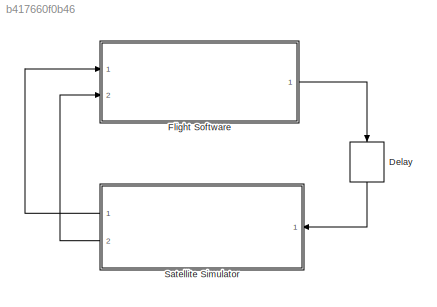
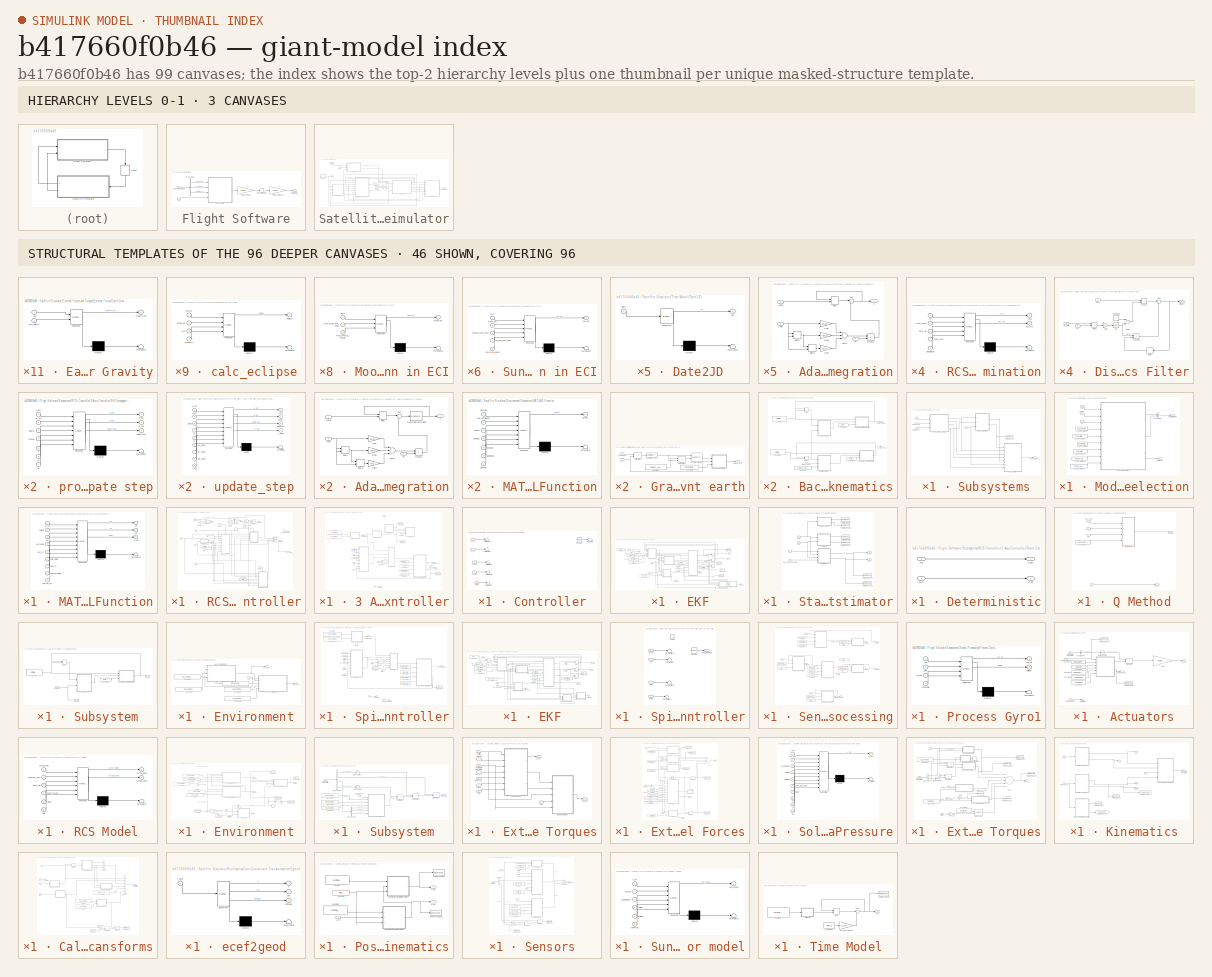
[diagram: thumbnail index - top-2 hierarchy levels (3 canvases) + 46 structural-template representatives of the remaining 96 canvases]
MODEL slx_b417660f0b46
KIND model
CONFIG AbsTol = auto
CONFIG EnableMultiTasking = off
CONFIG FixedStep = delta_t
CONFIG MaxStep = auto
CONFIG MinStep = auto
CONFIG RelTol = 1e-3
CONFIG SampleTimeConstraint = Unconstrained
CONFIG Solver = FixedStepAuto
CONFIG SolverName = FixedStepAuto
CONFIG StartTime = 0.0
CONFIG StopTime = end_time
BLOCK [Delay] Delay
  DelayLength = 1
  InitialCondition = 0
  InputPortMap = u0
  Ports = [1, 1]
BLOCK [SubSystem] Flight Software
  Ports = [2, 1]
  RequestExecContextInheritance = off
BLOCK [Outport] Flight Software/Actuator Commands
  IconDisplay = Port number
BLOCK [BusSelector] Flight Software/Bus Selector
  OutputAsBus = off
  OutputSignals = gyro meas,sun meas,star meas
  Ports = [1, 3]
BLOCK [Inport] Flight Software/JD
  IconDisplay = Port number
  Port = 2
BLOCK [Rounding] Flight Software/Resolution Error
BLOCK [Inport] Flight Software/Sensor Readings
  IconDisplay = Port number
BLOCK [SubSystem] Flight Software/Subsystems
  Ports = [4, 1]
  RequestExecContextInheritance = off
BLOCK [Inport] Flight Software/Subsystems/Gyro
  IconDisplay = Port number
BLOCK [Inport] Flight Software/Subsystems/JD
  IconDisplay = Port number
  Port = 4
BLOCK [SubSystem] Flight Software/Subsystems/Mode Selection
  Ports = [3, 2]
  RequestExecContextInheritance = off
BLOCK [Constant] Flight Software/Subsystems/Mode Selection/3_axis_gains
  Value = SC.ax3.gains
BLOCK [Constant] Flight Software/Subsystems/Mode Selection/3_axis_gains1
  Value = SC.spin.gains
BLOCK [Constant] Flight Software/Subsystems/Mode Selection/3_axis_gains2
  Value = SC.ax3.time_constant
BLOCK [Constant] Flight Software/Subsystems/Mode Selection/3_axis_gains3
  Value = SC.spin.time_constant
BLOCK [Constant] Flight Software/Subsystems/Mode Selection/3_axis_gains4
  Value = SC.spin_up.time_constant
BLOCK [Constant] Flight Software/Subsystems/Mode Selection/3_axis_gains5
  Value = SC.spin_up.gains
BLOCK [BusCreator] Flight Software/Subsystems/Mode Selection/Bus Creator
  DisplayOption = bar
  InheritFromInputs = on
  Inputs = 2
  Ports = [2, 1]
BLOCK [Outport] Flight Software/Subsystems/Mode Selection/Controller Gains
  IconDisplay = Port number
BLOCK [Inport] Flight Software/Subsystems/Mode Selection/Eclipse
  IconDisplay = Port number
  Port = 2
BLOCK [Inport] Flight Software/Subsystems/Mode Selection/Gyro
  IconDisplay = Port number
BLOCK [SubSystem] Flight Software/Subsystems/Mode Selection/MATLAB Function
  ErrorFcn = Stateflow.Translate.translate
  PermitHierarchicalResolution = ExplicitOnly
  Ports = [9, 3]
  RequestExecContextInheritance = off
  SFBlockType = MATLAB Function
  TreatAsAtomicUnit = on
BLOCK [Demux] Flight Software/Subsystems/Mode Selection/MATLAB Function/ Demux 
  Outputs = 1
  Ports = [1, 1]
BLOCK [S-Function] Flight Software/Subsystems/Mode Selection/MATLAB Function/ SFunction 
  EnableBusSupport = off
  FunctionName = sf_sfun
  PortCounts = [9 4]
  Ports = [9, 4]
  SFcnIsStateOwnerBlock = off
  SFunctionDeploymentMode = off
  Tag = Stateflow S-Function ADCS_r2017b 2
BLOCK [Terminator] Flight Software/Subsystems/Mode Selection/MATLAB Function/ Terminator 
BLOCK [Inport] Flight Software/Subsystems/Mode Selection/MATLAB Function/JD
  IconDisplay = Port number
  Port = 3
BLOCK [Outport] Flight Software/Subsystems/Mode Selection/MATLAB Function/Kd
  IconDisplay = Port number
  Port = 2
BLOCK [Outport] Flight Software/Subsystems/Mode Selection/MATLAB Function/Kp
  IconDisplay = Port number
BLOCK [Inport] Flight Software/Subsystems/Mode Selection/MATLAB Function/ax3_TC
  IconDisplay = Port number
  Port = 5
BLOCK [Inport] Flight Software/Subsystems/Mode Selection/MATLAB Function/ax3_gains
  IconDisplay = Port number
  Port = 4
BLOCK [Inport] Flight Software/Subsystems/Mode Selection/MATLAB Function/eclipse
  IconDisplay = Port number
  Port = 2
BLOCK [Inport] Flight Software/Subsystems/Mode Selection/MATLAB Function/gyro
  IconDisplay = Port number
BLOCK [Outport] Flight Software/Subsystems/Mode Selection/MATLAB Function/mode
  IconDisplay = Port number
  Port = 3
BLOCK [Inport] Flight Software/Subsystems/Mode Selection/MATLAB Function/spin_TC
  IconDisplay = Port number
  Port = 7
BLOCK [Inport] Flight Software/Subsystems/Mode Selection/MATLAB Function/spin_gains
  IconDisplay = Port number
  Port = 6
BLOCK [Inport] Flight Software/Subsystems/Mode Selection/MATLAB Function/spin_up_TC
  IconDisplay = Port number
  Port = 9
BLOCK [Inport] Flight Software/Subsystems/Mode Selection/MATLAB Function/spin_up_gains
  IconDisplay = Port number
  Port = 8
BLOCK [Outport] Flight Software/Subsystems/Mode Selection/S//C Mode
  IconDisplay = Port number
  Port = 2
BLOCK [Inport] Flight Software/Subsystems/Mode Selection/Time
  IconDisplay = Port number
  Port = 3
BLOCK [Outport] Flight Software/Subsystems/RCS Command
  IconDisplay = Port number
BLOCK [SubSystem] Flight Software/Subsystems/RCS Controller
  Ports = [7, 1]
  RequestExecContextInheritance = off
BLOCK [SubSystem] Flight Software/Subsystems/RCS Controller/3 Axis Controller
  Ports = [8, 1, 1]
  RequestExecContextInheritance = off
  TreatAsAtomicUnit = on
BLOCK [BusSelector] Flight Software/Subsystems/RCS Controller/3 Axis Controller/Bus Selector
  OutputAsBus = off
  OutputSignals = Kp,Kd
  Ports = [1, 2]
BLOCK [SubSystem] Flight Software/Subsystems/RCS Controller/3 Axis Controller/Calc_R_eci2mci
  ErrorFcn = Stateflow.Translate.translate
  PermitHierarchicalResolution = ExplicitOnly
  Ports = [2, 1]
  RequestExecContextInheritance = off
  SFBlockType = MATLAB Function
  TreatAsAtomicUnit = on
BLOCK [Demux] Flight Software/Subsystems/RCS Controller/3 Axis Controller/Calc_R_eci2mci/ Demux 
  Outputs = 1
  Ports = [1, 1]
BLOCK [S-Function] Flight Software/Subsystems/RCS Controller/3 Axis Controller/Calc_R_eci2mci/ SFunction 
  EnableBusSupport = off
  FunctionName = sf_sfun
  PortCounts = [2 2]
  Ports = [2, 2]
  SFcnIsStateOwnerBlock = off
  SFunctionDeploymentMode = off
  Tag = Stateflow S-Function ADCS_r2017b 17
BLOCK [Terminator] Flight Software/Subsystems/RCS Controller/3 Axis Controller/Calc_R_eci2mci/ Terminator 
BLOCK [Outport] Flight Software/Subsystems/RCS Controller/3 Axis Controller/Calc_R_eci2mci/R_eci2mci
  IconDisplay = Port number
BLOCK [Inport] Flight Software/Subsystems/RCS Controller/3 Axis Controller/Calc_R_eci2mci/obliq_e
  IconDisplay = Port number
BLOCK [Inport] Flight Software/Subsystems/RCS Controller/3 Axis Controller/Calc_R_eci2mci/obliq_m
  IconDisplay = Port number
  Port = 2
BLOCK [Constant] Flight Software/Subsystems/RCS Controller/3 Axis Controller/Constant
  Commented = on
  Value = [0;0;0]
BLOCK [Constant] Flight Software/Subsystems/RCS Controller/3 Axis Controller/Constant1
  Value = SS.constants.Obliquity_Earth
BLOCK [Constant] Flight Software/Subsystems/RCS Controller/3 Axis Controller/Constant10
  Value = SC.RCS.max_thrust
BLOCK [Constant] Flight Software/Subsystems/RCS Controller/3 Axis Controller/Constant2
  Value = SS.constants.Obliquity_Moon
BLOCK [Constant] Flight Software/Subsystems/RCS Controller/3 Axis Controller/Constant3
  Value = [0;0;0;0;0;0;0;0;0;0;0;0]
BLOCK [Constant] Flight Software/Subsystems/RCS Controller/3 Axis Controller/Constant7
  Value = SC.RCS.deadband
BLOCK [Constant] Flight Software/Subsystems/RCS Controller/3 Axis Controller/Constant8
  Value = SC.RCS.dir
BLOCK [Constant] Flight Software/Subsystems/RCS Controller/3 Axis Controller/Constant9
  Value = SC.RCS.moment_arms
BLOCK [SubSystem] Flight Software/Subsystems/RCS Controller/3 Axis Controller/Controller
  Commented = on
  Ports = [5, 1]
  RequestExecContextInheritance = off
BLOCK [Constant] Flight Software/Subsystems/RCS Controller/3 Axis Controller/Controller/Constant
  Value = [0;0;0;0;0;0;0;0;0;0;0;0]
BLOCK [Outport] Flight Software/Subsystems/RCS Controller/3 Axis Controller/Controller/RCS Cmd
  IconDisplay = Port number
BLOCK [Terminator] Flight Software/Subsystems/RCS Controller/3 Axis Controller/Controller/Terminator
BLOCK [Terminator] Flight Software/Subsystems/RCS Controller/3 Axis Controller/Controller/Terminator1
BLOCK [Terminator] Flight Software/Subsystems/RCS Controller/3 Axis Controller/Controller/Terminator2
BLOCK [Terminator] Flight Software/Subsystems/RCS Controller/3 Axis Controller/Controller/Terminator3
BLOCK [Terminator] Flight Software/Subsystems/RCS Controller/3 Axis Controller/Controller/Terminator4
BLOCK [Inport] Flight Software/Subsystems/RCS Controller/3 Axis Controller/Controller/gains
  IconDisplay = Port number
  Port = 5
BLOCK [Inport] Flight Software/Subsystems/RCS Controller/3 Axis Controller/Controller/q_est
  IconDisplay = Port number
BLOCK [Inport] Flight Software/Subsystems/RCS Controller/3 Axis Controller/Controller/q_target
  IconDisplay = Port number
  Port = 3
BLOCK [Inport] Flight Software/Subsystems/RCS Controller/3 Axis Controller/Controller/w_est
  IconDisplay = Port number
  Port = 2
BLOCK [Inport] Flight Software/Subsystems/RCS Controller/3 Axis Controller/Controller/w_target
  IconDisplay = Port number
  Port = 4
BLOCK [SubSystem] Flight Software/Subsystems/RCS Controller/3 Axis Controller/Controller1
  ErrorFcn = Stateflow.Translate.translate
  PermitHierarchicalResolution = ExplicitOnly
  Ports = [5, 1]
  RequestExecContextInheritance = off
  SFBlockType = MATLAB Function
  TreatAsAtomicUnit = on
BLOCK [Demux] Flight Software/Subsystems/RCS Controller/3 Axis Controller/Controller1/ Demux 
  Outputs = 1
  Ports = [1, 1]
BLOCK [S-Function] Flight Software/Subsystems/RCS Controller/3 Axis Controller/Controller1/ SFunction 
  EnableBusSupport = off
  FunctionName = sf_sfun
  PortCounts = [5 2]
  Ports = [5, 2]
  SFcnIsStateOwnerBlock = off
  SFunctionDeploymentMode = off
  Tag = Stateflow S-Function ADCS_r2017b 28
BLOCK [Terminator] Flight Software/Subsystems/RCS Controller/3 Axis Controller/Controller1/ Terminator 
BLOCK [Inport] Flight Software/Subsystems/RCS Controller/3 Axis Controller/Controller1/Kd
  IconDisplay = Port number
  Port = 5
BLOCK [Inport] Flight Software/Subsystems/RCS Controller/3 Axis Controller/Controller1/Kp
  IconDisplay = Port number
  Port = 4
BLOCK [Inport] Flight Software/Subsystems/RCS Controller/3 Axis Controller/Controller1/R_mci2eci
  IconDisplay = Port number
BLOCK [Inport] Flight Software/Subsystems/RCS Controller/3 Axis Controller/Controller1/q_est
  IconDisplay = Port number
  Port = 2
BLOCK [Outport] Flight Software/Subsystems/RCS Controller/3 Axis Controller/Controller1/tor
  IconDisplay = Port number
BLOCK [Inport] Flight Software/Subsystems/RCS Controller/3 Axis Controller/Controller1/w_est
  IconDisplay = Port number
  Port = 3
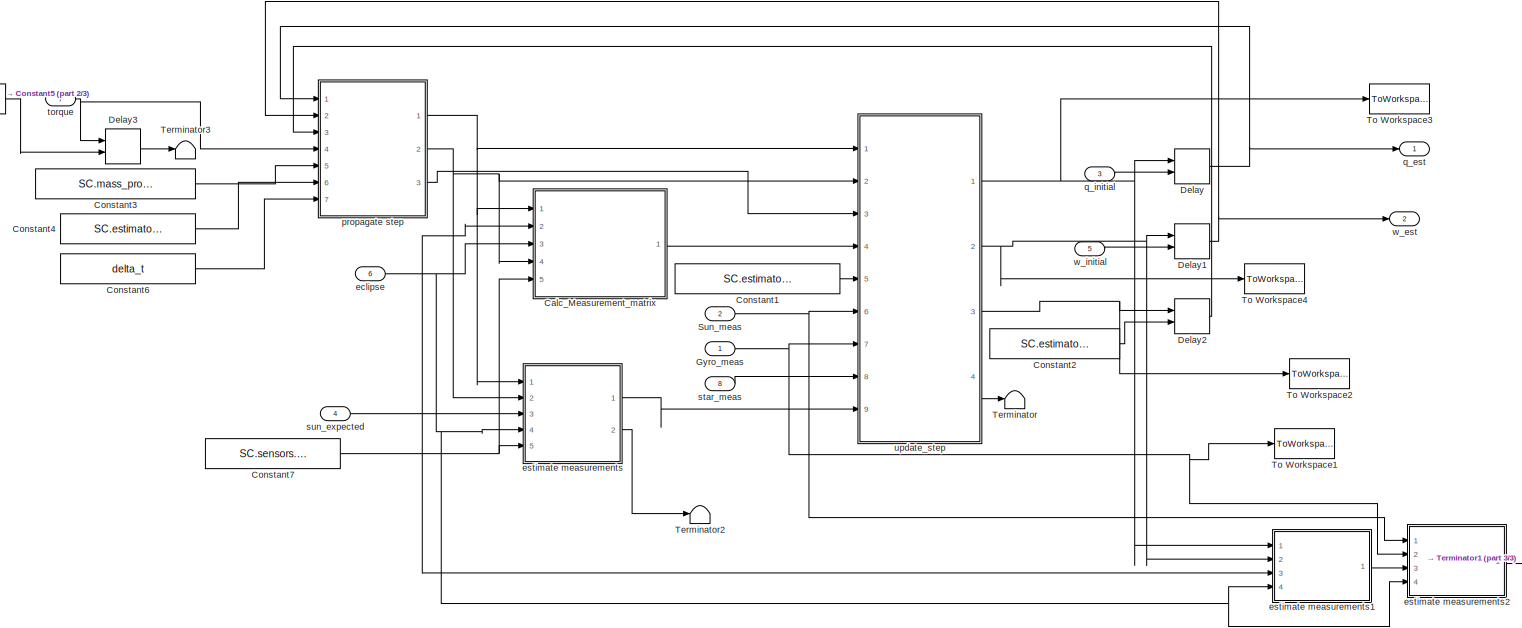
[diagram: Flight Software/Subsystems/RCS Controller/3 Axis Controller/EKF - part 1/3, most of the canvas]
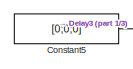
[diagram: Flight Software/Subsystems/RCS Controller/3 Axis Controller/EKF - part 2/3, top left region]
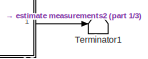
[diagram: Flight Software/Subsystems/RCS Controller/3 Axis Controller/EKF - part 3/3, bottom right region]
BLOCK [SubSystem] Flight Software/Subsystems/RCS Controller/3 Axis Controller/EKF
  Ports = [8, 2]
  RequestExecContextInheritance = off
BLOCK [SubSystem] Flight Software/Subsystems/RCS Controller/3 Axis Controller/EKF/Calc_Measurement_matrix
  ErrorFcn = Stateflow.Translate.translate
  PermitHierarchicalResolution = ExplicitOnly
  Ports = [5, 1]
  RequestExecContextInheritance = off
  SFBlockType = MATLAB Function
  TreatAsAtomicUnit = on
BLOCK [Demux] Flight Software/Subsystems/RCS Controller/3 Axis Controller/EKF/Calc_Measurement_matrix/ Demux 
  Outputs = 1
  Ports = [1, 1]
BLOCK [S-Function] Flight Software/Subsystems/RCS Controller/3 Axis Controller/EKF/Calc_Measurement_matrix/ SFunction 
  EnableBusSupport = off
  FunctionName = sf_sfun
  PortCounts = [5 2]
  Ports = [5, 2]
  SFcnIsStateOwnerBlock = off
  SFunctionDeploymentMode = off
  Tag = Stateflow S-Function ADCS_r2017b 35
BLOCK [Terminator] Flight Software/Subsystems/RCS Controller/3 Axis Controller/EKF/Calc_Measurement_matrix/ Terminator 
BLOCK [Outport] Flight Software/Subsystems/RCS Controller/3 Axis Controller/EKF/Calc_Measurement_matrix/H
  IconDisplay = Port number
BLOCK [Inport] Flight Software/Subsystems/RCS Controller/3 Axis Controller/EKF/Calc_Measurement_matrix/eclipse
  IconDisplay = Port number
  Port = 3
BLOCK [Inport] Flight Software/Subsystems/RCS Controller/3 Axis Controller/EKF/Calc_Measurement_matrix/q_est
  IconDisplay = Port number
BLOCK [Inport] Flight Software/Subsystems/RCS Controller/3 Axis Controller/EKF/Calc_Measurement_matrix/star_limit
  IconDisplay = Port number
  Port = 5
BLOCK [Inport] Flight Software/Subsystems/RCS Controller/3 Axis Controller/EKF/Calc_Measurement_matrix/sun_expected
  IconDisplay = Port number
  Port = 2
BLOCK [Inport] Flight Software/Subsystems/RCS Controller/3 Axis Controller/EKF/Calc_Measurement_matrix/w_est
  IconDisplay = Port number
  Port = 4
BLOCK [Constant] Flight Software/Subsystems/RCS Controller/3 Axis Controller/EKF/Constant1
  Value = SC.estimator.sensor_noise_w_star
BLOCK [Constant] Flight Software/Subsystems/RCS Controller/3 Axis Controller/EKF/Constant2
  Value = SC.estimator.initial_sigma
BLOCK [Constant] Flight Software/Subsystems/RCS Controller/3 Axis Controller/EKF/Constant3
  Value = SC.mass_properties.inertia
BLOCK [Constant] Flight Software/Subsystems/RCS Controller/3 Axis Controller/EKF/Constant4
  Value = SC.estimator.process_noise
BLOCK [Constant] Flight Software/Subsystems/RCS Controller/3 Axis Controller/EKF/Constant5
  Value = [0;0;0]
BLOCK [Constant] Flight Software/Subsystems/RCS Controller/3 Axis Controller/EKF/Constant6
  Value = delta_t
BLOCK [Constant] Flight Software/Subsystems/RCS Controller/3 Axis Controller/EKF/Constant7
  Value = SC.sensors.star.w_limit
BLOCK [Delay] Flight Software/Subsystems/RCS Controller/3 Axis Controller/EKF/Delay
  DelayLength = 1
  InitialCondition = 0
  InitialConditionSource = Input port
  InputPortMap = u0,p4
  Ports = [2, 1]
BLOCK [Delay] Flight Software/Subsystems/RCS Controller/3 Axis Controller/EKF/Delay1
  DelayLength = 1
  InitialCondition = 0
  InitialConditionSource = Input port
  InputPortMap = u0,p4
  Ports = [2, 1]
BLOCK [Delay] Flight Software/Subsystems/RCS Controller/3 Axis Controller/EKF/Delay2
  DelayLength = 1
  InitialCondition = 0
  InitialConditionSource = Input port
  InputPortMap = u0,p4
  Ports = [2, 1]
BLOCK [Delay] Flight Software/Subsystems/RCS Controller/3 Axis Controller/EKF/Delay3
  DelayLength = 1
  InitialCondition = 0
  InitialConditionSource = Input port
  InputPortMap = u0,p4
  Ports = [2, 1]
BLOCK [Inport] Flight Software/Subsystems/RCS Controller/3 Axis Controller/EKF/Gyro_meas
  IconDisplay = Port number
BLOCK [Inport] Flight Software/Subsystems/RCS Controller/3 Axis Controller/EKF/Sun_meas
  IconDisplay = Port number
  Port = 2
BLOCK [Terminator] Flight Software/Subsystems/RCS Controller/3 Axis Controller/EKF/Terminator
BLOCK [Terminator] Flight Software/Subsystems/RCS Controller/3 Axis Controller/EKF/Terminator1
BLOCK [Terminator] Flight Software/Subsystems/RCS Controller/3 Axis Controller/EKF/Terminator2
BLOCK [Terminator] Flight Software/Subsystems/RCS Controller/3 Axis Controller/EKF/Terminator3
BLOCK [ToWorkspace] Flight Software/Subsystems/RCS Controller/3 Axis Controller/EKF/To Workspace1
  FixptAsFi = on
  MaxDataPoints = inf
  Ports = [1]
  SampleTime = -1
  Save2DSignal = 3-D array (concatenate along third dimension)
  VariableName = gyro_meas
BLOCK [ToWorkspace] Flight Software/Subsystems/RCS Controller/3 Axis Controller/EKF/To Workspace2
  FixptAsFi = on
  MaxDataPoints = inf
  Ports = [1]
  SampleTime = -1
  Save2DSignal = 3-D array (concatenate along third dimension)
  VariableName = sigma_EKF
BLOCK [ToWorkspace] Flight Software/Subsystems/RCS Controller/3 Axis Controller/EKF/To Workspace3
  FixptAsFi = on
  MaxDataPoints = inf
  Ports = [1]
  SampleTime = -1
  Save2DSignal = 3-D array (concatenate along third dimension)
  VariableName = q_EKF
BLOCK [ToWorkspace] Flight Software/Subsystems/RCS Controller/3 Axis Controller/EKF/To Workspace4
  FixptAsFi = on
  MaxDataPoints = inf
  Ports = [1]
  SampleTime = -1
  Save2DSignal = 3-D array (concatenate along third dimension)
  VariableName = w_EKF
BLOCK [Inport] Flight Software/Subsystems/RCS Controller/3 Axis Controller/EKF/eclipse
  IconDisplay = Port number
  Port = 6
BLOCK [SubSystem] Flight Software/Subsystems/RCS Controller/3 Axis Controller/EKF/estimate measurements
  ErrorFcn = Stateflow.Translate.translate
  PermitHierarchicalResolution = ExplicitOnly
  Ports = [5, 2]
  RequestExecContextInheritance = off
  SFBlockType = MATLAB Function
  TreatAsAtomicUnit = on
BLOCK [Demux] Flight Software/Subsystems/RCS Controller/3 Axis Controller/EKF/estimate measurements/ Demux 
  Outputs = 1
  Ports = [1, 1]
BLOCK [S-Function] Flight Software/Subsystems/RCS Controller/3 Axis Controller/EKF/estimate measurements/ SFunction 
  EnableBusSupport = off
  FunctionName = sf_sfun
  PortCounts = [5 3]
  Ports = [5, 3]
  SFcnIsStateOwnerBlock = off
  SFunctionDeploymentMode = off
  Tag = Stateflow S-Function ADCS_r2017b 36
BLOCK [Terminator] Flight Software/Subsystems/RCS Controller/3 Axis Controller/EKF/estimate measurements/ Terminator 
BLOCK [Inport] Flight Software/Subsystems/RCS Controller/3 Axis Controller/EKF/estimate measurements/eclipse
  IconDisplay = Port number
  Port = 4
BLOCK [Inport] Flight Software/Subsystems/RCS Controller/3 Axis Controller/EKF/estimate measurements/q_est
  IconDisplay = Port number
BLOCK [Inport] Flight Software/Subsystems/RCS Controller/3 Axis Controller/EKF/estimate measurements/star_limit
  IconDisplay = Port number
  Port = 5
BLOCK [Inport] Flight Software/Subsystems/RCS Controller/3 Axis Controller/EKF/estimate measurements/sun_eci
  IconDisplay = Port number
  Port = 3
BLOCK [Outport] Flight Software/Subsystems/RCS Controller/3 Axis Controller/EKF/estimate measurements/sun_pred
  IconDisplay = Port number
  Port = 2
BLOCK [Inport] Flight Software/Subsystems/RCS Controller/3 Axis Controller/EKF/estimate measurements/w_est
  IconDisplay = Port number
  Port = 2
BLOCK [Outport] Flight Software/Subsystems/RCS Controller/3 Axis Controller/EKF/estimate measurements/y_hat
  IconDisplay = Port number
BLOCK [SubSystem] Flight Software/Subsystems/RCS Controller/3 Axis Controller/EKF/estimate measurements1
  ErrorFcn = Stateflow.Translate.translate
  PermitHierarchicalResolution = ExplicitOnly
  Ports = [4, 1]
  RequestExecContextInheritance = off
  SFBlockType = MATLAB Function
  TreatAsAtomicUnit = on
BLOCK [Demux] Flight Software/Subsystems/RCS Controller/3 Axis Controller/EKF/estimate measurements1/ Demux 
  Outputs = 1
  Ports = [1, 1]
BLOCK [S-Function] Flight Software/Subsystems/RCS Controller/3 Axis Controller/EKF/estimate measurements1/ SFunction 
  EnableBusSupport = off
  FunctionName = sf_sfun
  PortCounts = [4 2]
  Ports = [4, 2]
  SFcnIsStateOwnerBlock = off
  SFunctionDeploymentMode = off
  Tag = Stateflow S-Function ADCS_r2017b 37
BLOCK [Terminator] Flight Software/Subsystems/RCS Controller/3 Axis Controller/EKF/estimate measurements1/ Terminator 
BLOCK [Inport] Flight Software/Subsystems/RCS Controller/3 Axis Controller/EKF/estimate measurements1/eclipse
  IconDisplay = Port number
  Port = 4
BLOCK [Inport] Flight Software/Subsystems/RCS Controller/3 Axis Controller/EKF/estimate measurements1/q_est
  IconDisplay = Port number
BLOCK [Inport] Flight Software/Subsystems/RCS Controller/3 Axis Controller/EKF/estimate measurements1/sun_eci
  IconDisplay = Port number
  Port = 3
BLOCK [Inport] Flight Software/Subsystems/RCS Controller/3 Axis Controller/EKF/estimate measurements1/w_est
  IconDisplay = Port number
  Port = 2
BLOCK [Outport] Flight Software/Subsystems/RCS Controller/3 Axis Controller/EKF/estimate measurements1/y_hat
  IconDisplay = Port number
BLOCK [SubSystem] Flight Software/Subsystems/RCS Controller/3 Axis Controller/EKF/estimate measurements2
  ErrorFcn = Stateflow.Translate.translate
  PermitHierarchicalResolution = ExplicitOnly
  Ports = [4, 1]
  RequestExecContextInheritance = off
  SFBlockType = MATLAB Function
  TreatAsAtomicUnit = on
BLOCK [Demux] Flight Software/Subsystems/RCS Controller/3 Axis Controller/EKF/estimate measurements2/ Demux 
  Outputs = 1
  Ports = [1, 1]
BLOCK [S-Function] Flight Software/Subsystems/RCS Controller/3 Axis Controller/EKF/estimate measurements2/ SFunction 
  EnableBusSupport = off
  FunctionName = sf_sfun
  PortCounts = [4 2]
  Ports = [4, 2]
  SFcnIsStateOwnerBlock = off
  SFunctionDeploymentMode = off
  Tag = Stateflow S-Function ADCS_r2017b 39
BLOCK [Terminator] Flight Software/Subsystems/RCS Controller/3 Axis Controller/EKF/estimate measurements2/ Terminator 
BLOCK [Inport] Flight Software/Subsystems/RCS Controller/3 Axis Controller/EKF/estimate measurements2/eclipse
  IconDisplay = Port number
  Port = 4
BLOCK [Inport] Flight Software/Subsystems/RCS Controller/3 Axis Controller/EKF/estimate measurements2/gyr_meas
  IconDisplay = Port number
  Port = 2
BLOCK [Inport] Flight Software/Subsystems/RCS Controller/3 Axis Controller/EKF/estimate measurements2/sun_meas
  IconDisplay = Port number
BLOCK [Inport] Flight Software/Subsystems/RCS Controller/3 Axis Controller/EKF/estimate measurements2/y_hat
  IconDisplay = Port number
  Port = 3
BLOCK [Outport] Flight Software/Subsystems/RCS Controller/3 Axis Controller/EKF/estimate measurements2/y_postfit
  IconDisplay = Port number
BLOCK [SubSystem] Flight Software/Subsystems/RCS Controller/3 Axis Controller/EKF/propagate step
  ErrorFcn = Stateflow.Translate.translate
  PermitHierarchicalResolution = ExplicitOnly
  Ports = [7, 3]
  RequestExecContextInheritance = off
  SFBlockType = MATLAB Function
  TreatAsAtomicUnit = on
BLOCK [Demux] Flight Software/Subsystems/RCS Controller/3 Axis Controller/EKF/propagate step/ Demux 
  Outputs = 1
  Ports = [1, 1]
BLOCK [S-Function] Flight Software/Subsystems/RCS Controller/3 Axis Controller/EKF/propagate step/ SFunction 
  EnableBusSupport = off
  FunctionName = sf_sfun
  PortCounts = [7 4]
  Ports = [7, 4]
  SFcnIsStateOwnerBlock = off
  SFunctionDeploymentMode = off
  Tag = Stateflow S-Function ADCS_r2017b 52
BLOCK [Terminator] Flight Software/Subsystems/RCS Controller/3 Axis Controller/EKF/propagate step/ Terminator 
BLOCK [Inport] Flight Software/Subsystems/RCS Controller/3 Axis Controller/EKF/propagate step/I
  IconDisplay = Port number
  Port = 5
BLOCK [Inport] Flight Software/Subsystems/RCS Controller/3 Axis Controller/EKF/propagate step/Q
  IconDisplay = Port number
  Port = 6
BLOCK [Inport] Flight Software/Subsystems/RCS Controller/3 Axis Controller/EKF/propagate step/dt
  IconDisplay = Port number
  Port = 7
BLOCK [Inport] Flight Software/Subsystems/RCS Controller/3 Axis Controller/EKF/propagate step/q_est
  IconDisplay = Port number
BLOCK [Outport] Flight Software/Subsystems/RCS Controller/3 Axis Controller/EKF/propagate step/q_out
  IconDisplay = Port number
BLOCK [Inport] Flight Software/Subsystems/RCS Controller/3 Axis Controller/EKF/propagate step/sigma
  IconDisplay = Port number
  Port = 3
BLOCK [Outport] Flight Software/Subsystems/RCS Controller/3 Axis Controller/EKF/propagate step/sigma_out
  IconDisplay = Port number
  Port = 3
BLOCK [Inport] Flight Software/Subsystems/RCS Controller/3 Axis Controller/EKF/propagate step/torque
  IconDisplay = Port number
  Port = 4
BLOCK [Inport] Flight Software/Subsystems/RCS Controller/3 Axis Controller/EKF/propagate step/w_est
  IconDisplay = Port number
  Port = 2
BLOCK [Outport] Flight Software/Subsystems/RCS Controller/3 Axis Controller/EKF/propagate step/w_out
  IconDisplay = Port number
  Port = 2
BLOCK [Outport] Flight Software/Subsystems/RCS Controller/3 Axis Controller/EKF/q_est
  IconDisplay = Port number
BLOCK [Inport] Flight Software/Subsystems/RCS Controller/3 Axis Controller/EKF/q_initial
  IconDisplay = Port number
  Port = 3
BLOCK [Inport] Flight Software/Subsystems/RCS Controller/3 Axis Controller/EKF/star_meas
  IconDisplay = Port number
  Port = 8
BLOCK [Inport] Flight Software/Subsystems/RCS Controller/3 Axis Controller/EKF/sun_expected
  IconDisplay = Port number
  Port = 4
BLOCK [Inport] Flight Software/Subsystems/RCS Controller/3 Axis Controller/EKF/torque
  IconDisplay = Port number
  Port = 7
BLOCK [SubSystem] Flight Software/Subsystems/RCS Controller/3 Axis Controller/EKF/update_step
  ErrorFcn = Stateflow.Translate.translate
  PermitHierarchicalResolution = ExplicitOnly
  Ports = [9, 4]
  RequestExecContextInheritance = off
  SFBlockType = MATLAB Function
  TreatAsAtomicUnit = on
BLOCK [Demux] Flight Software/Subsystems/RCS Controller/3 Axis Controller/EKF/update_step/ Demux 
  Outputs = 1
  Ports = [1, 1]
BLOCK [S-Function] Flight Software/Subsystems/RCS Controller/3 Axis Controller/EKF/update_step/ SFunction 
  EnableBusSupport = off
  FunctionName = sf_sfun
  PortCounts = [9 5]
  Ports = [9, 5]
  SFcnIsStateOwnerBlock = off
  SFunctionDeploymentMode = off
  Tag = Stateflow S-Function ADCS_r2017b 53
BLOCK [Terminator] Flight Software/Subsystems/RCS Controller/3 Axis Controller/EKF/update_step/ Terminator 
BLOCK [Inport] Flight Software/Subsystems/RCS Controller/3 Axis Controller/EKF/update_step/H
  IconDisplay = Port number
  Port = 4
BLOCK [Inport] Flight Software/Subsystems/RCS Controller/3 Axis Controller/EKF/update_step/R
  IconDisplay = Port number
  Port = 5
BLOCK [Inport] Flight Software/Subsystems/RCS Controller/3 Axis Controller/EKF/update_step/gyr_meas
  IconDisplay = Port number
  Port = 7
BLOCK [Inport] Flight Software/Subsystems/RCS Controller/3 Axis Controller/EKF/update_step/q_est
  IconDisplay = Port number
BLOCK [Outport] Flight Software/Subsystems/RCS Controller/3 Axis Controller/EKF/update_step/q_out
  IconDisplay = Port number
BLOCK [Inport] Flight Software/Subsystems/RCS Controller/3 Axis Controller/EKF/update_step/sigma
  IconDisplay = Port number
  Port = 3
BLOCK [Outport] Flight Software/Subsystems/RCS Controller/3 Axis Controller/EKF/update_step/sigma_out
  IconDisplay = Port number
  Port = 3
BLOCK [Inport] Flight Software/Subsystems/RCS Controller/3 Axis Controller/EKF/update_step/star_meas
  IconDisplay = Port number
  Port = 8
BLOCK [Inport] Flight Software/Subsystems/RCS Controller/3 Axis Controller/EKF/update_step/sun_meas
  IconDisplay = Port number
  Port = 6
BLOCK [Inport] Flight Software/Subsystems/RCS Controller/3 Axis Controller/EKF/update_step/w_est
  IconDisplay = Port number
  Port = 2
BLOCK [Outport] Flight Software/Subsystems/RCS Controller/3 Axis Controller/EKF/update_step/w_out
  IconDisplay = Port number
  Port = 2
BLOCK [Inport] Flight Software/Subsystems/RCS Controller/3 Axis Controller/EKF/update_step/y_hat
  IconDisplay = Port number
  Port = 9
BLOCK [Outport] Flight Software/Subsystems/RCS Controller/3 Axis Controller/EKF/update_step/y_prefit
  IconDisplay = Port number
  Port = 4
BLOCK [Outport] Flight Software/Subsystems/RCS Controller/3 Axis Controller/EKF/w_est
  IconDisplay = Port number
  Port = 2
BLOCK [Inport] Flight Software/Subsystems/RCS Controller/3 Axis Controller/EKF/w_initial
  IconDisplay = Port number
  Port = 5
BLOCK [EnablePort] Flight Software/Subsystems/RCS Controller/3 Axis Controller/Enable
  Ports = []
BLOCK [Inport] Flight Software/Subsystems/RCS Controller/3 Axis Controller/Gains
  IconDisplay = Port number
  Port = 5
BLOCK [Inport] Flight Software/Subsystems/RCS Controller/3 Axis Controller/Gyro_meas
  IconDisplay = Port number
  Port = 2
BLOCK [Inport] Flight Software/Subsystems/RCS Controller/3 Axis Controller/JD
  IconDisplay = Port number
  Port = 4
BLOCK [Math] Flight Software/Subsystems/RCS Controller/3 Axis Controller/Math Function
  Operator = transpose
  Ports = [1, 1]
BLOCK [Outport] Flight Software/Subsystems/RCS Controller/3 Axis Controller/RCS Command
  IconDisplay = Port number
BLOCK [SubSystem] Flight Software/Subsystems/RCS Controller/3 Axis Controller/RCS Command Determination
  ErrorFcn = Stateflow.Translate.translate
  PermitHierarchicalResolution = ExplicitOnly
  Ports = [5, 2]
  RequestExecContextInheritance = off
  SFBlockType = MATLAB Function
  TreatAsAtomicUnit = on
BLOCK [Demux] Flight Software/Subsystems/RCS Controller/3 Axis Controller/RCS Command Determination/ Demux 
  Outputs = 1
  Ports = [1, 1]
BLOCK [S-Function] Flight Software/Subsystems/RCS Controller/3 Axis Controller/RCS Command Determination/ SFunction 
  EnableBusSupport = off
  FunctionName = sf_sfun
  PortCounts = [5 3]
  Ports = [5, 3]
  SFcnIsStateOwnerBlock = off
  SFunctionDeploymentMode = off
  Tag = Stateflow S-Function ADCS_r2017b 54
BLOCK [Terminator] Flight Software/Subsystems/RCS Controller/3 Axis Controller/RCS Command Determination/ Terminator 
BLOCK [Outport] Flight Software/Subsystems/RCS Controller/3 Axis Controller/RCS Command Determination/cmd
  IconDisplay = Port number
BLOCK [Inport] Flight Software/Subsystems/RCS Controller/3 Axis Controller/RCS Command Determination/deadband
  IconDisplay = Port number
  Port = 5
BLOCK [Outport] Flight Software/Subsystems/RCS Controller/3 Axis Controller/RCS Command Determination/est_tor
  IconDisplay = Port number
  Port = 2
BLOCK [Inport] Flight Software/Subsystems/RCS Controller/3 Axis Controller/RCS Command Determination/max_thrust
  IconDisplay = Port number
  Port = 2
BLOCK [Inport] Flight Software/Subsystems/RCS Controller/3 Axis Controller/RCS Command Determination/mom_arm
  IconDisplay = Port number
  Port = 4
BLOCK [Inport] Flight Software/Subsystems/RCS Controller/3 Axis Controller/RCS Command Determination/norm_dir
  IconDisplay = Port number
  Port = 3
BLOCK [Inport] Flight Software/Subsystems/RCS Controller/3 Axis Controller/RCS Command Determination/tor
  IconDisplay = Port number
BLOCK [Inport] Flight Software/Subsystems/RCS Controller/3 Axis Controller/Star
  IconDisplay = Port number
BLOCK [SubSystem] Flight Software/Subsystems/RCS Controller/3 Axis Controller/State Estimator
  Commented = on
  Ports = [4, 2]
  RequestExecContextInheritance = off
BLOCK [SubSystem] Flight Software/Subsystems/RCS Controller/3 Axis Controller/State Estimator/Deterministic
  Ports = [2, 2]
  RequestExecContextInheritance = off
BLOCK [Inport] Flight Software/Subsystems/RCS Controller/3 Axis Controller/State Estimator/Deterministic/gyro
  IconDisplay = Port number
BLOCK [Outport] Flight Software/Subsystems/RCS Controller/3 Axis Controller/State Estimator/Deterministic/q_est
  IconDisplay = Port number
BLOCK [Inport] Flight Software/Subsystems/RCS Controller/3 Axis Controller/State Estimator/Deterministic/star
  IconDisplay = Port number
  Port = 2
BLOCK [Outport] Flight Software/Subsystems/RCS Controller/3 Axis Controller/State Estimator/Deterministic/w_est
  IconDisplay = Port number
  Port = 2
BLOCK [SubSystem] Flight Software/Subsystems/RCS Controller/3 Axis Controller/State Estimator/Q Method
  Ports = [4, 2]
  RequestExecContextInheritance = off
BLOCK [Constant] Flight Software/Subsystems/RCS Controller/3 Axis Controller/State Estimator/Q Method/Constant
  Value = SC.sensors.weights
BLOCK [Inport] Flight Software/Subsystems/RCS Controller/3 Axis Controller/State Estimator/Q Method/gyro
  IconDisplay = Port number
  Port = 2
BLOCK [Outport] Flight Software/Subsystems/RCS Controller/3 Axis Controller/State Estimator/Q Method/q_est
  IconDisplay = Port number
  PortDimensions = 4
BLOCK [SubSystem] Flight Software/Subsystems/RCS Controller/3 Axis Controller/State Estimator/Q Method/q_method
  ErrorFcn = Stateflow.Translate.translate
  PermitHierarchicalResolution = ExplicitOnly
  Ports = [4, 1]
  RequestExecContextInheritance = off
  SFBlockType = MATLAB Function
  TreatAsAtomicUnit = on
BLOCK [Demux] Flight Software/Subsystems/RCS Controller/3 Axis Controller/State Estimator/Q Method/q_method/ Demux 
  Outputs = 1
  Ports = [1, 1]
BLOCK [S-Function] Flight Software/Subsystems/RCS Controller/3 Axis Controller/State Estimator/Q Method/q_method/ SFunction 
  EnableBusSupport = off
  FunctionName = sf_sfun
  PortCounts = [4 2]
  Ports = [4, 2]
  SFcnIsStateOwnerBlock = off
  SFunctionDeploymentMode = off
  Tag = Stateflow S-Function ADCS_r2017b 22
BLOCK [Terminator] Flight Software/Subsystems/RCS Controller/3 Axis Controller/State Estimator/Q Method/q_method/ Terminator 
BLOCK [Outport] Flight Software/Subsystems/RCS Controller/3 Axis Controller/State Estimator/Q Method/q_method/q
  IconDisplay = Port number
BLOCK [Inport] Flight Software/Subsystems/RCS Controller/3 Axis Controller/State Estimator/Q Method/q_method/q_body
  IconDisplay = Port number
  Port = 3
BLOCK [Inport] Flight Software/Subsystems/RCS Controller/3 Axis Controller/State Estimator/Q Method/q_method/sun_expected
  IconDisplay = Port number
BLOCK [Inport] Flight Software/Subsystems/RCS Controller/3 Axis Controller/State Estimator/Q Method/q_method/sun_meas
  IconDisplay = Port number
  Port = 2
BLOCK [Inport] Flight Software/Subsystems/RCS Controller/3 Axis Controller/State Estimator/Q Method/q_method/weights
  IconDisplay = Port number
  Port = 4
BLOCK [Inport] Flight Software/Subsystems/RCS Controller/3 Axis Controller/State Estimator/Q Method/star
  IconDisplay = Port number
  Port = 3
BLOCK [Inport] Flight Software/Subsystems/RCS Controller/3 Axis Controller/State Estimator/Q Method/sun_dir
  IconDisplay = Port number
BLOCK [Inport] Flight Software/Subsystems/RCS Controller/3 Axis Controller/State Estimator/Q Method/sun_exp
  IconDisplay = Port number
  Port = 4
BLOCK [Outport] Flight Software/Subsystems/RCS Controller/3 Axis Controller/State Estimator/Q Method/w_est
  IconDisplay = Port number
  Port = 2
BLOCK [SubSystem] Flight Software/Subsystems/RCS Controller/3 Axis Controller/State Estimator/Subsystem
  Ports = [1, 2]
  RequestExecContextInheritance = off
BLOCK [SubSystem] Flight Software/Subsystems/RCS Controller/3 Axis Controller/State Estimator/Subsystem/Adams Bashforth Integration
  Ports = [3, 1]
  RequestExecContextInheritance = off
  TreatAsAtomicUnit = on
BLOCK [Delay] Flight Software/Subsystems/RCS Controller/3 Axis Controller/State Estimator/Subsystem/Adams Bashforth Integration/Delay
  DelayLength = 1
  InitialCondition = 0
  InitialConditionSource = Input port
  InputPortMap = u0,p4
  Ports = [2, 1]
BLOCK [Delay] Flight Software/Subsystems/RCS Controller/3 Axis Controller/State Estimator/Subsystem/Adams Bashforth Integration/Delay1
  DelayLength = 1
  InitialCondition = 0
  InitialConditionSource = Input port
  InputPortMap = u0,p4
  Ports = [2, 1]
BLOCK [Delay] Flight Software/Subsystems/RCS Controller/3 Axis Controller/State Estimator/Subsystem/Adams Bashforth Integration/Delay2
  DelayLength = 1
  InitialCondition = 0
  InitialConditionSource = Input port
  InputPortMap = u0,p4
  Ports = [2, 1]
BLOCK [Gain] Flight Software/Subsystems/RCS Controller/3 Axis Controller/State Estimator/Subsystem/Adams Bashforth Integration/Gain
  Gain = 23/12
  OutDataTypeStr = Inherit: Inherit via internal rule
  ParamDataTypeStr = Inherit: Inherit via internal rule
  SaturateOnIntegerOverflow = off
BLOCK [Gain] Flight Software/Subsystems/RCS Controller/3 Axis Controller/State Estimator/Subsystem/Adams Bashforth Integration/Gain1
  Gain = -16/12
  OutDataTypeStr = Inherit: Inherit via internal rule
  ParamDataTypeStr = Inherit: Inherit via internal rule
  SaturateOnIntegerOverflow = off
BLOCK [Gain] Flight Software/Subsystems/RCS Controller/3 Axis Controller/State Estimator/Subsystem/Adams Bashforth Integration/Gain2
  Gain = 5/12
  OutDataTypeStr = Inherit: Inherit via internal rule
  ParamDataTypeStr = Inherit: Inherit via internal rule
  SaturateOnIntegerOverflow = off
BLOCK [Product] Flight Software/Subsystems/RCS Controller/3 Axis Controller/State Estimator/Subsystem/Adams Bashforth Integration/Product
  InputSameDT = off
  OutDataTypeStr = Inherit: Inherit via internal rule
  Ports = [2, 1]
  RndMeth = Floor
  SaturateOnIntegerOverflow = off
BLOCK [Reference] Flight Software/Subsystems/RCS Controller/3 Axis Controller/State Estimator/Subsystem/Adams Bashforth Integration/Quaternion Normalize  REF=sharedutil/Quaternion
Normalize
  Ports = [1, 1]
  SourceBlock = sharedutil/Quaternion\nNormalize
  SourceProductBaseCode = AE
  SourceProductName = Aerospace Blockset
  SourceType = Quaternion Normalize
BLOCK [Sum] Flight Software/Subsystems/RCS Controller/3 Axis Controller/State Estimator/Subsystem/Adams Bashforth Integration/Sum
  IconShape = round
  InputSameDT = off
  Inputs = |++
  OutDataTypeStr = Inherit: Inherit via internal rule
  Ports = [2, 1]
  SaturateOnIntegerOverflow = off
BLOCK [Sum] Flight Software/Subsystems/RCS Controller/3 Axis Controller/State Estimator/Subsystem/Adams Bashforth Integration/Sum1
  InputSameDT = off
  Inputs = +++
  OutDataTypeStr = Inherit: Inherit via internal rule
  Ports = [3, 1]
  SaturateOnIntegerOverflow = off
BLOCK [Inport] Flight Software/Subsystems/RCS Controller/3 Axis Controller/State Estimator/Subsystem/Adams Bashforth Integration/dt
  IconDisplay = Port number
  Port = 3
BLOCK [Outport] Flight Software/Subsystems/RCS Controller/3 Axis Controller/State Estimator/Subsystem/Adams Bashforth Integration/x
  IconDisplay = Port number
BLOCK [Inport] Flight Software/Subsystems/RCS Controller/3 Axis Controller/State Estimator/Subsystem/Adams Bashforth Integration/x_dot
  IconDisplay = Port number
  Port = 2
BLOCK [Inport] Flight Software/Subsystems/RCS Controller/3 Axis Controller/State Estimator/Subsystem/Adams Bashforth Integration/x_initial
  IconDisplay = Port number
BLOCK [Constant] Flight Software/Subsystems/RCS Controller/3 Axis Controller/State Estimator/Subsystem/Constant
  Value = SC.initial_state.q
BLOCK [Constant] Flight Software/Subsystems/RCS Controller/3 Axis Controller/State Estimator/Subsystem/Constant2
  Value = delta_t
BLOCK [Delay] Flight Software/Subsystems/RCS Controller/3 Axis Controller/State Estimator/Subsystem/Delay
  DelayLength = 1
  InitialCondition = 0
  InitialConditionSource = Input port
  InputPortMap = u0,p4
  Ports = [2, 1]
BLOCK [SubSystem] Flight Software/Subsystems/RCS Controller/3 Axis Controller/State Estimator/Subsystem/calc_q_dot
  ErrorFcn = Stateflow.Translate.translate
  PermitHierarchicalResolution = ExplicitOnly
  Ports = [2, 1]
  RequestExecContextInheritance = off
  SFBlockType = MATLAB Function
  TreatAsAtomicUnit = on
BLOCK [Demux] Flight Software/Subsystems/RCS Controller/3 Axis Controller/State Estimator/Subsystem/calc_q_dot/ Demux 
  Outputs = 1
  Ports = [1, 1]
BLOCK [S-Function] Flight Software/Subsystems/RCS Controller/3 Axis Controller/State Estimator/Subsystem/calc_q_dot/ SFunction 
  EnableBusSupport = off
  FunctionName = sf_sfun
  PortCounts = [2 2]
  Ports = [2, 2]
  SFcnIsStateOwnerBlock = off
  SFunctionDeploymentMode = off
  Tag = Stateflow S-Function ADCS_r2017b 23
BLOCK [Terminator] Flight Software/Subsystems/RCS Controller/3 Axis Controller/State Estimator/Subsystem/calc_q_dot/ Terminator 
BLOCK [Inport] Flight Software/Subsystems/RCS Controller/3 Axis Controller/State Estimator/Subsystem/calc_q_dot/q
  IconDisplay = Port number
BLOCK [Outport] Flight Software/Subsystems/RCS Controller/3 Axis Controller/State Estimator/Subsystem/calc_q_dot/q_dot
  IconDisplay = Port number
BLOCK [Inport] Flight Software/Subsystems/RCS Controller/3 Axis Controller/State Estimator/Subsystem/calc_q_dot/w
  IconDisplay = Port number
  Port = 2
BLOCK [Outport] Flight Software/Subsystems/RCS Controller/3 Axis Controller/State Estimator/Subsystem/q_est
  IconDisplay = Port number
BLOCK [Inport] Flight Software/Subsystems/RCS Controller/3 Axis Controller/State Estimator/Subsystem/w_body
  IconDisplay = Port number
BLOCK [Outport] Flight Software/Subsystems/RCS Controller/3 Axis Controller/State Estimator/Subsystem/w_est
  IconDisplay = Port number
  Port = 2
BLOCK [Inport] Flight Software/Subsystems/RCS Controller/3 Axis Controller/State Estimator/Sun_eci_expected
  IconDisplay = Port number
  Port = 4
BLOCK [ToWorkspace] Flight Software/Subsystems/RCS Controller/3 Axis Controller/State Estimator/To Workspace
  FixptAsFi = on
  MaxDataPoints = inf
  Ports = [1]
  SampleTime = -1
  Save2DSignal = 3-D array (concatenate along third dimension)
  VariableName = q_est_det
BLOCK [ToWorkspace] Flight Software/Subsystems/RCS Controller/3 Axis Controller/State Estimator/To Workspace1
  FixptAsFi = on
  MaxDataPoints = inf
  Ports = [1]
  SampleTime = -1
  Save2DSignal = 3-D array (concatenate along third dimension)
  VariableName = w_est_det
BLOCK [ToWorkspace] Flight Software/Subsystems/RCS Controller/3 Axis Controller/State Estimator/To Workspace2
  FixptAsFi = on
  MaxDataPoints = inf
  Ports = [1]
  SampleTime = -1
  Save2DSignal = 3-D array (concatenate along third dimension)
  VariableName = q_est_q
BLOCK [ToWorkspace] Flight Software/Subsystems/RCS Controller/3 Axis Controller/State Estimator/To Workspace3
  FixptAsFi = on
  MaxDataPoints = inf
  Ports = [1]
  SampleTime = -1
  Save2DSignal = 3-D array (concatenate along third dimension)
  VariableName = w_est_q
BLOCK [ToWorkspace] Flight Software/Subsystems/RCS Controller/3 Axis Controller/State Estimator/To Workspace4
  FixptAsFi = on
  MaxDataPoints = inf
  Ports = [1]
  SampleTime = -1
  Save2DSignal = 3-D array (concatenate along third dimension)
  VariableName = q_est_int
BLOCK [ToWorkspace] Flight Software/Subsystems/RCS Controller/3 Axis Controller/State Estimator/To Workspace5
  FixptAsFi = on
  MaxDataPoints = inf
  Ports = [1]
  SampleTime = -1
  Save2DSignal = 3-D array (concatenate along third dimension)
  VariableName = w_est_int
BLOCK [Inport] Flight Software/Subsystems/RCS Controller/3 Axis Controller/State Estimator/gyro
  IconDisplay = Port number
BLOCK [Outport] Flight Software/Subsystems/RCS Controller/3 Axis Controller/State Estimator/q_est
  IconDisplay = Port number
BLOCK [Inport] Flight Software/Subsystems/RCS Controller/3 Axis Controller/State Estimator/star
  IconDisplay = Port number
  Port = 3
BLOCK [Inport] Flight Software/Subsystems/RCS Controller/3 Axis Controller/State Estimator/sun
  IconDisplay = Port number
  Port = 2
BLOCK [Outport] Flight Software/Subsystems/RCS Controller/3 Axis Controller/State Estimator/w_est
  IconDisplay = Port number
  Port = 2
BLOCK [Inport] Flight Software/Subsystems/RCS Controller/3 Axis Controller/Sun_meas
  IconDisplay = Port number
  Port = 3
BLOCK [Terminator] Flight Software/Subsystems/RCS Controller/3 Axis Controller/Terminator1
BLOCK [Terminator] Flight Software/Subsystems/RCS Controller/3 Axis Controller/Terminator2
BLOCK [ToWorkspace] Flight Software/Subsystems/RCS Controller/3 Axis Controller/To Workspace
  Commented = on
  FixptAsFi = on
  MaxDataPoints = inf
  Ports = [1]
  SampleTime = -1
  Save2DSignal = 3-D array (concatenate along third dimension)
  VariableName = att_estimate
BLOCK [ToWorkspace] Flight Software/Subsystems/RCS Controller/3 Axis Controller/To Workspace1
  Commented = on
  FixptAsFi = on
  MaxDataPoints = inf
  Ports = [1]
  SampleTime = -1
  Save2DSignal = 3-D array (concatenate along third dimension)
  VariableName = att_desired
BLOCK [ToWorkspace] Flight Software/Subsystems/RCS Controller/3 Axis Controller/To Workspace4
  FixptAsFi = on
  MaxDataPoints = inf
  Ports = [1]
  SampleTime = -1
  Save2DSignal = 3-D array (concatenate along third dimension)
  VariableName = tor_act_est
BLOCK [SubSystem] Flight Software/Subsystems/RCS Controller/3 Axis Controller/dcm2quat
  Commented = on
  ErrorFcn = Stateflow.Translate.translate
  PermitHierarchicalResolution = ExplicitOnly
  Ports = [1, 1]
  RequestExecContextInheritance = off
  SFBlockType = MATLAB Function
  TreatAsAtomicUnit = on
BLOCK [Demux] Flight Software/Subsystems/RCS Controller/3 Axis Controller/dcm2quat/ Demux 
  Outputs = 1
  Ports = [1, 1]
BLOCK [S-Function] Flight Software/Subsystems/RCS Controller/3 Axis Controller/dcm2quat/ SFunction 
  EnableBusSupport = off
  FunctionName = sf_sfun
  PortCounts = [1 2]
  Ports = [1, 2]
  SFcnIsStateOwnerBlock = off
  SFunctionDeploymentMode = off
  Tag = Stateflow S-Function ADCS_r2017b 19
BLOCK [Terminator] Flight Software/Subsystems/RCS Controller/3 Axis Controller/dcm2quat/ Terminator 
BLOCK [Inport] Flight Software/Subsystems/RCS Controller/3 Axis Controller/dcm2quat/R_mci2eci
  IconDisplay = Port number
BLOCK [Outport] Flight Software/Subsystems/RCS Controller/3 Axis Controller/dcm2quat/q
  IconDisplay = Port number
BLOCK [Inport] Flight Software/Subsystems/RCS Controller/3 Axis Controller/eclipse
  IconDisplay = Port number
  Port = 8
BLOCK [Inport] Flight Software/Subsystems/RCS Controller/3 Axis Controller/q_initial
  IconDisplay = Port number
  Port = 6
BLOCK [Inport] Flight Software/Subsystems/RCS Controller/3 Axis Controller/sun_expected
  IconDisplay = Port number
  Port = 7
BLOCK [Constant] Flight Software/Subsystems/RCS Controller/Constant
BLOCK [Constant] Flight Software/Subsystems/RCS Controller/Constant1
  Value = 0
BLOCK [Constant] Flight Software/Subsystems/RCS Controller/Constant10
  Value = SC.initial_state.q
BLOCK [Constant] Flight Software/Subsystems/RCS Controller/Constant11
  Value = SC.initial_state.q
BLOCK [Constant] Flight Software/Subsystems/RCS Controller/Constant2
BLOCK [Constant] Flight Software/Subsystems/RCS Controller/Constant3
  Value = 0
BLOCK [Constant] Flight Software/Subsystems/RCS Controller/Constant4
BLOCK [Constant] Flight Software/Subsystems/RCS Controller/Constant5
  Value = 0
BLOCK [Constant] Flight Software/Subsystems/RCS Controller/Constant6
  Value = [0;0;0;  0;0;0;  0;0;0;  0;0;0]
BLOCK [Constant] Flight Software/Subsystems/RCS Controller/Constant7
BLOCK [Constant] Flight Software/Subsystems/RCS Controller/Constant8
  Value = 0
BLOCK [Constant] Flight Software/Subsystems/RCS Controller/Constant9
BLOCK [SubSystem] Flight Software/Subsystems/RCS Controller/Environment
  Ports = [1, 2]
  RequestExecContextInheritance = off
BLOCK [Constant] Flight Software/Subsystems/RCS Controller/Environment/Constant2
  Value = SS.constants.orbit_coef.mop_moon_eph_coeff
BLOCK [Constant] Flight Software/Subsystems/RCS Controller/Environment/Constant3
  Value = SS.constants.orbit_coef.mop_moon_jd_lookup
BLOCK [Constant] Flight Software/Subsystems/RCS Controller/Environment/Constant4
  Value = SS.constants.orbit_coef.sol_emb_eph_coeff
BLOCK [Constant] Flight Software/Subsystems/RCS Controller/Environment/Constant5
  Value = SS.constants.orbit_coef.sol_sun_eph_coeff
BLOCK [Constant] Flight Software/Subsystems/RCS Controller/Environment/Constant6
  Value = SS.constants.orbit_coef.sol_sun_jd_lookup
BLOCK [Inport] Flight Software/Subsystems/RCS Controller/Environment/JD
  IconDisplay = Port number
BLOCK [SubSystem] Flight Software/Subsystems/RCS Controller/Environment/Moon position in ECI
  ErrorFcn = Stateflow.Translate.translate
  PermitHierarchicalResolution = ExplicitOnly
  Ports = [3, 1]
  RequestExecContextInheritance = off
  SFBlockType = MATLAB Function
  TreatAsAtomicUnit = on
BLOCK [Demux] Flight Software/Subsystems/RCS Controller/Environment/Moon position in ECI/ Demux 
  Outputs = 1
  Ports = [1, 1]
BLOCK [S-Function] Flight Software/Subsystems/RCS Controller/Environment/Moon position in ECI/ SFunction 
  EnableBusSupport = off
  FunctionName = sf_sfun
  PortCounts = [3 2]
  Ports = [3, 2]
  SFcnIsStateOwnerBlock = off
  SFunctionDeploymentMode = off
  Tag = Stateflow S-Function ADCS_r2017b 21
BLOCK [Terminator] Flight Software/Subsystems/RCS Controller/Environment/Moon position in ECI/ Terminator 
BLOCK [Inport] Flight Software/Subsystems/RCS Controller/Environment/Moon position in ECI/JD_tt
  IconDisplay = Port number
BLOCK [Outport] Flight Software/Subsystems/RCS Controller/Environment/Moon position in ECI/moon_eci
  IconDisplay = Port number
BLOCK [Inport] Flight Software/Subsystems/RCS Controller/Environment/Moon position in ECI/mop_moon_eph_coeff
  IconDisplay = Port number
  Port = 2
BLOCK [Inport] Flight Software/Subsystems/RCS Controller/Environment/Moon position in ECI/mop_moon_jd_lookup
  IconDisplay = Port number
  Port = 3
BLOCK [SubSystem] Flight Software/Subsystems/RCS Controller/Environment/Sun position in ECI
  ErrorFcn = Stateflow.Translate.translate
  PermitHierarchicalResolution = ExplicitOnly
  Ports = [5, 1]
  RequestExecContextInheritance = off
  SFBlockType = MATLAB Function
  TreatAsAtomicUnit = on
BLOCK [Demux] Flight Software/Subsystems/RCS Controller/Environment/Sun position in ECI/ Demux 
  Outputs = 1
  Ports = [1, 1]
BLOCK [S-Function] Flight Software/Subsystems/RCS Controller/Environment/Sun position in ECI/ SFunction 
  EnableBusSupport = off
  FunctionName = sf_sfun
  PortCounts = [5 2]
  Ports = [5, 2]
  SFcnIsStateOwnerBlock = off
  SFunctionDeploymentMode = off
  Tag = Stateflow S-Function ADCS_r2017b 20
BLOCK [Terminator] Flight Software/Subsystems/RCS Controller/Environment/Sun position in ECI/ Terminator 
BLOCK [Inport] Flight Software/Subsystems/RCS Controller/Environment/Sun position in ECI/JD_tt
  IconDisplay = Port number
BLOCK [Inport] Flight Software/Subsystems/RCS Controller/Environment/Sun position in ECI/moon_eci
  IconDisplay = Port number
  Port = 2
BLOCK [Inport] Flight Software/Subsystems/RCS Controller/Environment/Sun position in ECI/sol_emb_eph_coeff
  IconDisplay = Port number
  Port = 3
BLOCK [Inport] Flight Software/Subsystems/RCS Controller/Environment/Sun position in ECI/sol_sun_eph_coeff
  IconDisplay = Port number
  Port = 4
BLOCK [Inport] Flight Software/Subsystems/RCS Controller/Environment/Sun position in ECI/sol_sun_jd_lookup
  IconDisplay = Port number
  Port = 5
BLOCK [Outport] Flight Software/Subsystems/RCS Controller/Environment/Sun position in ECI/sun_eci
  IconDisplay = Port number
BLOCK [Outport] Flight Software/Subsystems/RCS Controller/Environment/moon_eci
  IconDisplay = Port number
  Port = 2
BLOCK [Outport] Flight Software/Subsystems/RCS Controller/Environment/sun_eci
  IconDisplay = Port number
BLOCK [Inport] Flight Software/Subsystems/RCS Controller/Gains
  IconDisplay = Port number
  Port = 5
BLOCK [Inport] Flight Software/Subsystems/RCS Controller/Gyro
  IconDisplay = Port number
  Port = 2
BLOCK [Inport] Flight Software/Subsystems/RCS Controller/JD
  IconDisplay = Port number
  Port = 6
BLOCK [Inport] Flight Software/Subsystems/RCS Controller/Mode
  IconDisplay = Port number
BLOCK [MultiPortSwitch] Flight Software/Subsystems/RCS Controller/Multiport Switch
  InputSameDT = off
  Inputs = 2
  Ports = [3, 1]
  SaturateOnIntegerOverflow = off
BLOCK [MultiPortSwitch] Flight Software/Subsystems/RCS Controller/Multiport Switch1
  InputSameDT = off
  Inputs = 2
  Ports = [3, 1]
  SaturateOnIntegerOverflow = off
BLOCK [MultiPortSwitch] Flight Software/Subsystems/RCS Controller/Multiport Switch2
  InputSameDT = off
  Inputs = 2
  Ports = [3, 1]
  SaturateOnIntegerOverflow = off
BLOCK [MultiPortSwitch] Flight Software/Subsystems/RCS Controller/Multiport Switch3
  DiagnosticForDefault = None
  InputSameDT = off
  Ports = [4, 1]
  SaturateOnIntegerOverflow = off
BLOCK [Outport] Flight Software/Subsystems/RCS Controller/RCS_Command
  IconDisplay = Port number
BLOCK [SubSystem] Flight Software/Subsystems/RCS Controller/Spin Stabilized Controller
  Ports = [9, 1, 1]
  RequestExecContextInheritance = off
  TreatAsAtomicUnit = on
BLOCK [BusSelector] Flight Software/Subsystems/RCS Controller/Spin Stabilized Controller/Bus Selector
  OutputAsBus = off
  OutputSignals = Kp,Kd
  Ports = [1, 2]
BLOCK [SubSystem] Flight Software/Subsystems/RCS Controller/Spin Stabilized Controller/Calc_R_eci2mci
  ErrorFcn = Stateflow.Translate.translate
  PermitHierarchicalResolution = ExplicitOnly
  Ports = [2, 1]
  RequestExecContextInheritance = off
  SFBlockType = MATLAB Function
  TreatAsAtomicUnit = on
BLOCK [Demux] Flight Software/Subsystems/RCS Controller/Spin Stabilized Controller/Calc_R_eci2mci/ Demux 
  Outputs = 1
  Ports = [1, 1]
BLOCK [S-Function] Flight Software/Subsystems/RCS Controller/Spin Stabilized Controller/Calc_R_eci2mci/ SFunction 
  EnableBusSupport = off
  FunctionName = sf_sfun
  PortCounts = [2 2]
  Ports = [2, 2]
  SFcnIsStateOwnerBlock = off
  SFunctionDeploymentMode = off
  Tag = Stateflow S-Function ADCS_r2017b 55
BLOCK [Terminator] Flight Software/Subsystems/RCS Controller/Spin Stabilized Controller/Calc_R_eci2mci/ Terminator 
BLOCK [Outport] Flight Software/Subsystems/RCS Controller/Spin Stabilized Controller/Calc_R_eci2mci/R_eci2mci
  IconDisplay = Port number
BLOCK [Inport] Flight Software/Subsystems/RCS Controller/Spin Stabilized Controller/Calc_R_eci2mci/obliq_e
  IconDisplay = Port number
BLOCK [Inport] Flight Software/Subsystems/RCS Controller/Spin Stabilized Controller/Calc_R_eci2mci/obliq_m
  IconDisplay = Port number
  Port = 2
BLOCK [Constant] Flight Software/Subsystems/RCS Controller/Spin Stabilized Controller/Constant
  Value = [0;0;0;0;0;0;0;0;0;0;0;0]
BLOCK [Constant] Flight Software/Subsystems/RCS Controller/Spin Stabilized Controller/Constant1
  Value = SS.constants.Obliquity_Earth
BLOCK [Constant] Flight Software/Subsystems/RCS Controller/Spin Stabilized Controller/Constant10
  Value = SC.RCS.max_thrust
BLOCK [Constant] Flight Software/Subsystems/RCS Controller/Spin Stabilized Controller/Constant2
  Value = SS.constants.Obliquity_Moon
BLOCK [Constant] Flight Software/Subsystems/RCS Controller/Spin Stabilized Controller/Constant3
  Value = [0;0;1.047]
BLOCK [Constant] Flight Software/Subsystems/RCS Controller/Spin Stabilized Controller/Constant7
  Value = SC.RCS.deadband
BLOCK [Constant] Flight Software/Subsystems/RCS Controller/Spin Stabilized Controller/Constant8
  Value = SC.RCS.dir
BLOCK [Constant] Flight Software/Subsystems/RCS Controller/Spin Stabilized Controller/Constant9
  Value = SC.RCS.moment_arms
BLOCK [SubSystem] Flight Software/Subsystems/RCS Controller/Spin Stabilized Controller/Controller
  ErrorFcn = Stateflow.Translate.translate
  PermitHierarchicalResolution = ExplicitOnly
  Ports = [7, 1]
  RequestExecContextInheritance = off
  SFBlockType = MATLAB Function
  TreatAsAtomicUnit = on
BLOCK [Demux] Flight Software/Subsystems/RCS Controller/Spin Stabilized Controller/Controller/ Demux 
  Outputs = 1
  Ports = [1, 1]
BLOCK [S-Function] Flight Software/Subsystems/RCS Controller/Spin Stabilized Controller/Controller/ SFunction 
  EnableBusSupport = off
  FunctionName = sf_sfun
  PortCounts = [7 2]
  Ports = [7, 2]
  SFcnIsStateOwnerBlock = off
  SFunctionDeploymentMode = off
  Tag = Stateflow S-Function ADCS_r2017b 24
BLOCK [Terminator] Flight Software/Subsystems/RCS Controller/Spin Stabilized Controller/Controller/ Terminator 
BLOCK [Inport] Flight Software/Subsystems/RCS Controller/Spin Stabilized Controller/Controller/Kd
  IconDisplay = Port number
  Port = 5
BLOCK [Inport] Flight Software/Subsystems/RCS Controller/Spin Stabilized Controller/Controller/Kp
  IconDisplay = Port number
  Port = 4
BLOCK [Inport] Flight Software/Subsystems/RCS Controller/Spin Stabilized Controller/Controller/R_mci2eci
  IconDisplay = Port number
BLOCK [Inport] Flight Software/Subsystems/RCS Controller/Spin Stabilized Controller/Controller/mode
  IconDisplay = Port number
  Port = 7
BLOCK [Inport] Flight Software/Subsystems/RCS Controller/Spin Stabilized Controller/Controller/q_est
  IconDisplay = Port number
  Port = 2
BLOCK [Outport] Flight Software/Subsystems/RCS Controller/Spin Stabilized Controller/Controller/tor
  IconDisplay = Port number
BLOCK [Inport] Flight Software/Subsystems/RCS Controller/Spin Stabilized Controller/Controller/w_des
  IconDisplay = Port number
  Port = 6
BLOCK [Inport] Flight Software/Subsystems/RCS Controller/Spin Stabilized Controller/Controller/w_est
  IconDisplay = Port number
  Port = 3
BLOCK [SubSystem] Flight Software/Subsystems/RCS Controller/Spin Stabilized Controller/EKF
  Ports = [8, 2]
  RequestExecContextInheritance = off
BLOCK [SubSystem] Flight Software/Subsystems/RCS Controller/Spin Stabilized Controller/EKF/Calc_Measurement_matrix
  ErrorFcn = Stateflow.Translate.translate
  PermitHierarchicalResolution = ExplicitOnly
  Ports = [5, 1]
  RequestExecContextInheritance = off
  SFBlockType = MATLAB Function
  TreatAsAtomicUnit = on
BLOCK [Demux] Flight Software/Subsystems/RCS Controller/Spin Stabilized Controller/EKF/Calc_Measurement_matrix/ Demux 
  Outputs = 1
  Ports = [1, 1]
BLOCK [S-Function] Flight Software/Subsystems/RCS Controller/Spin Stabilized Controller/EKF/Calc_Measurement_matrix/ SFunction 
  EnableBusSupport = off
  FunctionName = sf_sfun
  PortCounts = [5 2]
  Ports = [5, 2]
  SFcnIsStateOwnerBlock = off
  SFunctionDeploymentMode = off
  Tag = Stateflow S-Function ADCS_r2017b 46
BLOCK [Terminator] Flight Software/Subsystems/RCS Controller/Spin Stabilized Controller/EKF/Calc_Measurement_matrix/ Terminator 
BLOCK [Outport] Flight Software/Subsystems/RCS Controller/Spin Stabilized Controller/EKF/Calc_Measurement_matrix/H
  IconDisplay = Port number
BLOCK [Inport] Flight Software/Subsystems/RCS Controller/Spin Stabilized Controller/EKF/Calc_Measurement_matrix/eclipse
  IconDisplay = Port number
  Port = 3
BLOCK [Inport] Flight Software/Subsystems/RCS Controller/Spin Stabilized Controller/EKF/Calc_Measurement_matrix/q_est
  IconDisplay = Port number
BLOCK [Inport] Flight Software/Subsystems/RCS Controller/Spin Stabilized Controller/EKF/Calc_Measurement_matrix/star_limit
  IconDisplay = Port number
  Port = 5
BLOCK [Inport] Flight Software/Subsystems/RCS Controller/Spin Stabilized Controller/EKF/Calc_Measurement_matrix/sun_expected
  IconDisplay = Port number
  Port = 2
BLOCK [Inport] Flight Software/Subsystems/RCS Controller/Spin Stabilized Controller/EKF/Calc_Measurement_matrix/w_est
  IconDisplay = Port number
  Port = 4
BLOCK [Constant] Flight Software/Subsystems/RCS Controller/Spin Stabilized Controller/EKF/Constant1
  Value = SC.estimator.sensor_noise_w_star
BLOCK [Constant] Flight Software/Subsystems/RCS Controller/Spin Stabilized Controller/EKF/Constant2
  Value = SC.estimator.initial_sigma
BLOCK [Constant] Flight Software/Subsystems/RCS Controller/Spin Stabilized Controller/EKF/Constant3
  Value = SC.mass_properties.inertia
BLOCK [Constant] Flight Software/Subsystems/RCS Controller/Spin Stabilized Controller/EKF/Constant4
  Value = SC.estimator.process_noise
BLOCK [Constant] Flight Software/Subsystems/RCS Controller/Spin Stabilized Controller/EKF/Constant5
  Value = [0;0;0]
BLOCK [Constant] Flight Software/Subsystems/RCS Controller/Spin Stabilized Controller/EKF/Constant6
  Value = delta_t
BLOCK [Constant] Flight Software/Subsystems/RCS Controller/Spin Stabilized Controller/EKF/Constant7
  Value = SC.sensors.star.w_limit
BLOCK [Delay] Flight Software/Subsystems/RCS Controller/Spin Stabilized Controller/EKF/Delay
  DelayLength = 1
  InitialCondition = 0
  InitialConditionSource = Input port
  InputPortMap = u0,p4
  Ports = [2, 1]
BLOCK [Delay] Flight Software/Subsystems/RCS Controller/Spin Stabilized Controller/EKF/Delay1
  DelayLength = 1
  InitialCondition = 0
  InitialConditionSource = Input port
  InputPortMap = u0,p4
  Ports = [2, 1]
BLOCK [Delay] Flight Software/Subsystems/RCS Controller/Spin Stabilized Controller/EKF/Delay2
  DelayLength = 1
  InitialCondition = 0
  InitialConditionSource = Input port
  InputPortMap = u0,p4
  Ports = [2, 1]
BLOCK [Delay] Flight Software/Subsystems/RCS Controller/Spin Stabilized Controller/EKF/Delay3
  DelayLength = 1
  InitialCondition = 0
  InitialConditionSource = Input port
  InputPortMap = u0,p4
  Ports = [2, 1]
BLOCK [Inport] Flight Software/Subsystems/RCS Controller/Spin Stabilized Controller/EKF/Gyro_meas
  IconDisplay = Port number
BLOCK [Inport] Flight Software/Subsystems/RCS Controller/Spin Stabilized Controller/EKF/Sun_meas
  IconDisplay = Port number
  Port = 2
BLOCK [Terminator] Flight Software/Subsystems/RCS Controller/Spin Stabilized Controller/EKF/Terminator
BLOCK [Terminator] Flight Software/Subsystems/RCS Controller/Spin Stabilized Controller/EKF/Terminator1
BLOCK [Terminator] Flight Software/Subsystems/RCS Controller/Spin Stabilized Controller/EKF/Terminator2
BLOCK [ToWorkspace] Flight Software/Subsystems/RCS Controller/Spin Stabilized Controller/EKF/To Workspace4
  FixptAsFi = on
  MaxDataPoints = inf
  Ports = [1]
  SampleTime = -1
  Save2DSignal = 3-D array (concatenate along third dimension)
  VariableName = w_EKF1
BLOCK [Inport] Flight Software/Subsystems/RCS Controller/Spin Stabilized Controller/EKF/eclipse
  IconDisplay = Port number
  Port = 6
BLOCK [SubSystem] Flight Software/Subsystems/RCS Controller/Spin Stabilized Controller/EKF/estimate measurements
  ErrorFcn = Stateflow.Translate.translate
  PermitHierarchicalResolution = ExplicitOnly
  Ports = [5, 2]
  RequestExecContextInheritance = off
  SFBlockType = MATLAB Function
  TreatAsAtomicUnit = on
BLOCK [Demux] Flight Software/Subsystems/RCS Controller/Spin Stabilized Controller/EKF/estimate measurements/ Demux 
  Outputs = 1
  Ports = [1, 1]
BLOCK [S-Function] Flight Software/Subsystems/RCS Controller/Spin Stabilized Controller/EKF/estimate measurements/ SFunction 
  EnableBusSupport = off
  FunctionName = sf_sfun
  PortCounts = [5 3]
  Ports = [5, 3]
  SFcnIsStateOwnerBlock = off
  SFunctionDeploymentMode = off
  Tag = Stateflow S-Function ADCS_r2017b 47
BLOCK [Terminator] Flight Software/Subsystems/RCS Controller/Spin Stabilized Controller/EKF/estimate measurements/ Terminator 
BLOCK [Inport] Flight Software/Subsystems/RCS Controller/Spin Stabilized Controller/EKF/estimate measurements/eclipse
  IconDisplay = Port number
  Port = 4
BLOCK [Inport] Flight Software/Subsystems/RCS Controller/Spin Stabilized Controller/EKF/estimate measurements/q_est
  IconDisplay = Port number
BLOCK [Inport] Flight Software/Subsystems/RCS Controller/Spin Stabilized Controller/EKF/estimate measurements/star_limit
  IconDisplay = Port number
  Port = 5
BLOCK [Inport] Flight Software/Subsystems/RCS Controller/Spin Stabilized Controller/EKF/estimate measurements/sun_eci
  IconDisplay = Port number
  Port = 3
BLOCK [Outport] Flight Software/Subsystems/RCS Controller/Spin Stabilized Controller/EKF/estimate measurements/sun_pred
  IconDisplay = Port number
  Port = 2
BLOCK [Inport] Flight Software/Subsystems/RCS Controller/Spin Stabilized Controller/EKF/estimate measurements/w_est
  IconDisplay = Port number
  Port = 2
BLOCK [Outport] Flight Software/Subsystems/RCS Controller/Spin Stabilized Controller/EKF/estimate measurements/y_hat
  IconDisplay = Port number
BLOCK [SubSystem] Flight Software/Subsystems/RCS Controller/Spin Stabilized Controller/EKF/estimate measurements1
  ErrorFcn = Stateflow.Translate.translate
  PermitHierarchicalResolution = ExplicitOnly
  Ports = [4, 1]
  RequestExecContextInheritance = off
  SFBlockType = MATLAB Function
  TreatAsAtomicUnit = on
BLOCK [Demux] Flight Software/Subsystems/RCS Controller/Spin Stabilized Controller/EKF/estimate measurements1/ Demux 
  Outputs = 1
  Ports = [1, 1]
BLOCK [S-Function] Flight Software/Subsystems/RCS Controller/Spin Stabilized Controller/EKF/estimate measurements1/ SFunction 
  EnableBusSupport = off
  FunctionName = sf_sfun
  PortCounts = [4 2]
  Ports = [4, 2]
  SFcnIsStateOwnerBlock = off
  SFunctionDeploymentMode = off
  Tag = Stateflow S-Function ADCS_r2017b 48
BLOCK [Terminator] Flight Software/Subsystems/RCS Controller/Spin Stabilized Controller/EKF/estimate measurements1/ Terminator 
BLOCK [Inport] Flight Software/Subsystems/RCS Controller/Spin Stabilized Controller/EKF/estimate measurements1/eclipse
  IconDisplay = Port number
  Port = 4
BLOCK [Inport] Flight Software/Subsystems/RCS Controller/Spin Stabilized Controller/EKF/estimate measurements1/q_est
  IconDisplay = Port number
BLOCK [Inport] Flight Software/Subsystems/RCS Controller/Spin Stabilized Controller/EKF/estimate measurements1/sun_eci
  IconDisplay = Port number
  Port = 3
BLOCK [Inport] Flight Software/Subsystems/RCS Controller/Spin Stabilized Controller/EKF/estimate measurements1/w_est
  IconDisplay = Port number
  Port = 2
BLOCK [Outport] Flight Software/Subsystems/RCS Controller/Spin Stabilized Controller/EKF/estimate measurements1/y_hat
  IconDisplay = Port number
BLOCK [SubSystem] Flight Software/Subsystems/RCS Controller/Spin Stabilized Controller/EKF/estimate measurements2
  ErrorFcn = Stateflow.Translate.translate
  PermitHierarchicalResolution = ExplicitOnly
  Ports = [4, 1]
  RequestExecContextInheritance = off
  SFBlockType = MATLAB Function
  TreatAsAtomicUnit = on
BLOCK [Demux] Flight Software/Subsystems/RCS Controller/Spin Stabilized Controller/EKF/estimate measurements2/ Demux 
  Outputs = 1
  Ports = [1, 1]
BLOCK [S-Function] Flight Software/Subsystems/RCS Controller/Spin Stabilized Controller/EKF/estimate measurements2/ SFunction 
  EnableBusSupport = off
  FunctionName = sf_sfun
  PortCounts = [4 2]
  Ports = [4, 2]
  SFcnIsStateOwnerBlock = off
  SFunctionDeploymentMode = off
  Tag = Stateflow S-Function ADCS_r2017b 49
BLOCK [Terminator] Flight Software/Subsystems/RCS Controller/Spin Stabilized Controller/EKF/estimate measurements2/ Terminator 
BLOCK [Inport] Flight Software/Subsystems/RCS Controller/Spin Stabilized Controller/EKF/estimate measurements2/eclipse
  IconDisplay = Port number
  Port = 4
BLOCK [Inport] Flight Software/Subsystems/RCS Controller/Spin Stabilized Controller/EKF/estimate measurements2/gyr_meas
  IconDisplay = Port number
  Port = 2
BLOCK [Inport] Flight Software/Subsystems/RCS Controller/Spin Stabilized Controller/EKF/estimate measurements2/sun_meas
  IconDisplay = Port number
BLOCK [Inport] Flight Software/Subsystems/RCS Controller/Spin Stabilized Controller/EKF/estimate measurements2/y_hat
  IconDisplay = Port number
  Port = 3
BLOCK [Outport] Flight Software/Subsystems/RCS Controller/Spin Stabilized Controller/EKF/estimate measurements2/y_postfit
  IconDisplay = Port number
BLOCK [SubSystem] Flight Software/Subsystems/RCS Controller/Spin Stabilized Controller/EKF/propagate step
  ErrorFcn = Stateflow.Translate.translate
  PermitHierarchicalResolution = ExplicitOnly
  Ports = [7, 3]
  RequestExecContextInheritance = off
  SFBlockType = MATLAB Function
  TreatAsAtomicUnit = on
BLOCK [Demux] Flight Software/Subsystems/RCS Controller/Spin Stabilized Controller/EKF/propagate step/ Demux 
  Outputs = 1
  Ports = [1, 1]
BLOCK [S-Function] Flight Software/Subsystems/RCS Controller/Spin Stabilized Controller/EKF/propagate step/ SFunction 
  EnableBusSupport = off
  FunctionName = sf_sfun
  PortCounts = [7 4]
  Ports = [7, 4]
  SFcnIsStateOwnerBlock = off
  SFunctionDeploymentMode = off
  Tag = Stateflow S-Function ADCS_r2017b 50
BLOCK [Terminator] Flight Software/Subsystems/RCS Controller/Spin Stabilized Controller/EKF/propagate step/ Terminator 
BLOCK [Inport] Flight Software/Subsystems/RCS Controller/Spin Stabilized Controller/EKF/propagate step/I
  IconDisplay = Port number
  Port = 5
BLOCK [Inport] Flight Software/Subsystems/RCS Controller/Spin Stabilized Controller/EKF/propagate step/Q
  IconDisplay = Port number
  Port = 6
BLOCK [Inport] Flight Software/Subsystems/RCS Controller/Spin Stabilized Controller/EKF/propagate step/dt
  IconDisplay = Port number
  Port = 7
BLOCK [Inport] Flight Software/Subsystems/RCS Controller/Spin Stabilized Controller/EKF/propagate step/q_est
  IconDisplay = Port number
BLOCK [Outport] Flight Software/Subsystems/RCS Controller/Spin Stabilized Controller/EKF/propagate step/q_out
  IconDisplay = Port number
BLOCK [Inport] Flight Software/Subsystems/RCS Controller/Spin Stabilized Controller/EKF/propagate step/sigma
  IconDisplay = Port number
  Port = 3
BLOCK [Outport] Flight Software/Subsystems/RCS Controller/Spin Stabilized Controller/EKF/propagate step/sigma_out
  IconDisplay = Port number
  Port = 3
BLOCK [Inport] Flight Software/Subsystems/RCS Controller/Spin Stabilized Controller/EKF/propagate step/torque
  IconDisplay = Port number
  Port = 4
BLOCK [Inport] Flight Software/Subsystems/RCS Controller/Spin Stabilized Controller/EKF/propagate step/w_est
  IconDisplay = Port number
  Port = 2
BLOCK [Outport] Flight Software/Subsystems/RCS Controller/Spin Stabilized Controller/EKF/propagate step/w_out
  IconDisplay = Port number
  Port = 2
BLOCK [Outport] Flight Software/Subsystems/RCS Controller/Spin Stabilized Controller/EKF/q_est
  IconDisplay = Port number
BLOCK [Inport] Flight Software/Subsystems/RCS Controller/Spin Stabilized Controller/EKF/q_initial
  IconDisplay = Port number
  Port = 3
BLOCK [Inport] Flight Software/Subsystems/RCS Controller/Spin Stabilized Controller/EKF/star_meas
  IconDisplay = Port number
  Port = 8
BLOCK [Inport] Flight Software/Subsystems/RCS Controller/Spin Stabilized Controller/EKF/sun_expected
  IconDisplay = Port number
  Port = 4
BLOCK [Inport] Flight Software/Subsystems/RCS Controller/Spin Stabilized Controller/EKF/torque
  IconDisplay = Port number
  Port = 7
BLOCK [SubSystem] Flight Software/Subsystems/RCS Controller/Spin Stabilized Controller/EKF/update_step
  ErrorFcn = Stateflow.Translate.translate
  PermitHierarchicalResolution = ExplicitOnly
  Ports = [9, 4]
  RequestExecContextInheritance = off
  SFBlockType = MATLAB Function
  TreatAsAtomicUnit = on
BLOCK [Demux] Flight Software/Subsystems/RCS Controller/Spin Stabilized Controller/EKF/update_step/ Demux 
  Outputs = 1
  Ports = [1, 1]
BLOCK [S-Function] Flight Software/Subsystems/RCS Controller/Spin Stabilized Controller/EKF/update_step/ SFunction 
  EnableBusSupport = off
  FunctionName = sf_sfun
  PortCounts = [9 5]
  Ports = [9, 5]
  SFcnIsStateOwnerBlock = off
  SFunctionDeploymentMode = off
  Tag = Stateflow S-Function ADCS_r2017b 51
BLOCK [Terminator] Flight Software/Subsystems/RCS Controller/Spin Stabilized Controller/EKF/update_step/ Terminator 
BLOCK [Inport] Flight Software/Subsystems/RCS Controller/Spin Stabilized Controller/EKF/update_step/H
  IconDisplay = Port number
  Port = 4
BLOCK [Inport] Flight Software/Subsystems/RCS Controller/Spin Stabilized Controller/EKF/update_step/R
  IconDisplay = Port number
  Port = 5
BLOCK [Inport] Flight Software/Subsystems/RCS Controller/Spin Stabilized Controller/EKF/update_step/gyr_meas
  IconDisplay = Port number
  Port = 7
BLOCK [Inport] Flight Software/Subsystems/RCS Controller/Spin Stabilized Controller/EKF/update_step/q_est
  IconDisplay = Port number
BLOCK [Outport] Flight Software/Subsystems/RCS Controller/Spin Stabilized Controller/EKF/update_step/q_out
  IconDisplay = Port number
BLOCK [Inport] Flight Software/Subsystems/RCS Controller/Spin Stabilized Controller/EKF/update_step/sigma
  IconDisplay = Port number
  Port = 3
BLOCK [Outport] Flight Software/Subsystems/RCS Controller/Spin Stabilized Controller/EKF/update_step/sigma_out
  IconDisplay = Port number
  Port = 3
BLOCK [Inport] Flight Software/Subsystems/RCS Controller/Spin Stabilized Controller/EKF/update_step/star_meas
  IconDisplay = Port number
  Port = 8
BLOCK [Inport] Flight Software/Subsystems/RCS Controller/Spin Stabilized Controller/EKF/update_step/sun_meas
  IconDisplay = Port number
  Port = 6
BLOCK [Inport] Flight Software/Subsystems/RCS Controller/Spin Stabilized Controller/EKF/update_step/w_est
  IconDisplay = Port number
  Port = 2
BLOCK [Outport] Flight Software/Subsystems/RCS Controller/Spin Stabilized Controller/EKF/update_step/w_out
  IconDisplay = Port number
  Port = 2
BLOCK [Inport] Flight Software/Subsystems/RCS Controller/Spin Stabilized Controller/EKF/update_step/y_hat
  IconDisplay = Port number
  Port = 9
BLOCK [Outport] Flight Software/Subsystems/RCS Controller/Spin Stabilized Controller/EKF/update_step/y_prefit
  IconDisplay = Port number
  Port = 4
BLOCK [Outport] Flight Software/Subsystems/RCS Controller/Spin Stabilized Controller/EKF/w_est
  IconDisplay = Port number
  Port = 2
BLOCK [Inport] Flight Software/Subsystems/RCS Controller/Spin Stabilized Controller/EKF/w_initial
  IconDisplay = Port number
  Port = 5
BLOCK [EnablePort] Flight Software/Subsystems/RCS Controller/Spin Stabilized Controller/Enable
  Ports = []
BLOCK [Inport] Flight Software/Subsystems/RCS Controller/Spin Stabilized Controller/Gains
  IconDisplay = Port number
  Port = 4
BLOCK [Inport] Flight Software/Subsystems/RCS Controller/Spin Stabilized Controller/Gyro_meas
  IconDisplay = Port number
BLOCK [Inport] Flight Software/Subsystems/RCS Controller/Spin Stabilized Controller/JD
  IconDisplay = Port number
  Port = 3
BLOCK [Math] Flight Software/Subsystems/RCS Controller/Spin Stabilized Controller/Math Function
  Operator = transpose
  Ports = [1, 1]
BLOCK [Outport] Flight Software/Subsystems/RCS Controller/Spin Stabilized Controller/RCS Command
  IconDisplay = Port number
BLOCK [SubSystem] Flight Software/Subsystems/RCS Controller/Spin Stabilized Controller/RCS Command Determination
  ErrorFcn = Stateflow.Translate.translate
  PermitHierarchicalResolution = ExplicitOnly
  Ports = [5, 2]
  RequestExecContextInheritance = off
  SFBlockType = MATLAB Function
  TreatAsAtomicUnit = on
BLOCK [Demux] Flight Software/Subsystems/RCS Controller/Spin Stabilized Controller/RCS Command Determination/ Demux 
  Outputs = 1
  Ports = [1, 1]
BLOCK [S-Function] Flight Software/Subsystems/RCS Controller/Spin Stabilized Controller/RCS Command Determination/ SFunction 
  EnableBusSupport = off
  FunctionName = sf_sfun
  PortCounts = [5 3]
  Ports = [5, 3]
  SFcnIsStateOwnerBlock = off
  SFunctionDeploymentMode = off
  Tag = Stateflow S-Function ADCS_r2017b 45
BLOCK [Terminator] Flight Software/Subsystems/RCS Controller/Spin Stabilized Controller/RCS Command Determination/ Terminator 
BLOCK [Outport] Flight Software/Subsystems/RCS Controller/Spin Stabilized Controller/RCS Command Determination/cmd
  IconDisplay = Port number
BLOCK [Inport] Flight Software/Subsystems/RCS Controller/Spin Stabilized Controller/RCS Command Determination/deadband
  IconDisplay = Port number
  Port = 5
BLOCK [Outport] Flight Software/Subsystems/RCS Controller/Spin Stabilized Controller/RCS Command Determination/est_tor
  IconDisplay = Port number
  Port = 2
BLOCK [Inport] Flight Software/Subsystems/RCS Controller/Spin Stabilized Controller/RCS Command Determination/max_thrust
  IconDisplay = Port number
  Port = 2
BLOCK [Inport] Flight Software/Subsystems/RCS Controller/Spin Stabilized Controller/RCS Command Determination/mom_arm
  IconDisplay = Port number
  Port = 4
BLOCK [Inport] Flight Software/Subsystems/RCS Controller/Spin Stabilized Controller/RCS Command Determination/norm_dir
  IconDisplay = Port number
  Port = 3
BLOCK [Inport] Flight Software/Subsystems/RCS Controller/Spin Stabilized Controller/RCS Command Determination/tor
  IconDisplay = Port number
BLOCK [Inport] Flight Software/Subsystems/RCS Controller/Spin Stabilized Controller/Sun_meas
  IconDisplay = Port number
  Port = 2
BLOCK [Terminator] Flight Software/Subsystems/RCS Controller/Spin Stabilized Controller/Terminator1
BLOCK [Terminator] Flight Software/Subsystems/RCS Controller/Spin Stabilized Controller/Terminator2
BLOCK [ToWorkspace] Flight Software/Subsystems/RCS Controller/Spin Stabilized Controller/To Workspace4
  FixptAsFi = on
  MaxDataPoints = inf
  Ports = [1]
  SampleTime = -1
  Save2DSignal = 3-D array (concatenate along third dimension)
  VariableName = tor_act_est1
BLOCK [Inport] Flight Software/Subsystems/RCS Controller/Spin Stabilized Controller/eclipse
  IconDisplay = Port number
  Port = 7
BLOCK [Inport] Flight Software/Subsystems/RCS Controller/Spin Stabilized Controller/mode
  IconDisplay = Port number
  Port = 9
BLOCK [Inport] Flight Software/Subsystems/RCS Controller/Spin Stabilized Controller/q_initial
  IconDisplay = Port number
  Port = 5
BLOCK [Inport] Flight Software/Subsystems/RCS Controller/Spin Stabilized Controller/star_meas
  IconDisplay = Port number
  Port = 8
BLOCK [Inport] Flight Software/Subsystems/RCS Controller/Spin Stabilized Controller/sun_expected
  IconDisplay = Port number
  Port = 6
BLOCK [SubSystem] Flight Software/Subsystems/RCS Controller/Spin Up Controller
  Ports = [4, 1, 1]
  RequestExecContextInheritance = off
  TreatAsAtomicUnit = on
BLOCK [Constant] Flight Software/Subsystems/RCS Controller/Spin Up Controller/Constant
  Value = [0;0;0;0;0;0;0;0;0;0;0;0]
BLOCK [EnablePort] Flight Software/Subsystems/RCS Controller/Spin Up Controller/Enable
  Ports = []
BLOCK [Inport] Flight Software/Subsystems/RCS Controller/Spin Up Controller/Gains
  IconDisplay = Port number
  Port = 4
BLOCK [Inport] Flight Software/Subsystems/RCS Controller/Spin Up Controller/Gyro
  IconDisplay = Port number
BLOCK [Outport] Flight Software/Subsystems/RCS Controller/Spin Up Controller/RCS Command
  IconDisplay = Port number
BLOCK [Inport] Flight Software/Subsystems/RCS Controller/Spin Up Controller/Sun
  IconDisplay = Port number
  Port = 2
BLOCK [Terminator] Flight Software/Subsystems/RCS Controller/Spin Up Controller/Terminator
BLOCK [Terminator] Flight Software/Subsystems/RCS Controller/Spin Up Controller/Terminator2
BLOCK [Terminator] Flight Software/Subsystems/RCS Controller/Spin Up Controller/Terminator3
BLOCK [Terminator] Flight Software/Subsystems/RCS Controller/Spin Up Controller/Terminator4
BLOCK [Inport] Flight Software/Subsystems/RCS Controller/Spin Up Controller/Time
  IconDisplay = Port number
  Port = 3
BLOCK [Inport] Flight Software/Subsystems/RCS Controller/Star
  IconDisplay = Port number
  Port = 4
BLOCK [Inport] Flight Software/Subsystems/RCS Controller/Sun
  IconDisplay = Port number
  Port = 3
BLOCK [Terminator] Flight Software/Subsystems/RCS Controller/Terminator
BLOCK [Terminator] Flight Software/Subsystems/RCS Controller/Terminator1
BLOCK [Terminator] Flight Software/Subsystems/RCS Controller/Terminator2
BLOCK [Terminator] Flight Software/Subsystems/RCS Controller/Terminator3
BLOCK [Terminator] Flight Software/Subsystems/RCS Controller/Terminator4
BLOCK [Terminator] Flight Software/Subsystems/RCS Controller/Terminator5
BLOCK [Inport] Flight Software/Subsystems/RCS Controller/eclipse
  IconDisplay = Port number
  Port = 7
BLOCK [SubSystem] Flight Software/Subsystems/Sensor Processing
  Ports = [3, 4]
  RequestExecContextInheritance = off
BLOCK [SubSystem] Flight Software/Subsystems/Sensor Processing/Discrete Low Pass Filter
  Ports = [3, 1]
  RequestExecContextInheritance = off
BLOCK [Constant] Flight Software/Subsystems/Sensor Processing/Discrete Low Pass Filter/Constant1
BLOCK [Delay] Flight Software/Subsystems/Sensor Processing/Discrete Low Pass Filter/Delay
  DelayLength = 1
  InitialCondition = 0
  InputPortMap = u0
  Ports = [1, 1]
BLOCK [Product] Flight Software/Subsystems/Sensor Processing/Discrete Low Pass Filter/Divide
  InputSameDT = off
  Inputs = **
  OutDataTypeStr = Inherit: Inherit via internal rule
  Ports = [2, 1]
  RndMeth = Floor
  SaturateOnIntegerOverflow = off
BLOCK [Math] Flight Software/Subsystems/Sensor Processing/Discrete Low Pass Filter/Exp
  Ports = [1, 1]
BLOCK [Outport] Flight Software/Subsystems/Sensor Processing/Discrete Low Pass Filter/Filtered
  IconDisplay = Port number
BLOCK [Gain] Flight Software/Subsystems/Sensor Processing/Discrete Low Pass Filter/Gain
  Gain = -1
  OutDataTypeStr = Inherit: Inherit via internal rule
  ParamDataTypeStr = Inherit: Inherit via internal rule
  SaturateOnIntegerOverflow = off
BLOCK [Product] Flight Software/Subsystems/Sensor Processing/Discrete Low Pass Filter/Product
  InputSameDT = off
  OutDataTypeStr = Inherit: Inherit via internal rule
  Ports = [2, 1]
  RndMeth = Floor
  SaturateOnIntegerOverflow = off
BLOCK [Product] Flight Software/Subsystems/Sensor Processing/Discrete Low Pass Filter/Product1
  InputSameDT = off
  OutDataTypeStr = Inherit: Inherit via internal rule
  Ports = [2, 1]
  RndMeth = Floor
  SaturateOnIntegerOverflow = off
BLOCK [Inport] Flight Software/Subsystems/Sensor Processing/Discrete Low Pass Filter/Raw
  IconDisplay = Port number
BLOCK [Sum] Flight Software/Subsystems/Sensor Processing/Discrete Low Pass Filter/Sum
  IconShape = round
  InputSameDT = off
  Inputs = |++
  OutDataTypeStr = Inherit: Inherit via internal rule
  Ports = [2, 1]
  SaturateOnIntegerOverflow = off
BLOCK [Sum] Flight Software/Subsystems/Sensor Processing/Discrete Low Pass Filter/Sum2
  InputSameDT = off
  Inputs = +-
  OutDataTypeStr = Inherit: Inherit via internal rule
  Ports = [2, 1]
  SaturateOnIntegerOverflow = off
BLOCK [Inport] Flight Software/Subsystems/Sensor Processing/Discrete Low Pass Filter/dt
  IconDisplay = Port number
  Port = 3
BLOCK [Inport] Flight Software/Subsystems/Sensor Processing/Discrete Low Pass Filter/w_cutoff
  IconDisplay = Port number
  Port = 2
BLOCK [SubSystem] Flight Software/Subsystems/Sensor Processing/Discrete Low Pass Filter1
  Ports = [3, 1]
  RequestExecContextInheritance = off
BLOCK [Constant] Flight Software/Subsystems/Sensor Processing/Discrete Low Pass Filter1/Constant1
BLOCK [Delay] Flight Software/Subsystems/Sensor Processing/Discrete Low Pass Filter1/Delay
  DelayLength = 1
  InitialCondition = 0
  InputPortMap = u0
  Ports = [1, 1]
BLOCK [Product] Flight Software/Subsystems/Sensor Processing/Discrete Low Pass Filter1/Divide
  InputSameDT = off
  Inputs = **
  OutDataTypeStr = Inherit: Inherit via internal rule
  Ports = [2, 1]
  RndMeth = Floor
  SaturateOnIntegerOverflow = off
BLOCK [Math] Flight Software/Subsystems/Sensor Processing/Discrete Low Pass Filter1/Exp
  Ports = [1, 1]
BLOCK [Outport] Flight Software/Subsystems/Sensor Processing/Discrete Low Pass Filter1/Filtered
  IconDisplay = Port number
BLOCK [Gain] Flight Software/Subsystems/Sensor Processing/Discrete Low Pass Filter1/Gain
  Gain = -1
  OutDataTypeStr = Inherit: Inherit via internal rule
  ParamDataTypeStr = Inherit: Inherit via internal rule
  SaturateOnIntegerOverflow = off
BLOCK [Product] Flight Software/Subsystems/Sensor Processing/Discrete Low Pass Filter1/Product
  InputSameDT = off
  OutDataTypeStr = Inherit: Inherit via internal rule
  Ports = [2, 1]
  RndMeth = Floor
  SaturateOnIntegerOverflow = off
BLOCK [Product] Flight Software/Subsystems/Sensor Processing/Discrete Low Pass Filter1/Product1
  InputSameDT = off
  OutDataTypeStr = Inherit: Inherit via internal rule
  Ports = [2, 1]
  RndMeth = Floor
  SaturateOnIntegerOverflow = off
BLOCK [Inport] Flight Software/Subsystems/Sensor Processing/Discrete Low Pass Filter1/Raw
  IconDisplay = Port number
BLOCK [Sum] Flight Software/Subsystems/Sensor Processing/Discrete Low Pass Filter1/Sum
  IconShape = round
  InputSameDT = off
  Inputs = |++
  OutDataTypeStr = Inherit: Inherit via internal rule
  Ports = [2, 1]
  SaturateOnIntegerOverflow = off
BLOCK [Sum] Flight Software/Subsystems/Sensor Processing/Discrete Low Pass Filter1/Sum2
  InputSameDT = off
  Inputs = +-
  OutDataTypeStr = Inherit: Inherit via internal rule
  Ports = [2, 1]
  SaturateOnIntegerOverflow = off
BLOCK [Inport] Flight Software/Subsystems/Sensor Processing/Discrete Low Pass Filter1/dt
  IconDisplay = Port number
  Port = 3
BLOCK [Inport] Flight Software/Subsystems/Sensor Processing/Discrete Low Pass Filter1/w_cutoff
  IconDisplay = Port number
  Port = 2
BLOCK [SubSystem] Flight Software/Subsystems/Sensor Processing/Discrete Low Pass Filter2
  Ports = [3, 1]
  RequestExecContextInheritance = off
BLOCK [Constant] Flight Software/Subsystems/Sensor Processing/Discrete Low Pass Filter2/Constant1
BLOCK [Delay] Flight Software/Subsystems/Sensor Processing/Discrete Low Pass Filter2/Delay
  DelayLength = 1
  InitialCondition = 0
  InputPortMap = u0
  Ports = [1, 1]
BLOCK [Product] Flight Software/Subsystems/Sensor Processing/Discrete Low Pass Filter2/Divide
  InputSameDT = off
  Inputs = **
  OutDataTypeStr = Inherit: Inherit via internal rule
  Ports = [2, 1]
  RndMeth = Floor
  SaturateOnIntegerOverflow = off
BLOCK [Math] Flight Software/Subsystems/Sensor Processing/Discrete Low Pass Filter2/Exp
  Ports = [1, 1]
BLOCK [Outport] Flight Software/Subsystems/Sensor Processing/Discrete Low Pass Filter2/Filtered
  IconDisplay = Port number
BLOCK [Gain] Flight Software/Subsystems/Sensor Processing/Discrete Low Pass Filter2/Gain
  Gain = -1
  OutDataTypeStr = Inherit: Inherit via internal rule
  ParamDataTypeStr = Inherit: Inherit via internal rule
  SaturateOnIntegerOverflow = off
BLOCK [Product] Flight Software/Subsystems/Sensor Processing/Discrete Low Pass Filter2/Product
  InputSameDT = off
  OutDataTypeStr = Inherit: Inherit via internal rule
  Ports = [2, 1]
  RndMeth = Floor
  SaturateOnIntegerOverflow = off
BLOCK [Product] Flight Software/Subsystems/Sensor Processing/Discrete Low Pass Filter2/Product1
  InputSameDT = off
  OutDataTypeStr = Inherit: Inherit via internal rule
  Ports = [2, 1]
  RndMeth = Floor
  SaturateOnIntegerOverflow = off
BLOCK [Inport] Flight Software/Subsystems/Sensor Processing/Discrete Low Pass Filter2/Raw
  IconDisplay = Port number
BLOCK [Sum] Flight Software/Subsystems/Sensor Processing/Discrete Low Pass Filter2/Sum
  IconShape = round
  InputSameDT = off
  Inputs = |++
  OutDataTypeStr = Inherit: Inherit via internal rule
  Ports = [2, 1]
  SaturateOnIntegerOverflow = off
BLOCK [Sum] Flight Software/Subsystems/Sensor Processing/Discrete Low Pass Filter2/Sum2
  InputSameDT = off
  Inputs = +-
  OutDataTypeStr = Inherit: Inherit via internal rule
  Ports = [2, 1]
  SaturateOnIntegerOverflow = off
BLOCK [Inport] Flight Software/Subsystems/Sensor Processing/Discrete Low Pass Filter2/dt
  IconDisplay = Port number
  Port = 3
BLOCK [Inport] Flight Software/Subsystems/Sensor Processing/Discrete Low Pass Filter2/w_cutoff
  IconDisplay = Port number
  Port = 2
BLOCK [SubSystem] Flight Software/Subsystems/Sensor Processing/Discrete Low Pass Filter3
  Ports = [3, 1]
  RequestExecContextInheritance = off
BLOCK [Constant] Flight Software/Subsystems/Sensor Processing/Discrete Low Pass Filter3/Constant1
BLOCK [Delay] Flight Software/Subsystems/Sensor Processing/Discrete Low Pass Filter3/Delay
  DelayLength = 1
  InitialCondition = 0
  InputPortMap = u0
  Ports = [1, 1]
BLOCK [Product] Flight Software/Subsystems/Sensor Processing/Discrete Low Pass Filter3/Divide
  InputSameDT = off
  Inputs = **
  OutDataTypeStr = Inherit: Inherit via internal rule
  Ports = [2, 1]
  RndMeth = Floor
  SaturateOnIntegerOverflow = off
BLOCK [Math] Flight Software/Subsystems/Sensor Processing/Discrete Low Pass Filter3/Exp
  Ports = [1, 1]
BLOCK [Outport] Flight Software/Subsystems/Sensor Processing/Discrete Low Pass Filter3/Filtered
  IconDisplay = Port number
BLOCK [Gain] Flight Software/Subsystems/Sensor Processing/Discrete Low Pass Filter3/Gain
  Gain = -1
  OutDataTypeStr = Inherit: Inherit via internal rule
  ParamDataTypeStr = Inherit: Inherit via internal rule
  SaturateOnIntegerOverflow = off
BLOCK [Product] Flight Software/Subsystems/Sensor Processing/Discrete Low Pass Filter3/Product
  InputSameDT = off
  OutDataTypeStr = Inherit: Inherit via internal rule
  Ports = [2, 1]
  RndMeth = Floor
  SaturateOnIntegerOverflow = off
BLOCK [Product] Flight Software/Subsystems/Sensor Processing/Discrete Low Pass Filter3/Product1
  InputSameDT = off
  OutDataTypeStr = Inherit: Inherit via internal rule
  Ports = [2, 1]
  RndMeth = Floor
  SaturateOnIntegerOverflow = off
BLOCK [Inport] Flight Software/Subsystems/Sensor Processing/Discrete Low Pass Filter3/Raw
  IconDisplay = Port number
BLOCK [Sum] Flight Software/Subsystems/Sensor Processing/Discrete Low Pass Filter3/Sum
  IconShape = round
  InputSameDT = off
  Inputs = |++
  OutDataTypeStr = Inherit: Inherit via internal rule
  Ports = [2, 1]
  SaturateOnIntegerOverflow = off
BLOCK [Sum] Flight Software/Subsystems/Sensor Processing/Discrete Low Pass Filter3/Sum2
  InputSameDT = off
  Inputs = +-
  OutDataTypeStr = Inherit: Inherit via internal rule
  Ports = [2, 1]
  SaturateOnIntegerOverflow = off
BLOCK [Inport] Flight Software/Subsystems/Sensor Processing/Discrete Low Pass Filter3/dt
  IconDisplay = Port number
  Port = 3
BLOCK [Inport] Flight Software/Subsystems/Sensor Processing/Discrete Low Pass Filter3/w_cutoff
  IconDisplay = Port number
  Port = 2
BLOCK [Outport] Flight Software/Subsystems/Sensor Processing/Eclipse
  IconDisplay = Port number
  Port = 4
BLOCK [Constant] Flight Software/Subsystems/Sensor Processing/Gyro gains
  Value = SC.sensors.gyro.gains
BLOCK [Constant] Flight Software/Subsystems/Sensor Processing/Gyro gains1
  Value = SC.sensors.gyro.offset
BLOCK [Constant] Flight Software/Subsystems/Sensor Processing/Gyro gains2
  Value = SC.sensors.gyro.rot_mat
BLOCK [Constant] Flight Software/Subsystems/Sensor Processing/Gyro gains3
  Value = SC.sensors.sun.gains
BLOCK [Constant] Flight Software/Subsystems/Sensor Processing/Gyro gains4
  Value = SC.sensors.sun.offset
BLOCK [Constant] Flight Software/Subsystems/Sensor Processing/Gyro gains5
  Value = SC.sensors.sun.threshold
BLOCK [Constant] Flight Software/Subsystems/Sensor Processing/Gyro omega cutoff
  Value = SC.sensors.gyro.wc
BLOCK [Outport] Flight Software/Subsystems/Sensor Processing/Gyro_filtered
  IconDisplay = Port number
BLOCK [Inport] Flight Software/Subsystems/Sensor Processing/Gyro_raw
  IconDisplay = Port number
BLOCK [SubSystem] Flight Software/Subsystems/Sensor Processing/Process Gyro
  ErrorFcn = Stateflow.Translate.translate
  PermitHierarchicalResolution = ExplicitOnly
  Ports = [4, 1]
  RequestExecContextInheritance = off
  SFBlockType = MATLAB Function
  TreatAsAtomicUnit = on
BLOCK [Demux] Flight Software/Subsystems/Sensor Processing/Process Gyro/ Demux 
  Outputs = 1
  Ports = [1, 1]
BLOCK [S-Function] Flight Software/Subsystems/Sensor Processing/Process Gyro/ SFunction 
  EnableBusSupport = off
  FunctionName = sf_sfun
  PortCounts = [4 2]
  Ports = [4, 2]
  SFcnIsStateOwnerBlock = off
  SFunctionDeploymentMode = off
  Tag = Stateflow S-Function ADCS_r2017b 1
BLOCK [Terminator] Flight Software/Subsystems/Sensor Processing/Process Gyro/ Terminator 
BLOCK [Inport] Flight Software/Subsystems/Sensor Processing/Process Gyro/gain
  IconDisplay = Port number
  Port = 2
BLOCK [Outport] Flight Software/Subsystems/Sensor Processing/Process Gyro/gyro
  IconDisplay = Port number
BLOCK [Inport] Flight Software/Subsystems/Sensor Processing/Process Gyro/offset
  IconDisplay = Port number
  Port = 3
BLOCK [Inport] Flight Software/Subsystems/Sensor Processing/Process Gyro/raw
  IconDisplay = Port number
BLOCK [Inport] Flight Software/Subsystems/Sensor Processing/Process Gyro/rot
  IconDisplay = Port number
  Port = 4
BLOCK [SubSystem] Flight Software/Subsystems/Sensor Processing/Process Gyro1
  ErrorFcn = Stateflow.Translate.translate
  PermitHierarchicalResolution = ExplicitOnly
  Ports = [4, 2]
  RequestExecContextInheritance = off
  SFBlockType = MATLAB Function
  TreatAsAtomicUnit = on
BLOCK [Demux] Flight Software/Subsystems/Sensor Processing/Process Gyro1/ Demux 
  Outputs = 1
  Ports = [1, 1]
BLOCK [S-Function] Flight Software/Subsystems/Sensor Processing/Process Gyro1/ SFunction 
  EnableBusSupport = off
  FunctionName = sf_sfun
  PortCounts = [4 3]
  Ports = [4, 3]
  SFcnIsStateOwnerBlock = off
  SFunctionDeploymentMode = off
  Tag = Stateflow S-Function ADCS_r2017b 3
BLOCK [Terminator] Flight Software/Subsystems/Sensor Processing/Process Gyro1/ Terminator 
BLOCK [Outport] Flight Software/Subsystems/Sensor Processing/Process Gyro1/eclipse
  IconDisplay = Port number
  Port = 2
BLOCK [Inport] Flight Software/Subsystems/Sensor Processing/Process Gyro1/gain
  IconDisplay = Port number
  Port = 2
BLOCK [Inport] Flight Software/Subsystems/Sensor Processing/Process Gyro1/offset
  IconDisplay = Port number
  Port = 3
BLOCK [Inport] Flight Software/Subsystems/Sensor Processing/Process Gyro1/raw
  IconDisplay = Port number
BLOCK [Outport] Flight Software/Subsystems/Sensor Processing/Process Gyro1/sun_dir
  IconDisplay = Port number
BLOCK [Inport] Flight Software/Subsystems/Sensor Processing/Process Gyro1/threshold
  IconDisplay = Port number
  Port = 4
BLOCK [Constant] Flight Software/Subsystems/Sensor Processing/Star omega cutoff
  Value = SC.sensors.star.wc
BLOCK [Outport] Flight Software/Subsystems/Sensor Processing/Star_filtered
  IconDisplay = Port number
  Port = 3
BLOCK [Inport] Flight Software/Subsystems/Sensor Processing/Star_raw
  IconDisplay = Port number
  Port = 3
BLOCK [Constant] Flight Software/Subsystems/Sensor Processing/Sun pre omega cutoff
  Value = SC.sensors.sun.pre_wc
BLOCK [Constant] Flight Software/Subsystems/Sensor Processing/Sun pre omega cutoff1
  Value = SC.sensors.sun.dir_wc
BLOCK [Outport] Flight Software/Subsystems/Sensor Processing/Sun_filtered
  IconDisplay = Port number
  Port = 2
BLOCK [Inport] Flight Software/Subsystems/Sensor Processing/Sun_raw
  IconDisplay = Port number
  Port = 2
BLOCK [Terminator] Flight Software/Subsystems/Sensor Processing/Terminator
BLOCK [Terminator] Flight Software/Subsystems/Sensor Processing/Terminator1
BLOCK [Terminator] Flight Software/Subsystems/Sensor Processing/Terminator2
BLOCK [Terminator] Flight Software/Subsystems/Sensor Processing/Terminator3
BLOCK [Constant] Flight Software/Subsystems/Sensor Processing/dt
  Value = delta_t
BLOCK [Constant] Flight Software/Subsystems/Sensor Processing/dt1
  Value = delta_t
BLOCK [Constant] Flight Software/Subsystems/Sensor Processing/dt2
  Value = delta_t
BLOCK [Constant] Flight Software/Subsystems/Sensor Processing/dt3
  Value = delta_t
BLOCK [Constant] Flight Software/Subsystems/Sensor Processing/dt4
  Value = [0;0;0]
BLOCK [Inport] Flight Software/Subsystems/Star Tracker
  IconDisplay = Port number
  Port = 3
BLOCK [Inport] Flight Software/Subsystems/Sun Sensor
  IconDisplay = Port number
  Port = 2
BLOCK [ToWorkspace] Flight Software/Subsystems/To Workspace
  FixptAsFi = on
  MaxDataPoints = inf
  Ports = [1]
  SampleTime = -1
  Save2DSignal = 3-D array (concatenate along third dimension)
  VariableName = mode_out
BLOCK [Gain] Flight Software/Thrust command
  Gain = SC.RCS.num_bits
  OutDataTypeStr = Inherit: Inherit via internal rule
  ParamDataTypeStr = Inherit: Inherit via internal rule
  SaturateOnIntegerOverflow = off
BLOCK [Gain] Flight Software/Thrust command1
  Gain = 1/SC.RCS.num_bits
  OutDataTypeStr = Inherit: Inherit via internal rule
  ParamDataTypeStr = Inherit: Inherit via internal rule
  SaturateOnIntegerOverflow = off
BLOCK [SubSystem] Satellite Simulator
  Ports = [1, 2]
  RequestExecContextInheritance = off
BLOCK [Inport] Satellite Simulator/Actuator Commands
  IconDisplay = Port number
BLOCK [SubSystem] Satellite Simulator/Actuators
  Ports = [3, 2]
  RequestExecContextInheritance = off
BLOCK [BusSelector] Satellite Simulator/Actuators/Bus Selector
  OutputAsBus = off
  OutputSignals = R_eci2body
  Ports = [1, 1]
BLOCK [Constant] Satellite Simulator/Actuators/Constant
  Value = SC.RCS.moment_arms
BLOCK [Constant] Satellite Simulator/Actuators/Constant1
  Value = SC.RCS.max_thrust
BLOCK [Constant] Satellite Simulator/Actuators/Constant2
  Value = SC.RCS.dir
BLOCK [Constant] Satellite Simulator/Actuators/Constant3
  Value = SC.RCS.noise
BLOCK [Constant] Satellite Simulator/Actuators/Constant4
  Value = SC.RCS.bias
BLOCK [Inport] Satellite Simulator/Actuators/Coordinate Transforms
  IconDisplay = Port number
  Port = 3
BLOCK [Gain] Satellite Simulator/Actuators/Gain
  Gain = 1/SC.mass_properties.mass
  OutDataTypeStr = Inherit: Inherit via internal rule
  ParamDataTypeStr = Inherit: Inherit via internal rule
  SaturateOnIntegerOverflow = off
BLOCK [Math] Satellite Simulator/Actuators/Math Function
  Operator = transpose
  Ports = [1, 1]
BLOCK [Product] Satellite Simulator/Actuators/Matrix Multiply
  InputSameDT = off
  Multiplication = Matrix(*)
  OutDataTypeStr = Inherit: Inherit via internal rule
  Ports = [2, 1]
  RndMeth = Floor
  SaturateOnIntegerOverflow = off
BLOCK [Inport] Satellite Simulator/Actuators/Other Actuator?
  IconDisplay = Port number
  Port = 2
BLOCK [Inport] Satellite Simulator/Actuators/RCS Command
  IconDisplay = Port number
BLOCK [SubSystem] Satellite Simulator/Actuators/RCS Model
  ErrorFcn = Stateflow.Translate.translate
  PermitHierarchicalResolution = ExplicitOnly
  Ports = [6, 2]
  RequestExecContextInheritance = off
  SFBlockType = MATLAB Function
  TreatAsAtomicUnit = on
BLOCK [Demux] Satellite Simulator/Actuators/RCS Model/ Demux 
  Outputs = 1
  Ports = [1, 1]
BLOCK [S-Function] Satellite Simulator/Actuators/RCS Model/ SFunction 
  EnableBusSupport = off
  FunctionName = sf_sfun
  PortCounts = [6 3]
  Ports = [6, 3]
  SFcnIsStateOwnerBlock = off
  SFunctionDeploymentMode = off
  Tag = Stateflow S-Function ADCS_r2017b 18
BLOCK [Terminator] Satellite Simulator/Actuators/RCS Model/ Terminator 
BLOCK [Inport] Satellite Simulator/Actuators/RCS Model/bias
  IconDisplay = Port number
  Port = 6
BLOCK [Inport] Satellite Simulator/Actuators/RCS Model/command
  IconDisplay = Port number
BLOCK [Outport] Satellite Simulator/Actuators/RCS Model/force_body
  IconDisplay = Port number
BLOCK [Inport] Satellite Simulator/Actuators/RCS Model/max_thrust
  IconDisplay = Port number
  Port = 4
BLOCK [Inport] Satellite Simulator/Actuators/RCS Model/moment_arm
  IconDisplay = Port number
  Port = 2
BLOCK [Inport] Satellite Simulator/Actuators/RCS Model/noise
  IconDisplay = Port number
  Port = 5
BLOCK [Inport] Satellite Simulator/Actuators/RCS Model/norm_dir
  IconDisplay = Port number
  Port = 3
BLOCK [Outport] Satellite Simulator/Actuators/RCS Model/torque_body
  IconDisplay = Port number
  Port = 2
BLOCK [Terminator] Satellite Simulator/Actuators/Terminator
BLOCK [ToWorkspace] Satellite Simulator/Actuators/To Workspace
  FixptAsFi = on
  MaxDataPoints = inf
  Ports = [1]
  SampleTime = -1
  Save2DSignal = 3-D array (concatenate along third dimension)
  VariableName = act_tor_body
BLOCK [ToWorkspace] Satellite Simulator/Actuators/To Workspace1
  FixptAsFi = on
  MaxDataPoints = inf
  Ports = [1]
  SampleTime = -1
  Save2DSignal = 3-D array (concatenate along third dimension)
  VariableName = RCS_cmds
BLOCK [Outport] Satellite Simulator/Actuators/a_eci
  IconDisplay = Port number
BLOCK [Outport] Satellite Simulator/Actuators/torque_body
  IconDisplay = Port number
  Port = 2
BLOCK [Constant] Satellite Simulator/Constant
  Value = 0
BLOCK [Constant] Satellite Simulator/Constant1
  Value = [0;0;0]
BLOCK [Constant] Satellite Simulator/Constant2
  Value = [0;0;0]
BLOCK [Delay] Satellite Simulator/Delay
  DelayLength = 1
  InitialCondition = 0
  InitialConditionSource = Input port
  InputPortMap = u0,p4
  Ports = [2, 1]
BLOCK [Delay] Satellite Simulator/Delay1
  DelayLength = 1
  InitialCondition = 0
  InitialConditionSource = Input port
  InputPortMap = u0,p4
  Ports = [2, 1]
BLOCK [SubSystem] Satellite Simulator/Environment
  Ports = [3, 4]
  RequestExecContextInheritance = off
BLOCK [BusSelector] Satellite Simulator/Environment/Bus Selector
  OutputAsBus = off
  OutputSignals = R_eci2mci
  Ports = [1, 1]
BLOCK [Constant] Satellite Simulator/Environment/Constant
  Value = 2458483.50
BLOCK [Constant] Satellite Simulator/Environment/Constant1
  Value = 2019
BLOCK [Constant] Satellite Simulator/Environment/Constant2
  Value = SS.constants.orbit_coef.mop_moon_eph_coeff
BLOCK [Constant] Satellite Simulator/Environment/Constant3
  Value = SS.constants.orbit_coef.mop_moon_jd_lookup
BLOCK [Constant] Satellite Simulator/Environment/Constant4
  Value = SS.constants.orbit_coef.sol_emb_eph_coeff
BLOCK [Constant] Satellite Simulator/Environment/Constant5
  Value = SS.constants.orbit_coef.sol_sun_eph_coeff
BLOCK [Constant] Satellite Simulator/Environment/Constant6
  Value = SS.constants.orbit_coef.sol_sun_jd_lookup
BLOCK [Inport] Satellite Simulator/Environment/Coordinate Transforms
  IconDisplay = Port number
  Port = 3
BLOCK [Delay] Satellite Simulator/Environment/Delay
  DelayLength = 1
  InitialCondition = 0
  InputPortMap = u0
  Ports = [1, 1]
BLOCK [Outport] Satellite Simulator/Environment/Eclipse
  IconDisplay = Port number
  Port = 4
BLOCK [Gain] Satellite Simulator/Environment/Gain
  Gain = 1/delta_t
  OutDataTypeStr = Inherit: Inherit via internal rule
  ParamDataTypeStr = Inherit: Inherit via internal rule
  SaturateOnIntegerOverflow = off
BLOCK [Inport] Satellite Simulator/Environment/JD
  IconDisplay = Port number
BLOCK [Outport] Satellite Simulator/Environment/Mag
  IconDisplay = Port number
  Port = 3
BLOCK [SubSystem] Satellite Simulator/Environment/Moon position in ECI
  ErrorFcn = Stateflow.Translate.translate
  PermitHierarchicalResolution = ExplicitOnly
  Ports = [3, 1]
  RequestExecContextInheritance = off
  SFBlockType = MATLAB Function
  TreatAsAtomicUnit = on
BLOCK [Demux] Satellite Simulator/Environment/Moon position in ECI/ Demux 
  Outputs = 1
  Ports = [1, 1]
BLOCK [S-Function] Satellite Simulator/Environment/Moon position in ECI/ SFunction 
  EnableBusSupport = off
  FunctionName = sf_sfun
  PortCounts = [3 2]
  Ports = [3, 2]
  SFcnIsStateOwnerBlock = off
  SFunctionDeploymentMode = off
  Tag = Stateflow S-Function ADCS_r2017b 26
BLOCK [Terminator] Satellite Simulator/Environment/Moon position in ECI/ Terminator 
BLOCK [Inport] Satellite Simulator/Environment/Moon position in ECI/JD_tt
  IconDisplay = Port number
BLOCK [Outport] Satellite Simulator/Environment/Moon position in ECI/moon_eci
  IconDisplay = Port number
BLOCK [Inport] Satellite Simulator/Environment/Moon position in ECI/mop_moon_eph_coeff
  IconDisplay = Port number
  Port = 2
BLOCK [Inport] Satellite Simulator/Environment/Moon position in ECI/mop_moon_jd_lookup
  IconDisplay = Port number
  Port = 3
BLOCK [SubSystem] Satellite Simulator/Environment/Subsystem
  Ports = [2, 1]
  RequestExecContextInheritance = off
BLOCK [Outport] Satellite Simulator/Environment/Subsystem/B_body
  IconDisplay = Port number
BLOCK [BusSelector] Satellite Simulator/Environment/Subsystem/Bus Selector
  OutputAsBus = off
  OutputSignals = R_eci2ecef,R_eci2body,geod,R_ecef2ned
  Ports = [1, 4]
BLOCK [BusSelector] Satellite Simulator/Environment/Subsystem/Bus Selector1
  OutputAsBus = off
  OutputSignals = phi,lambda,h
  Ports = [1, 3]
BLOCK [Constant] Satellite Simulator/Environment/Subsystem/Constant
  Value = SS.constants.igrf.yearLastEpoch
BLOCK [Constant] Satellite Simulator/Environment/Subsystem/Constant1
  Value = SS.constants.igrf.lastgh
BLOCK [Constant] Satellite Simulator/Environment/Subsystem/Constant2
  Value = SS.constants.igrf.ghslope
BLOCK [Inport] Satellite Simulator/Environment/Subsystem/Cordinate Transforms
  IconDisplay = Port number
  Port = 2
BLOCK [Inport] Satellite Simulator/Environment/Subsystem/Decimal Year
  IconDisplay = Port number
BLOCK [SubSystem] Satellite Simulator/Environment/Subsystem/MATLAB Function
  ErrorFcn = Stateflow.Translate.translate
  PermitHierarchicalResolution = ExplicitOnly
  Ports = [7, 1]
  RequestExecContextInheritance = off
  SFBlockType = MATLAB Function
  TreatAsAtomicUnit = on
BLOCK [Demux] Satellite Simulator/Environment/Subsystem/MATLAB Function/ Demux 
  Outputs = 1
  Ports = [1, 1]
BLOCK [S-Function] Satellite Simulator/Environment/Subsystem/MATLAB Function/ SFunction 
  EnableBusSupport = off
  FunctionName = sf_sfun
  PortCounts = [7 2]
  Ports = [7, 2]
  SFcnIsStateOwnerBlock = off
  SFunctionDeploymentMode = off
  Tag = Stateflow S-Function ADCS_r2017b 12
BLOCK [Terminator] Satellite Simulator/Environment/Subsystem/MATLAB Function/ Terminator 
BLOCK [Outport] Satellite Simulator/Environment/Subsystem/MATLAB Function/B_ned
  IconDisplay = Port number
BLOCK [Inport] Satellite Simulator/Environment/Subsystem/MATLAB Function/altitude
  IconDisplay = Port number
  Port = 7
BLOCK [Inport] Satellite Simulator/Environment/Subsystem/MATLAB Function/decYear
  IconDisplay = Port number
BLOCK [Inport] Satellite Simulator/Environment/Subsystem/MATLAB Function/ghslope
  IconDisplay = Port number
  Port = 4
BLOCK [Inport] Satellite Simulator/Environment/Subsystem/MATLAB Function/lastgh
  IconDisplay = Port number
  Port = 3
BLOCK [Inport] Satellite Simulator/Environment/Subsystem/MATLAB Function/latitude
  IconDisplay = Port number
  Port = 5
BLOCK [Inport] Satellite Simulator/Environment/Subsystem/MATLAB Function/longitude
  IconDisplay = Port number
  Port = 6
BLOCK [Inport] Satellite Simulator/Environment/Subsystem/MATLAB Function/yearLastEpoch
  IconDisplay = Port number
  Port = 2
BLOCK [Math] Satellite Simulator/Environment/Subsystem/Math Function
  Operator = transpose
  Ports = [1, 1]
BLOCK [Math] Satellite Simulator/Environment/Subsystem/Math Function1
  Operator = transpose
  Ports = [1, 1]
BLOCK [Product] Satellite Simulator/Environment/Subsystem/Matrix Multiply
  InputSameDT = off
  Multiplication = Matrix(*)
  OutDataTypeStr = Inherit: Inherit via internal rule
  Ports = [2, 1]
  RndMeth = Floor
  SaturateOnIntegerOverflow = off
BLOCK [Product] Satellite Simulator/Environment/Subsystem/Matrix Multiply1
  InputSameDT = off
  Multiplication = Matrix(*)
  OutDataTypeStr = Inherit: Inherit via internal rule
  Ports = [2, 1]
  RndMeth = Floor
  SaturateOnIntegerOverflow = off
BLOCK [Product] Satellite Simulator/Environment/Subsystem/Matrix Multiply2
  InputSameDT = off
  Multiplication = Matrix(*)
  OutDataTypeStr = Inherit: Inherit via internal rule
  Ports = [2, 1]
  RndMeth = Floor
  SaturateOnIntegerOverflow = off
BLOCK [Sum] Satellite Simulator/Environment/Sum
  IconShape = round
  InputSameDT = off
  Inputs = +-|
  OutDataTypeStr = Inherit: Inherit via internal rule
  Ports = [2, 1]
  SaturateOnIntegerOverflow = off
BLOCK [Sum] Satellite Simulator/Environment/Sum1
  IconShape = round
  InputSameDT = off
  Inputs = |++
  OutDataTypeStr = Inherit: Inherit via internal rule
  Ports = [2, 1]
  SaturateOnIntegerOverflow = off
BLOCK [Sum] Satellite Simulator/Environment/Sum2
  IconShape = round
  InputSameDT = off
  Inputs = |+-
  OutDataTypeStr = Inherit: Inherit via internal rule
  Ports = [2, 1]
  SaturateOnIntegerOverflow = off
BLOCK [SubSystem] Satellite Simulator/Environment/Sun position in ECI
  ErrorFcn = Stateflow.Translate.translate
  PermitHierarchicalResolution = ExplicitOnly
  Ports = [5, 1]
  RequestExecContextInheritance = off
  SFBlockType = MATLAB Function
  TreatAsAtomicUnit = on
BLOCK [Demux] Satellite Simulator/Environment/Sun position in ECI/ Demux 
  Outputs = 1
  Ports = [1, 1]
BLOCK [S-Function] Satellite Simulator/Environment/Sun position in ECI/ SFunction 
  EnableBusSupport = off
  FunctionName = sf_sfun
  PortCounts = [5 2]
  Ports = [5, 2]
  SFcnIsStateOwnerBlock = off
  SFunctionDeploymentMode = off
  Tag = Stateflow S-Function ADCS_r2017b 25
BLOCK [Terminator] Satellite Simulator/Environment/Sun position in ECI/ Terminator 
BLOCK [Inport] Satellite Simulator/Environment/Sun position in ECI/JD_tt
  IconDisplay = Port number
BLOCK [Inport] Satellite Simulator/Environment/Sun position in ECI/moon_eci
  IconDisplay = Port number
  Port = 2
BLOCK [Inport] Satellite Simulator/Environment/Sun position in ECI/sol_emb_eph_coeff
  IconDisplay = Port number
  Port = 3
BLOCK [Inport] Satellite Simulator/Environment/Sun position in ECI/sol_sun_eph_coeff
  IconDisplay = Port number
  Port = 4
BLOCK [Inport] Satellite Simulator/Environment/Sun position in ECI/sol_sun_jd_lookup
  IconDisplay = Port number
  Port = 5
BLOCK [Outport] Satellite Simulator/Environment/Sun position in ECI/sun_eci
  IconDisplay = Port number
BLOCK [ToWorkspace] Satellite Simulator/Environment/To Workspace
  FixptAsFi = on
  MaxDataPoints = inf
  Ports = [1]
  SampleTime = -1
  Save2DSignal = 3-D array (concatenate along third dimension)
  VariableName = sun_eci
BLOCK [ToWorkspace] Satellite Simulator/Environment/To Workspace1
  FixptAsFi = on
  MaxDataPoints = inf
  Ports = [1]
  SampleTime = -1
  Save2DSignal = 3-D array (concatenate along third dimension)
  VariableName = moon_eci
BLOCK [ToWorkspace] Satellite Simulator/Environment/To Workspace2
  FixptAsFi = on
  MaxDataPoints = inf
  Ports = [1]
  SampleTime = -1
  Save2DSignal = 3-D array (concatenate along third dimension)
  VariableName = eclipse
BLOCK [ToWorkspace] Satellite Simulator/Environment/To Workspace3
  FixptAsFi = on
  MaxDataPoints = inf
  Ports = [1]
  SampleTime = -1
  Save2DSignal = 3-D array (concatenate along third dimension)
  VariableName = v_moon_eci
BLOCK [SubSystem] Satellite Simulator/Environment/calc_eclipse
  ErrorFcn = Stateflow.Translate.translate
  PermitHierarchicalResolution = ExplicitOnly
  Ports = [4, 1]
  RequestExecContextInheritance = off
  SFBlockType = MATLAB Function
  TreatAsAtomicUnit = on
BLOCK [Demux] Satellite Simulator/Environment/calc_eclipse/ Demux 
  Outputs = 1
  Ports = [1, 1]
BLOCK [S-Function] Satellite Simulator/Environment/calc_eclipse/ SFunction 
  EnableBusSupport = off
  FunctionName = sf_sfun
  PortCounts = [4 2]
  Ports = [4, 2]
  SFcnIsStateOwnerBlock = off
  SFunctionDeploymentMode = off
  Tag = Stateflow S-Function ADCS_r2017b 27
BLOCK [Terminator] Satellite Simulator/Environment/calc_eclipse/ Terminator 
BLOCK [Inport] Satellite Simulator/Environment/calc_eclipse/R_eci2mci
  IconDisplay = Port number
  Port = 4
BLOCK [Outport] Satellite Simulator/Environment/calc_eclipse/eclipse
  IconDisplay = Port number
BLOCK [Inport] Satellite Simulator/Environment/calc_eclipse/moon_eci
  IconDisplay = Port number
  Port = 2
BLOCK [Inport] Satellite Simulator/Environment/calc_eclipse/r_eci
  IconDisplay = Port number
  Port = 3
BLOCK [Inport] Satellite Simulator/Environment/calc_eclipse/sun_eci
  IconDisplay = Port number
BLOCK [Gain] Satellite Simulator/Environment/days to year
  Gain = 1/365.2425
  OutDataTypeStr = Inherit: Inherit via internal rule
  ParamDataTypeStr = Inherit: Inherit via internal rule
  SaturateOnIntegerOverflow = off
BLOCK [Outport] Satellite Simulator/Environment/moon_eci
  IconDisplay = Port number
  Port = 2
BLOCK [Inport] Satellite Simulator/Environment/r_eci
  IconDisplay = Port number
  Port = 2
BLOCK [Outport] Satellite Simulator/Environment/sun_eci
  IconDisplay = Port number
BLOCK [SubSystem] Satellite Simulator/External Forces and Torques
  Ports = [8, 2]
  RequestExecContextInheritance = off
BLOCK [Inport] Satellite Simulator/External Forces and Torques/Coordinate Transforms
  IconDisplay = Port number
  Port = 3
BLOCK [Inport] Satellite Simulator/External Forces and Torques/Eclipse
  IconDisplay = Port number
  Port = 7
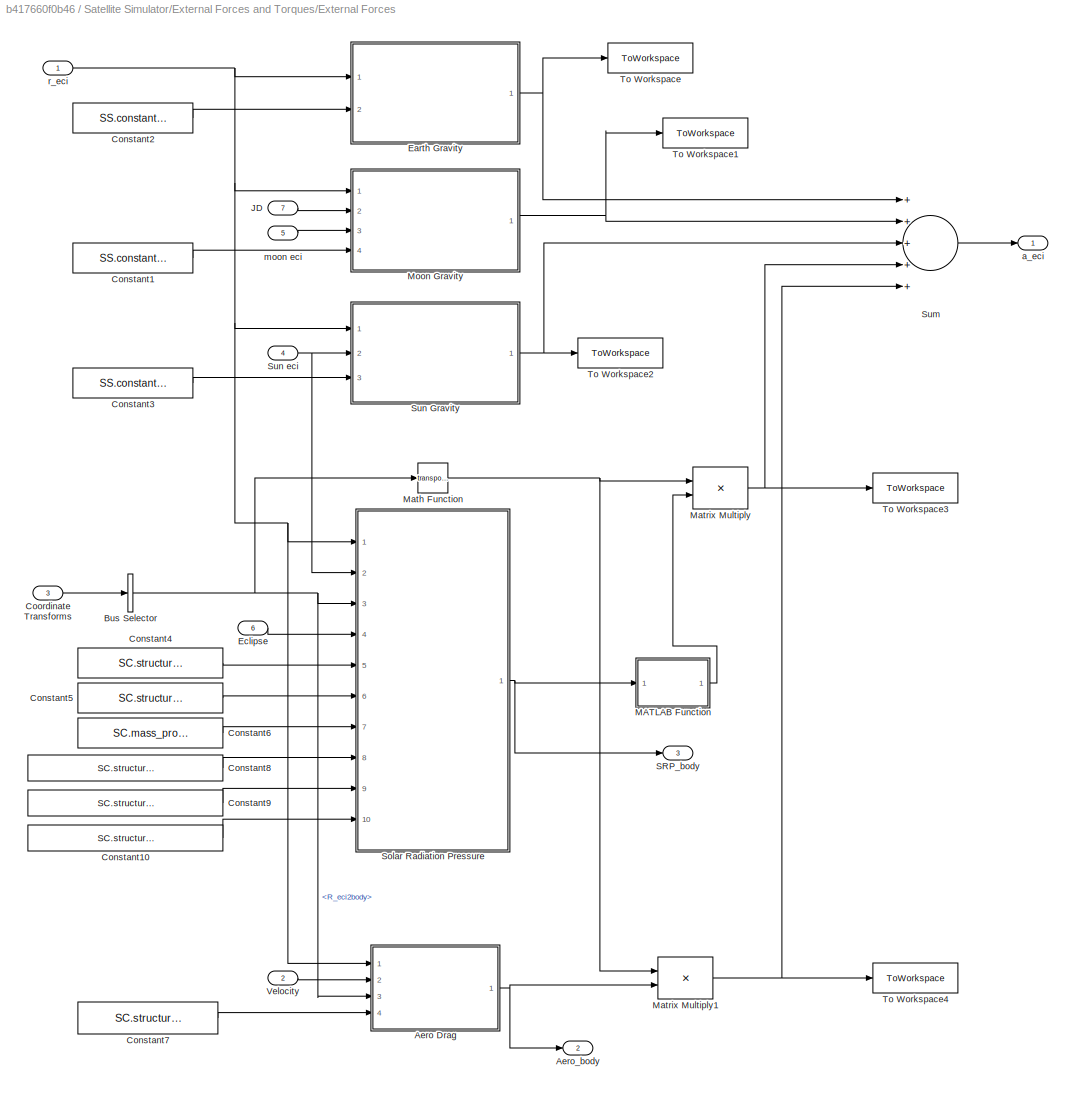
BLOCK [SubSystem] Satellite Simulator/External Forces and Torques/External Forces
  Ports = [7, 3]
  RequestExecContextInheritance = off
BLOCK [SubSystem] Satellite Simulator/External Forces and Torques/External Forces/Aero Drag
  ErrorFcn = Stateflow.Translate.translate
  PermitHierarchicalResolution = ExplicitOnly
  Ports = [4, 1]
  RequestExecContextInheritance = off
  SFBlockType = MATLAB Function
  TreatAsAtomicUnit = on
BLOCK [Demux] Satellite Simulator/External Forces and Torques/External Forces/Aero Drag/ Demux 
  Outputs = 1
  Ports = [1, 1]
BLOCK [S-Function] Satellite Simulator/External Forces and Torques/External Forces/Aero Drag/ SFunction 
  EnableBusSupport = off
  FunctionName = sf_sfun
  PortCounts = [4 2]
  Ports = [4, 2]
  SFcnIsStateOwnerBlock = off
  SFunctionDeploymentMode = off
  Tag = Stateflow S-Function ADCS_r2017b 29
BLOCK [Terminator] Satellite Simulator/External Forces and Torques/External Forces/Aero Drag/ Terminator 
BLOCK [Inport] Satellite Simulator/External Forces and Torques/External Forces/Aero Drag/CD
  IconDisplay = Port number
  Port = 4
BLOCK [Inport] Satellite Simulator/External Forces and Torques/External Forces/Aero Drag/R_eci2body
  IconDisplay = Port number
  Port = 3
BLOCK [Outport] Satellite Simulator/External Forces and Torques/External Forces/Aero Drag/a_body
  IconDisplay = Port number
BLOCK [Inport] Satellite Simulator/External Forces and Torques/External Forces/Aero Drag/r_eci
  IconDisplay = Port number
BLOCK [Inport] Satellite Simulator/External Forces and Torques/External Forces/Aero Drag/v_eci
  IconDisplay = Port number
  Port = 2
BLOCK [Outport] Satellite Simulator/External Forces and Torques/External Forces/Aero_body
  IconDisplay = Port number
  Port = 2
BLOCK [BusSelector] Satellite Simulator/External Forces and Torques/External Forces/Bus Selector
  OutputAsBus = off
  OutputSignals = R_eci2body
  Ports = [1, 1]
BLOCK [Constant] Satellite Simulator/External Forces and Torques/External Forces/Constant1
  Value = SS.constants.GM_Moon
BLOCK [Constant] Satellite Simulator/External Forces and Torques/External Forces/Constant10
  Value = SC.structure.srp_coeff.diff_reflec
BLOCK [Constant] Satellite Simulator/External Forces and Torques/External Forces/Constant2
  Value = SS.constants.GM_Earth
BLOCK [Constant] Satellite Simulator/External Forces and Torques/External Forces/Constant3
  Value = SS.constants.GM_Sun
BLOCK [Constant] Satellite Simulator/External Forces and Torques/External Forces/Constant4
  Value = SC.structure.unitSurfaces
BLOCK [Constant] Satellite Simulator/External Forces and Torques/External Forces/Constant5
  Value = SC.structure.area_per_face
BLOCK [Constant] Satellite Simulator/External Forces and Torques/External Forces/Constant6
  Value = SC.mass_properties.mass
BLOCK [Constant] Satellite Simulator/External Forces and Torques/External Forces/Constant7
  Value = SC.structure.CD
BLOCK [Constant] Satellite Simulator/External Forces and Torques/External Forces/Constant8
  Value = SC.structure.srp_coeff.absorption
BLOCK [Constant] Satellite Simulator/External Forces and Torques/External Forces/Constant9
  Value = SC.structure.srp_coeff.spec_reflec
BLOCK [Inport] Satellite Simulator/External Forces and Torques/External Forces/Coordinate Transforms
  IconDisplay = Port number
  Port = 3
BLOCK [SubSystem] Satellite Simulator/External Forces and Torques/External Forces/Earth Gravity
  ErrorFcn = Stateflow.Translate.translate
  PermitHierarchicalResolution = ExplicitOnly
  Ports = [2, 1]
  RequestExecContextInheritance = off
  SFBlockType = MATLAB Function
  TreatAsAtomicUnit = on
BLOCK [Demux] Satellite Simulator/External Forces and Torques/External Forces/Earth Gravity/ Demux 
  Outputs = 1
  Ports = [1, 1]
BLOCK [S-Function] Satellite Simulator/External Forces and Torques/External Forces/Earth Gravity/ SFunction 
  EnableBusSupport = off
  FunctionName = sf_sfun
  PortCounts = [2 2]
  Ports = [2, 2]
  SFcnIsStateOwnerBlock = off
  SFunctionDeploymentMode = off
  Tag = Stateflow S-Function ADCS_r2017b 30
BLOCK [Terminator] Satellite Simulator/External Forces and Torques/External Forces/Earth Gravity/ Terminator 
BLOCK [Inport] Satellite Simulator/External Forces and Torques/External Forces/Earth Gravity/GM_Earth
  IconDisplay = Port number
  Port = 2
BLOCK [Outport] Satellite Simulator/External Forces and Torques/External Forces/Earth Gravity/a_Earth_eci
  IconDisplay = Port number
BLOCK [Inport] Satellite Simulator/External Forces and Torques/External Forces/Earth Gravity/r_eci
  IconDisplay = Port number
BLOCK [Inport] Satellite Simulator/External Forces and Torques/External Forces/Eclipse
  IconDisplay = Port number
  Port = 6
BLOCK [Inport] Satellite Simulator/External Forces and Torques/External Forces/JD
  IconDisplay = Port number
  Port = 7
  PortDimensions = 1
BLOCK [SubSystem] Satellite Simulator/External Forces and Torques/External Forces/MATLAB Function
  ErrorFcn = Stateflow.Translate.translate
  PermitHierarchicalResolution = ExplicitOnly
  Ports = [1, 1]
  RequestExecContextInheritance = off
  SFBlockType = MATLAB Function
  TreatAsAtomicUnit = on
BLOCK [Demux] Satellite Simulator/External Forces and Torques/External Forces/MATLAB Function/ Demux 
  Outputs = 1
  Ports = [1, 1]
BLOCK [S-Function] Satellite Simulator/External Forces and Torques/External Forces/MATLAB Function/ SFunction 
  EnableBusSupport = off
  FunctionName = sf_sfun
  PortCounts = [1 2]
  Ports = [1, 2]
  SFcnIsStateOwnerBlock = off
  SFunctionDeploymentMode = off
  Tag = Stateflow S-Function ADCS_r2017b 6
BLOCK [Terminator] Satellite Simulator/External Forces and Torques/External Forces/MATLAB Function/ Terminator 
BLOCK [Inport] Satellite Simulator/External Forces and Torques/External Forces/MATLAB Function/srp
  IconDisplay = Port number
BLOCK [Outport] Satellite Simulator/External Forces and Torques/External Forces/MATLAB Function/srp_tot
  IconDisplay = Port number
BLOCK [Math] Satellite Simulator/External Forces and Torques/External Forces/Math Function
  Operator = transpose
  Ports = [1, 1]
BLOCK [Product] Satellite Simulator/External Forces and Torques/External Forces/Matrix Multiply
  InputSameDT = off
  Multiplication = Matrix(*)
  OutDataTypeStr = Inherit: Inherit via internal rule
  Ports = [2, 1]
  RndMeth = Floor
  SaturateOnIntegerOverflow = off
BLOCK [Product] Satellite Simulator/External Forces and Torques/External Forces/Matrix Multiply1
  InputSameDT = off
  Multiplication = Matrix(*)
  OutDataTypeStr = Inherit: Inherit via internal rule
  Ports = [2, 1]
  RndMeth = Floor
  SaturateOnIntegerOverflow = off
BLOCK [SubSystem] Satellite Simulator/External Forces and Torques/External Forces/Moon Gravity
  ErrorFcn = Stateflow.Translate.translate
  PermitHierarchicalResolution = ExplicitOnly
  Ports = [4, 1]
  RequestExecContextInheritance = off
  SFBlockType = MATLAB Function
  TreatAsAtomicUnit = on
BLOCK [Demux] Satellite Simulator/External Forces and Torques/External Forces/Moon Gravity/ Demux 
  Outputs = 1
  Ports = [1, 1]
BLOCK [S-Function] Satellite Simulator/External Forces and Torques/External Forces/Moon Gravity/ SFunction 
  EnableBusSupport = off
  FunctionName = sf_sfun
  PortCounts = [4 2]
  Ports = [4, 2]
  SFcnIsStateOwnerBlock = off
  SFunctionDeploymentMode = off
  Tag = Stateflow S-Function ADCS_r2017b 31
BLOCK [Terminator] Satellite Simulator/External Forces and Torques/External Forces/Moon Gravity/ Terminator 
BLOCK [Inport] Satellite Simulator/External Forces and Torques/External Forces/Moon Gravity/GM_moon
  IconDisplay = Port number
  Port = 4
BLOCK [Inport] Satellite Simulator/External Forces and Torques/External Forces/Moon Gravity/JD
  IconDisplay = Port number
  Port = 2
BLOCK [Outport] Satellite Simulator/External Forces and Torques/External Forces/Moon Gravity/a_Moon_eci
  IconDisplay = Port number
BLOCK [Inport] Satellite Simulator/External Forces and Torques/External Forces/Moon Gravity/moon_eci
  IconDisplay = Port number
  Port = 3
BLOCK [Inport] Satellite Simulator/External Forces and Torques/External Forces/Moon Gravity/r_eci
  IconDisplay = Port number
BLOCK [Outport] Satellite Simulator/External Forces and Torques/External Forces/SRP_body
  IconDisplay = Port number
  Port = 3
BLOCK [SubSystem] Satellite Simulator/External Forces and Torques/External Forces/Solar Radiation Pressure
  ErrorFcn = Stateflow.Translate.translate
  PermitHierarchicalResolution = ExplicitOnly
  Ports = [10, 1]
  RequestExecContextInheritance = off
  SFBlockType = MATLAB Function
  TreatAsAtomicUnit = on
BLOCK [Demux] Satellite Simulator/External Forces and Torques/External Forces/Solar Radiation Pressure/ Demux 
  Outputs = 1
  Ports = [1, 1]
BLOCK [S-Function] Satellite Simulator/External Forces and Torques/External Forces/Solar Radiation Pressure/ SFunction 
  EnableBusSupport = off
  FunctionName = sf_sfun
  PortCounts = [10 2]
  Ports = [10, 2]
  SFcnIsStateOwnerBlock = off
  SFunctionDeploymentMode = off
  Tag = Stateflow S-Function ADCS_r2017b 32
BLOCK [Terminator] Satellite Simulator/External Forces and Torques/External Forces/Solar Radiation Pressure/ Terminator 
BLOCK [Inport] Satellite Simulator/External Forces and Torques/External Forces/Solar Radiation Pressure/Ca
  IconDisplay = Port number
  Port = 8
BLOCK [Inport] Satellite Simulator/External Forces and Torques/External Forces/Solar Radiation Pressure/Cd
  IconDisplay = Port number
  Port = 10
BLOCK [Inport] Satellite Simulator/External Forces and Torques/External Forces/Solar Radiation Pressure/Cs
  IconDisplay = Port number
  Port = 9
BLOCK [Inport] Satellite Simulator/External Forces and Torques/External Forces/Solar Radiation Pressure/R_eci2body
  IconDisplay = Port number
  Port = 3
BLOCK [Outport] Satellite Simulator/External Forces and Torques/External Forces/Solar Radiation Pressure/a_srp
  IconDisplay = Port number
BLOCK [Inport] Satellite Simulator/External Forces and Torques/External Forces/Solar Radiation Pressure/area_per_face
  IconDisplay = Port number
  Port = 6
BLOCK [Inport] Satellite Simulator/External Forces and Torques/External Forces/Solar Radiation Pressure/eclipse
  IconDisplay = Port number
  Port = 4
BLOCK [Inport] Satellite Simulator/External Forces and Torques/External Forces/Solar Radiation Pressure/mass
  IconDisplay = Port number
  Port = 7
BLOCK [Inport] Satellite Simulator/External Forces and Torques/External Forces/Solar Radiation Pressure/r_eci
  IconDisplay = Port number
BLOCK [Inport] Satellite Simulator/External Forces and Torques/External Forces/Solar Radiation Pressure/sun_eci
  IconDisplay = Port number
  Port = 2
BLOCK [Inport] Satellite Simulator/External Forces and Torques/External Forces/Solar Radiation Pressure/unitPtVec
  IconDisplay = Port number
  Port = 5
BLOCK [Sum] Satellite Simulator/External Forces and Torques/External Forces/Sum
  InputSameDT = off
  Inputs = +++++
  OutDataTypeStr = Inherit: Inherit via internal rule
  Ports = [5, 1]
  SaturateOnIntegerOverflow = off
BLOCK [SubSystem] Satellite Simulator/External Forces and Torques/External Forces/Sun Gravity
  ErrorFcn = Stateflow.Translate.translate
  PermitHierarchicalResolution = ExplicitOnly
  Ports = [3, 1]
  RequestExecContextInheritance = off
  SFBlockType = MATLAB Function
  TreatAsAtomicUnit = on
BLOCK [Demux] Satellite Simulator/External Forces and Torques/External Forces/Sun Gravity/ Demux 
  Outputs = 1
  Ports = [1, 1]
BLOCK [S-Function] Satellite Simulator/External Forces and Torques/External Forces/Sun Gravity/ SFunction 
  EnableBusSupport = off
  FunctionName = sf_sfun
  PortCounts = [3 2]
  Ports = [3, 2]
  SFcnIsStateOwnerBlock = off
  SFunctionDeploymentMode = off
  Tag = Stateflow S-Function ADCS_r2017b 33
BLOCK [Terminator] Satellite Simulator/External Forces and Torques/External Forces/Sun Gravity/ Terminator 
BLOCK [Inport] Satellite Simulator/External Forces and Torques/External Forces/Sun Gravity/GM_sun
  IconDisplay = Port number
  Port = 3
BLOCK [Outport] Satellite Simulator/External Forces and Torques/External Forces/Sun Gravity/a_Sun_eci
  IconDisplay = Port number
BLOCK [Inport] Satellite Simulator/External Forces and Torques/External Forces/Sun Gravity/r_eci
  IconDisplay = Port number
BLOCK [Inport] Satellite Simulator/External Forces and Torques/External Forces/Sun Gravity/sun_eci
  IconDisplay = Port number
  Port = 2
BLOCK [Inport] Satellite Simulator/External Forces and Torques/External Forces/Sun eci
  IconDisplay = Port number
  Port = 4
BLOCK [ToWorkspace] Satellite Simulator/External Forces and Torques/External Forces/To Workspace
  FixptAsFi = on
  MaxDataPoints = inf
  Ports = [1]
  SampleTime = -1
  Save2DSignal = 3-D array (concatenate along third dimension)
  VariableName = a_eci_earth
BLOCK [ToWorkspace] Satellite Simulator/External Forces and Torques/External Forces/To Workspace1
  FixptAsFi = on
  MaxDataPoints = inf
  Ports = [1]
  SampleTime = -1
  Save2DSignal = 3-D array (concatenate along third dimension)
  VariableName = a_eci_moon
BLOCK [ToWorkspace] Satellite Simulator/External Forces and Torques/External Forces/To Workspace2
  FixptAsFi = on
  MaxDataPoints = inf
  Ports = [1]
  SampleTime = -1
  Save2DSignal = 3-D array (concatenate along third dimension)
  VariableName = a_eci_sun
BLOCK [ToWorkspace] Satellite Simulator/External Forces and Torques/External Forces/To Workspace3
  FixptAsFi = on
  MaxDataPoints = inf
  Ports = [1]
  SampleTime = -1
  Save2DSignal = 3-D array (concatenate along third dimension)
  VariableName = a_eci_srp
BLOCK [ToWorkspace] Satellite Simulator/External Forces and Torques/External Forces/To Workspace4
  FixptAsFi = on
  MaxDataPoints = inf
  Ports = [1]
  SampleTime = -1
  Save2DSignal = 3-D array (concatenate along third dimension)
  VariableName = a_eci_aero
BLOCK [Inport] Satellite Simulator/External Forces and Torques/External Forces/Velocity
  IconDisplay = Port number
  Port = 2
BLOCK [Outport] Satellite Simulator/External Forces and Torques/External Forces/a_eci
  IconDisplay = Port number
BLOCK [Inport] Satellite Simulator/External Forces and Torques/External Forces/moon eci
  IconDisplay = Port number
  Port = 5
BLOCK [Inport] Satellite Simulator/External Forces and Torques/External Forces/r_eci
  IconDisplay = Port number
BLOCK [SubSystem] Satellite Simulator/External Forces and Torques/External Torques
  Ports = [5, 1]
  RequestExecContextInheritance = off
BLOCK [SubSystem] Satellite Simulator/External Forces and Torques/External Torques/Aero Torque
  ErrorFcn = Stateflow.Translate.translate
  PermitHierarchicalResolution = ExplicitOnly
  Ports = [2, 1]
  RequestExecContextInheritance = off
  SFBlockType = MATLAB Function
  TreatAsAtomicUnit = on
BLOCK [Demux] Satellite Simulator/External Forces and Torques/External Torques/Aero Torque/ Demux 
  Outputs = 1
  Ports = [1, 1]
BLOCK [S-Function] Satellite Simulator/External Forces and Torques/External Torques/Aero Torque/ SFunction 
  EnableBusSupport = off
  FunctionName = sf_sfun
  PortCounts = [2 2]
  Ports = [2, 2]
  SFcnIsStateOwnerBlock = off
  SFunctionDeploymentMode = off
  Tag = Stateflow S-Function ADCS_r2017b 34
BLOCK [Terminator] Satellite Simulator/External Forces and Torques/External Torques/Aero Torque/ Terminator 
BLOCK [Inport] Satellite Simulator/External Forces and Torques/External Torques/Aero Torque/f_aero_body
  IconDisplay = Port number
BLOCK [Inport] Satellite Simulator/External Forces and Torques/External Torques/Aero Torque/moment_arms
  IconDisplay = Port number
  Port = 2
BLOCK [Outport] Satellite Simulator/External Forces and Torques/External Torques/Aero Torque/tor
  IconDisplay = Port number
BLOCK [BusSelector] Satellite Simulator/External Forces and Torques/External Torques/Bus Selector
  OutputAsBus = off
  OutputSignals = R_eci2body,R_eci2mci
  Ports = [1, 2]
BLOCK [Constant] Satellite Simulator/External Forces and Torques/External Torques/Constant
  Value = SC.structure.moment_arms
BLOCK [Constant] Satellite Simulator/External Forces and Torques/External Torques/Constant1
  Value = SC.structure.residual_dipole
BLOCK [Constant] Satellite Simulator/External Forces and Torques/External Torques/Constant2
  Value = SS.constants.radius_moon
BLOCK [Inport] Satellite Simulator/External Forces and Torques/External Torques/Coordinate Transforms
  IconDisplay = Port number
  Port = 5
BLOCK [Inport] Satellite Simulator/External Forces and Torques/External Torques/Force_SRP_body
  IconDisplay = Port number
  Port = 2
BLOCK [Inport] Satellite Simulator/External Forces and Torques/External Torques/Force_aero_body
  IconDisplay = Port number
BLOCK [Gain] Satellite Simulator/External Forces and Torques/External Torques/Gain
  Gain = SC.mass_properties.mass
  OutDataTypeStr = Inherit: Inherit via internal rule
  ParamDataTypeStr = Inherit: Inherit via internal rule
  SaturateOnIntegerOverflow = off
BLOCK [SubSystem] Satellite Simulator/External Forces and Torques/External Torques/Grav gradient earth
  Ports = [2, 1]
  RequestExecContextInheritance = off
BLOCK [Reference] Satellite Simulator/External Forces and Torques/External Torques/Grav gradient earth/3x3 Cross Product  REF=sharedutil/3x3 Cross Product
  Ports = [2, 1]
  SourceBlock = sharedutil/3x3 Cross Product
  SourceProductBaseCode = AE
  SourceProductName = Aerospace Blockset
  SourceType = CrossProduct
BLOCK [Constant] Satellite Simulator/External Forces and Torques/External Torques/Grav gradient earth/Constant
  Value = SC.mass_properties.inertia
BLOCK [Constant] Satellite Simulator/External Forces and Torques/External Torques/Grav gradient earth/Constant1
  Value = SS.constants.GM_Earth
BLOCK [SubSystem] Satellite Simulator/External Forces and Torques/External Torques/Grav gradient earth/MATLAB Function
  ErrorFcn = Stateflow.Translate.translate
  PermitHierarchicalResolution = ExplicitOnly
  Ports = [3, 1]
  RequestExecContextInheritance = off
  SFBlockType = MATLAB Function
  TreatAsAtomicUnit = on
BLOCK [Demux] Satellite Simulator/External Forces and Torques/External Torques/Grav gradient earth/MATLAB Function/ Demux 
  Outputs = 1
  Ports = [1, 1]
BLOCK [S-Function] Satellite Simulator/External Forces and Torques/External Torques/Grav gradient earth/MATLAB Function/ SFunction 
  EnableBusSupport = off
  FunctionName = sf_sfun
  PortCounts = [3 2]
  Ports = [3, 2]
  SFcnIsStateOwnerBlock = off
  SFunctionDeploymentMode = off
  Tag = Stateflow S-Function ADCS_r2017b 15
BLOCK [Terminator] Satellite Simulator/External Forces and Torques/External Torques/Grav gradient earth/MATLAB Function/ Terminator 
BLOCK [Inport] Satellite Simulator/External Forces and Torques/External Torques/Grav gradient earth/MATLAB Function/GM
  IconDisplay = Port number
  Port = 3
BLOCK [Inport] Satellite Simulator/External Forces and Torques/External Torques/Grav gradient earth/MATLAB Function/rIr
  IconDisplay = Port number
BLOCK [Inport] Satellite Simulator/External Forces and Torques/External Torques/Grav gradient earth/MATLAB Function/r_eci
  IconDisplay = Port number
  Port = 2
BLOCK [Outport] Satellite Simulator/External Forces and Torques/External Torques/Grav gradient earth/MATLAB Function/tor
  IconDisplay = Port number
BLOCK [Product] Satellite Simulator/External Forces and Torques/External Torques/Grav gradient earth/Matrix Multiply
  InputSameDT = off
  Multiplication = Matrix(*)
  OutDataTypeStr = Inherit: Inherit via internal rule
  Ports = [2, 1]
  RndMeth = Floor
  SaturateOnIntegerOverflow = off
BLOCK [Product] Satellite Simulator/External Forces and Torques/External Torques/Grav gradient earth/Matrix Multiply1
  InputSameDT = off
  Multiplication = Matrix(*)
  OutDataTypeStr = Inherit: Inherit via internal rule
  Ports = [2, 1]
  RndMeth = Floor
  SaturateOnIntegerOverflow = off
BLOCK [Reference] Satellite Simulator/External Forces and Torques/External Torques/Grav gradient earth/Normalize Vector  REF=vrlib/Utilities/Normalize Vector
  Ports = [1, 1]
  SourceBlock = vrlib/Utilities/Normalize Vector
  SourceProductBaseCode = VR
  SourceProductName = Simulink 3D Animation
  SourceType = Normalize Vector
BLOCK [Inport] Satellite Simulator/External Forces and Torques/External Torques/Grav gradient earth/R_eci2body
  IconDisplay = Port number
  Port = 2
BLOCK [Outport] Satellite Simulator/External Forces and Torques/External Torques/Grav gradient earth/Torque_body
  IconDisplay = Port number
BLOCK [Inport] Satellite Simulator/External Forces and Torques/External Torques/Grav gradient earth/r_eci
  IconDisplay = Port number
BLOCK [SubSystem] Satellite Simulator/External Forces and Torques/External Torques/Grav gradient moon
  Ports = [2, 1]
  RequestExecContextInheritance = off
BLOCK [Reference] Satellite Simulator/External Forces and Torques/External Torques/Grav gradient moon/3x3 Cross Product  REF=sharedutil/3x3 Cross Product
  Ports = [2, 1]
  SourceBlock = sharedutil/3x3 Cross Product
  SourceProductBaseCode = AE
  SourceProductName = Aerospace Blockset
  SourceType = CrossProduct
BLOCK [Constant] Satellite Simulator/External Forces and Torques/External Torques/Grav gradient moon/Constant
  Value = SC.mass_properties.inertia
BLOCK [Constant] Satellite Simulator/External Forces and Torques/External Torques/Grav gradient moon/Constant1
  Value = SS.constants.GM_Moon
BLOCK [SubSystem] Satellite Simulator/External Forces and Torques/External Torques/Grav gradient moon/MATLAB Function
  ErrorFcn = Stateflow.Translate.translate
  PermitHierarchicalResolution = ExplicitOnly
  Ports = [3, 1]
  RequestExecContextInheritance = off
  SFBlockType = MATLAB Function
  TreatAsAtomicUnit = on
BLOCK [Demux] Satellite Simulator/External Forces and Torques/External Torques/Grav gradient moon/MATLAB Function/ Demux 
  Outputs = 1
  Ports = [1, 1]
BLOCK [S-Function] Satellite Simulator/External Forces and Torques/External Torques/Grav gradient moon/MATLAB Function/ SFunction 
  EnableBusSupport = off
  FunctionName = sf_sfun
  PortCounts = [3 2]
  Ports = [3, 2]
  SFcnIsStateOwnerBlock = off
  SFunctionDeploymentMode = off
  Tag = Stateflow S-Function ADCS_r2017b 16
BLOCK [Terminator] Satellite Simulator/External Forces and Torques/External Torques/Grav gradient moon/MATLAB Function/ Terminator 
BLOCK [Inport] Satellite Simulator/External Forces and Torques/External Torques/Grav gradient moon/MATLAB Function/GM
  IconDisplay = Port number
  Port = 3
BLOCK [Inport] Satellite Simulator/External Forces and Torques/External Torques/Grav gradient moon/MATLAB Function/rIr
  IconDisplay = Port number
BLOCK [Inport] Satellite Simulator/External Forces and Torques/External Torques/Grav gradient moon/MATLAB Function/r_mci
  IconDisplay = Port number
  Port = 2
BLOCK [Outport] Satellite Simulator/External Forces and Torques/External Torques/Grav gradient moon/MATLAB Function/tor
  IconDisplay = Port number
BLOCK [Product] Satellite Simulator/External Forces and Torques/External Torques/Grav gradient moon/Matrix Multiply
  InputSameDT = off
  Multiplication = Matrix(*)
  OutDataTypeStr = Inherit: Inherit via internal rule
  Ports = [2, 1]
  RndMeth = Floor
  SaturateOnIntegerOverflow = off
BLOCK [Product] Satellite Simulator/External Forces and Torques/External Torques/Grav gradient moon/Matrix Multiply1
  InputSameDT = off
  Multiplication = Matrix(*)
  OutDataTypeStr = Inherit: Inherit via internal rule
  Ports = [2, 1]
  RndMeth = Floor
  SaturateOnIntegerOverflow = off
BLOCK [Reference] Satellite Simulator/External Forces and Torques/External Torques/Grav gradient moon/Normalize Vector  REF=vrlib/Utilities/Normalize Vector
  Ports = [1, 1]
  SourceBlock = vrlib/Utilities/Normalize Vector
  SourceProductBaseCode = VR
  SourceProductName = Simulink 3D Animation
  SourceType = Normalize Vector
BLOCK [Inport] Satellite Simulator/External Forces and Torques/External Torques/Grav gradient moon/R_mci2body
  IconDisplay = Port number
  Port = 2
BLOCK [Outport] Satellite Simulator/External Forces and Torques/External Torques/Grav gradient moon/Torque_body
  IconDisplay = Port number
BLOCK [Inport] Satellite Simulator/External Forces and Torques/External Torques/Grav gradient moon/r_mci
  IconDisplay = Port number
BLOCK [SubSystem] Satellite Simulator/External Forces and Torques/External Torques/MATLAB Function
  ErrorFcn = Stateflow.Translate.translate
  PermitHierarchicalResolution = ExplicitOnly
  Ports = [2, 1]
  RequestExecContextInheritance = off
  SFBlockType = MATLAB Function
  TreatAsAtomicUnit = on
BLOCK [Demux] Satellite Simulator/External Forces and Torques/External Torques/MATLAB Function/ Demux 
  Outputs = 1
  Ports = [1, 1]
BLOCK [S-Function] Satellite Simulator/External Forces and Torques/External Torques/MATLAB Function/ SFunction 
  EnableBusSupport = off
  FunctionName = sf_sfun
  PortCounts = [2 2]
  Ports = [2, 2]
  SFcnIsStateOwnerBlock = off
  SFunctionDeploymentMode = off
  Tag = Stateflow S-Function ADCS_r2017b 8
BLOCK [Terminator] Satellite Simulator/External Forces and Torques/External Torques/MATLAB Function/ Terminator 
BLOCK [Inport] Satellite Simulator/External Forces and Torques/External Torques/MATLAB Function/r_mci
  IconDisplay = Port number
BLOCK [Inport] Satellite Simulator/External Forces and Torques/External Torques/MATLAB Function/r_moon
  IconDisplay = Port number
  Port = 2
BLOCK [Outport] Satellite Simulator/External Forces and Torques/External Torques/MATLAB Function/y
  IconDisplay = Port number
BLOCK [Inport] Satellite Simulator/External Forces and Torques/External Torques/Mag
  IconDisplay = Port number
  Port = 4
BLOCK [Reference] Satellite Simulator/External Forces and Torques/External Torques/Mag Torque  REF=sharedutil/3x3 Cross Product
  Ports = [2, 1]
  SourceBlock = sharedutil/3x3 Cross Product
  SourceProductBaseCode = AE
  SourceProductName = Aerospace Blockset
  SourceType = CrossProduct
BLOCK [Math] Satellite Simulator/External Forces and Torques/External Torques/Math Function
  Operator = transpose
  Ports = [1, 1]
BLOCK [Product] Satellite Simulator/External Forces and Torques/External Torques/Matrix Multiply
  InputSameDT = off
  Multiplication = Matrix(*)
  OutDataTypeStr = Inherit: Inherit via internal rule
  Ports = [2, 1]
  RndMeth = Floor
  SaturateOnIntegerOverflow = off
BLOCK [Product] Satellite Simulator/External Forces and Torques/External Torques/Matrix Multiply1
  InputSameDT = off
  Multiplication = Matrix(*)
  OutDataTypeStr = Inherit: Inherit via internal rule
  Ports = [2, 1]
  RndMeth = Floor
  SaturateOnIntegerOverflow = off
BLOCK [SubSystem] Satellite Simulator/External Forces and Torques/External Torques/SRP Torque
  ErrorFcn = Stateflow.Translate.translate
  PermitHierarchicalResolution = ExplicitOnly
  Ports = [2, 1]
  RequestExecContextInheritance = off
  SFBlockType = MATLAB Function
  TreatAsAtomicUnit = on
BLOCK [Demux] Satellite Simulator/External Forces and Torques/External Torques/SRP Torque/ Demux 
  Outputs = 1
  Ports = [1, 1]
BLOCK [S-Function] Satellite Simulator/External Forces and Torques/External Torques/SRP Torque/ SFunction 
  EnableBusSupport = off
  FunctionName = sf_sfun
  PortCounts = [2 2]
  Ports = [2, 2]
  SFcnIsStateOwnerBlock = off
  SFunctionDeploymentMode = off
  Tag = Stateflow S-Function ADCS_r2017b 38
BLOCK [Terminator] Satellite Simulator/External Forces and Torques/External Torques/SRP Torque/ Terminator 
BLOCK [Inport] Satellite Simulator/External Forces and Torques/External Torques/SRP Torque/f_SRP_body
  IconDisplay = Port number
BLOCK [Inport] Satellite Simulator/External Forces and Torques/External Torques/SRP Torque/moment_arms
  IconDisplay = Port number
  Port = 2
BLOCK [Outport] Satellite Simulator/External Forces and Torques/External Torques/SRP Torque/tor
  IconDisplay = Port number
BLOCK [Stop] Satellite Simulator/External Forces and Torques/External Torques/Stop Simulation
BLOCK [Sum] Satellite Simulator/External Forces and Torques/External Torques/Sum
  InputSameDT = off
  Inputs = 5
  OutDataTypeStr = Inherit: Inherit via internal rule
  Ports = [5, 1]
  SaturateOnIntegerOverflow = off
BLOCK [ToWorkspace] Satellite Simulator/External Forces and Torques/External Torques/To Workspace
  FixptAsFi = on
  MaxDataPoints = inf
  Ports = [1]
  SampleTime = -1
  Save2DSignal = 3-D array (concatenate along third dimension)
  VariableName = tor_gg_earth
BLOCK [ToWorkspace] Satellite Simulator/External Forces and Torques/External Torques/To Workspace1
  FixptAsFi = on
  MaxDataPoints = inf
  Ports = [1]
  SampleTime = -1
  Save2DSignal = 3-D array (concatenate along third dimension)
  VariableName = tor_gg_moon
BLOCK [ToWorkspace] Satellite Simulator/External Forces and Torques/External Torques/To Workspace2
  FixptAsFi = on
  MaxDataPoints = inf
  Ports = [1]
  SampleTime = -1
  Save2DSignal = 3-D array (concatenate along third dimension)
  VariableName = tor_srp
BLOCK [ToWorkspace] Satellite Simulator/External Forces and Torques/External Torques/To Workspace3
  FixptAsFi = on
  MaxDataPoints = inf
  Ports = [1]
  SampleTime = -1
  Save2DSignal = 3-D array (concatenate along third dimension)
  VariableName = tor_tot_body
BLOCK [ToWorkspace] Satellite Simulator/External Forces and Torques/External Torques/To Workspace4
  FixptAsFi = on
  MaxDataPoints = inf
  Ports = [1]
  SampleTime = -1
  Save2DSignal = 3-D array (concatenate along third dimension)
  VariableName = f_SRP_body
BLOCK [Outport] Satellite Simulator/External Forces and Torques/External Torques/Torques
  IconDisplay = Port number
BLOCK [Gain] Satellite Simulator/External Forces and Torques/External Torques/nT -> T
  Gain = 10^-9
  OutDataTypeStr = Inherit: Inherit via internal rule
  ParamDataTypeStr = Inherit: Inherit via internal rule
  SaturateOnIntegerOverflow = off
BLOCK [Inport] Satellite Simulator/External Forces and Torques/External Torques/r_eci
  IconDisplay = Port number
  Port = 3
BLOCK [Inport] Satellite Simulator/External Forces and Torques/JD
  IconDisplay = Port number
  Port = 8
BLOCK [Inport] Satellite Simulator/External Forces and Torques/Mag
  IconDisplay = Port number
  Port = 6
BLOCK [Inport] Satellite Simulator/External Forces and Torques/Position
  IconDisplay = Port number
BLOCK [Inport] Satellite Simulator/External Forces and Torques/Velocity
  IconDisplay = Port number
  Port = 2
BLOCK [Outport] Satellite Simulator/External Forces and Torques/a_eci
  IconDisplay = Port number
BLOCK [Inport] Satellite Simulator/External Forces and Torques/moon_eci
  IconDisplay = Port number
  Port = 5
BLOCK [Inport] Satellite Simulator/External Forces and Torques/sun_eci
  IconDisplay = Port number
  Port = 4
BLOCK [Outport] Satellite Simulator/External Forces and Torques/tor_body
  IconDisplay = Port number
  Port = 2
BLOCK [Outport] Satellite Simulator/JD
  IconDisplay = Port number
  Port = 2
  PortDimensions = 1
BLOCK [SubSystem] Satellite Simulator/Kinematics
  Ports = [3, 5]
  RequestExecContextInheritance = off
BLOCK [SubSystem] Satellite Simulator/Kinematics/Backup Rotation Kinematics
  Ports = [1, 2]
  RequestExecContextInheritance = off
BLOCK [SubSystem] Satellite Simulator/Kinematics/Backup Rotation Kinematics/Adams Bashforth Integration
  Ports = [3, 1]
  RequestExecContextInheritance = off
BLOCK [Delay] Satellite Simulator/Kinematics/Backup Rotation Kinematics/Adams Bashforth Integration/Delay
  DelayLength = 1
  InitialCondition = 0
  InitialConditionSource = Input port
  InputPortMap = u0,p4
  Ports = [2, 1]
BLOCK [Delay] Satellite Simulator/Kinematics/Backup Rotation Kinematics/Adams Bashforth Integration/Delay1
  DelayLength = 1
  InitialCondition = 0
  InitialConditionSource = Input port
  InputPortMap = u0,p4
  Ports = [2, 1]
BLOCK [Delay] Satellite Simulator/Kinematics/Backup Rotation Kinematics/Adams Bashforth Integration/Delay2
  DelayLength = 1
  InitialCondition = 0
  InitialConditionSource = Input port
  InputPortMap = u0,p4
  Ports = [2, 1]
BLOCK [Gain] Satellite Simulator/Kinematics/Backup Rotation Kinematics/Adams Bashforth Integration/Gain
  Gain = 23/12
  OutDataTypeStr = Inherit: Inherit via internal rule
  ParamDataTypeStr = Inherit: Inherit via internal rule
  SaturateOnIntegerOverflow = off
BLOCK [Gain] Satellite Simulator/Kinematics/Backup Rotation Kinematics/Adams Bashforth Integration/Gain1
  Gain = -16/12
  OutDataTypeStr = Inherit: Inherit via internal rule
  ParamDataTypeStr = Inherit: Inherit via internal rule
  SaturateOnIntegerOverflow = off
BLOCK [Gain] Satellite Simulator/Kinematics/Backup Rotation Kinematics/Adams Bashforth Integration/Gain2
  Gain = 5/12
  OutDataTypeStr = Inherit: Inherit via internal rule
  ParamDataTypeStr = Inherit: Inherit via internal rule
  SaturateOnIntegerOverflow = off
BLOCK [Product] Satellite Simulator/Kinematics/Backup Rotation Kinematics/Adams Bashforth Integration/Product
  InputSameDT = off
  OutDataTypeStr = Inherit: Inherit via internal rule
  Ports = [2, 1]
  RndMeth = Floor
  SaturateOnIntegerOverflow = off
BLOCK [Sum] Satellite Simulator/Kinematics/Backup Rotation Kinematics/Adams Bashforth Integration/Sum
  IconShape = round
  InputSameDT = off
  Inputs = |++
  OutDataTypeStr = Inherit: Inherit via internal rule
  Ports = [2, 1]
  SaturateOnIntegerOverflow = off
BLOCK [Sum] Satellite Simulator/Kinematics/Backup Rotation Kinematics/Adams Bashforth Integration/Sum1
  InputSameDT = off
  Inputs = +++
  OutDataTypeStr = Inherit: Inherit via internal rule
  Ports = [3, 1]
  SaturateOnIntegerOverflow = off
BLOCK [Inport] Satellite Simulator/Kinematics/Backup Rotation Kinematics/Adams Bashforth Integration/dt
  IconDisplay = Port number
  Port = 3
BLOCK [Outport] Satellite Simulator/Kinematics/Backup Rotation Kinematics/Adams Bashforth Integration/x
  IconDisplay = Port number
BLOCK [Inport] Satellite Simulator/Kinematics/Backup Rotation Kinematics/Adams Bashforth Integration/x_dot
  IconDisplay = Port number
  Port = 2
BLOCK [Inport] Satellite Simulator/Kinematics/Backup Rotation Kinematics/Adams Bashforth Integration/x_initial
  IconDisplay = Port number
BLOCK [SubSystem] Satellite Simulator/Kinematics/Backup Rotation Kinematics/Adams Bashforth Integration1
  Ports = [3, 1]
  RequestExecContextInheritance = off
BLOCK [Delay] Satellite Simulator/Kinematics/Backup Rotation Kinematics/Adams Bashforth Integration1/Delay
  DelayLength = 1
  InitialCondition = 0
  InitialConditionSource = Input port
  InputPortMap = u0,p4
  Ports = [2, 1]
BLOCK [Delay] Satellite Simulator/Kinematics/Backup Rotation Kinematics/Adams Bashforth Integration1/Delay1
  DelayLength = 1
  InitialCondition = 0
  InitialConditionSource = Input port
  InputPortMap = u0,p4
  Ports = [2, 1]
BLOCK [Delay] Satellite Simulator/Kinematics/Backup Rotation Kinematics/Adams Bashforth Integration1/Delay2
  DelayLength = 1
  InitialCondition = 0
  InitialConditionSource = Input port
  InputPortMap = u0,p4
  Ports = [2, 1]
BLOCK [Gain] Satellite Simulator/Kinematics/Backup Rotation Kinematics/Adams Bashforth Integration1/Gain
  Gain = 23/12
  OutDataTypeStr = Inherit: Inherit via internal rule
  ParamDataTypeStr = Inherit: Inherit via internal rule
  SaturateOnIntegerOverflow = off
BLOCK [Gain] Satellite Simulator/Kinematics/Backup Rotation Kinematics/Adams Bashforth Integration1/Gain1
  Gain = -16/12
  OutDataTypeStr = Inherit: Inherit via internal rule
  ParamDataTypeStr = Inherit: Inherit via internal rule
  SaturateOnIntegerOverflow = off
BLOCK [Gain] Satellite Simulator/Kinematics/Backup Rotation Kinematics/Adams Bashforth Integration1/Gain2
  Gain = 5/12
  OutDataTypeStr = Inherit: Inherit via internal rule
  ParamDataTypeStr = Inherit: Inherit via internal rule
  SaturateOnIntegerOverflow = off
BLOCK [Product] Satellite Simulator/Kinematics/Backup Rotation Kinematics/Adams Bashforth Integration1/Product
  InputSameDT = off
  OutDataTypeStr = Inherit: Inherit via internal rule
  Ports = [2, 1]
  RndMeth = Floor
  SaturateOnIntegerOverflow = off
BLOCK [Sum] Satellite Simulator/Kinematics/Backup Rotation Kinematics/Adams Bashforth Integration1/Sum
  IconShape = round
  InputSameDT = off
  Inputs = |++
  OutDataTypeStr = Inherit: Inherit via internal rule
  Ports = [2, 1]
  SaturateOnIntegerOverflow = off
BLOCK [Sum] Satellite Simulator/Kinematics/Backup Rotation Kinematics/Adams Bashforth Integration1/Sum1
  InputSameDT = off
  Inputs = +++
  OutDataTypeStr = Inherit: Inherit via internal rule
  Ports = [3, 1]
  SaturateOnIntegerOverflow = off
BLOCK [Inport] Satellite Simulator/Kinematics/Backup Rotation Kinematics/Adams Bashforth Integration1/dt
  IconDisplay = Port number
  Port = 3
BLOCK [Outport] Satellite Simulator/Kinematics/Backup Rotation Kinematics/Adams Bashforth Integration1/x
  IconDisplay = Port number
BLOCK [Inport] Satellite Simulator/Kinematics/Backup Rotation Kinematics/Adams Bashforth Integration1/x_dot
  IconDisplay = Port number
  Port = 2
BLOCK [Inport] Satellite Simulator/Kinematics/Backup Rotation Kinematics/Adams Bashforth Integration1/x_initial
  IconDisplay = Port number
BLOCK [Constant] Satellite Simulator/Kinematics/Backup Rotation Kinematics/Constant
  Value = SC.initial_state.e
BLOCK [Constant] Satellite Simulator/Kinematics/Backup Rotation Kinematics/Constant1
  Value = SC.initial_state.w
BLOCK [Constant] Satellite Simulator/Kinematics/Backup Rotation Kinematics/Constant2
  Value = delta_t
BLOCK [Constant] Satellite Simulator/Kinematics/Backup Rotation Kinematics/Constant3
  Value = SC.mass_properties.inertia
BLOCK [Constant] Satellite Simulator/Kinematics/Backup Rotation Kinematics/Constant4
  Value = delta_t
BLOCK [Delay] Satellite Simulator/Kinematics/Backup Rotation Kinematics/Delay
  DelayLength = 1
  InitialCondition = 0
  InitialConditionSource = Input port
  InputPortMap = u0,p4
  Ports = [2, 1]
BLOCK [Delay] Satellite Simulator/Kinematics/Backup Rotation Kinematics/Delay1
  DelayLength = 1
  InitialCondition = 0
  InitialConditionSource = Input port
  InputPortMap = u0,p4
  Ports = [2, 1]
BLOCK [SubSystem] Satellite Simulator/Kinematics/Backup Rotation Kinematics/Euler Equations
  ErrorFcn = Stateflow.Translate.translate
  PermitHierarchicalResolution = ExplicitOnly
  Ports = [3, 1]
  RequestExecContextInheritance = off
  SFBlockType = MATLAB Function
  TreatAsAtomicUnit = on
BLOCK [Demux] Satellite Simulator/Kinematics/Backup Rotation Kinematics/Euler Equations/ Demux 
  Outputs = 1
  Ports = [1, 1]
BLOCK [S-Function] Satellite Simulator/Kinematics/Backup Rotation Kinematics/Euler Equations/ SFunction 
  EnableBusSupport = off
  FunctionName = sf_sfun
  PortCounts = [3 2]
  Ports = [3, 2]
  SFcnIsStateOwnerBlock = off
  SFunctionDeploymentMode = off
  Tag = Stateflow S-Function ADCS_r2017b 4
BLOCK [Terminator] Satellite Simulator/Kinematics/Backup Rotation Kinematics/Euler Equations/ Terminator 
BLOCK [Inport] Satellite Simulator/Kinematics/Backup Rotation Kinematics/Euler Equations/I
  IconDisplay = Port number
  Port = 3
BLOCK [Inport] Satellite Simulator/Kinematics/Backup Rotation Kinematics/Euler Equations/tor
  IconDisplay = Port number
  Port = 2
BLOCK [Inport] Satellite Simulator/Kinematics/Backup Rotation Kinematics/Euler Equations/w
  IconDisplay = Port number
BLOCK [Outport] Satellite Simulator/Kinematics/Backup Rotation Kinematics/Euler Equations/w_dot
  IconDisplay = Port number
BLOCK [SubSystem] Satellite Simulator/Kinematics/Backup Rotation Kinematics/calc_e_dot
  ErrorFcn = Stateflow.Translate.translate
  PermitHierarchicalResolution = ExplicitOnly
  Ports = [2, 1]
  RequestExecContextInheritance = off
  SFBlockType = MATLAB Function
  TreatAsAtomicUnit = on
BLOCK [Demux] Satellite Simulator/Kinematics/Backup Rotation Kinematics/calc_e_dot/ Demux 
  Outputs = 1
  Ports = [1, 1]
BLOCK [S-Function] Satellite Simulator/Kinematics/Backup Rotation Kinematics/calc_e_dot/ SFunction 
  EnableBusSupport = off
  FunctionName = sf_sfun
  PortCounts = [2 2]
  Ports = [2, 2]
  SFcnIsStateOwnerBlock = off
  SFunctionDeploymentMode = off
  Tag = Stateflow S-Function ADCS_r2017b 5
BLOCK [Terminator] Satellite Simulator/Kinematics/Backup Rotation Kinematics/calc_e_dot/ Terminator 
BLOCK [Inport] Satellite Simulator/Kinematics/Backup Rotation Kinematics/calc_e_dot/e
  IconDisplay = Port number
BLOCK [Outport] Satellite Simulator/Kinematics/Backup Rotation Kinematics/calc_e_dot/e_dot
  IconDisplay = Port number
BLOCK [Inport] Satellite Simulator/Kinematics/Backup Rotation Kinematics/calc_e_dot/w
  IconDisplay = Port number
  Port = 2
BLOCK [Outport] Satellite Simulator/Kinematics/Backup Rotation Kinematics/euler_angles
  IconDisplay = Port number
BLOCK [Inport] Satellite Simulator/Kinematics/Backup Rotation Kinematics/torque_body
  IconDisplay = Port number
BLOCK [Outport] Satellite Simulator/Kinematics/Backup Rotation Kinematics/w_body_eci
  IconDisplay = Port number
  Port = 2
BLOCK [SubSystem] Satellite Simulator/Kinematics/Calc Coordinate Transforms
  Ports = [4, 1]
  RequestExecContextInheritance = off
BLOCK [Constant] Satellite Simulator/Kinematics/Calc Coordinate Transforms/Ant Axis
  Value = [0;0;1]
BLOCK [Inport] Satellite Simulator/Kinematics/Calc Coordinate Transforms/Attitude
  IconDisplay = Port number
  Port = 4
BLOCK [BusCreator] Satellite Simulator/Kinematics/Calc Coordinate Transforms/Bus Creator
  DisplayOption = bar
  InheritFromInputs = on
  Inputs = 6
  Ports = [6, 1]
BLOCK [BusCreator] Satellite Simulator/Kinematics/Calc Coordinate Transforms/Bus Creator1
  DisplayOption = bar
  InheritFromInputs = on
  Inputs = 3
  Ports = [3, 1]
BLOCK [SubSystem] Satellite Simulator/Kinematics/Calc Coordinate Transforms/Calc_R_eci2body
  ErrorFcn = Stateflow.Translate.translate
  PermitHierarchicalResolution = ExplicitOnly
  Ports = [1, 1]
  RequestExecContextInheritance = off
  SFBlockType = MATLAB Function
  TreatAsAtomicUnit = on
BLOCK [Demux] Satellite Simulator/Kinematics/Calc Coordinate Transforms/Calc_R_eci2body/ Demux 
  Outputs = 1
  Ports = [1, 1]
BLOCK [S-Function] Satellite Simulator/Kinematics/Calc Coordinate Transforms/Calc_R_eci2body/ SFunction 
  EnableBusSupport = off
  FunctionName = sf_sfun
  PortCounts = [1 2]
  Ports = [1, 2]
  SFcnIsStateOwnerBlock = off
  SFunctionDeploymentMode = off
  Tag = Stateflow S-Function ADCS_r2017b 7
BLOCK [Terminator] Satellite Simulator/Kinematics/Calc Coordinate Transforms/Calc_R_eci2body/ Terminator 
BLOCK [Outport] Satellite Simulator/Kinematics/Calc Coordinate Transforms/Calc_R_eci2body/R_eci2body
  IconDisplay = Port number
BLOCK [Inport] Satellite Simulator/Kinematics/Calc Coordinate Transforms/Calc_R_eci2body/q
  IconDisplay = Port number
BLOCK [SubSystem] Satellite Simulator/Kinematics/Calc Coordinate Transforms/Calc_R_eci2ecef
  ErrorFcn = Stateflow.Translate.translate
  PermitHierarchicalResolution = ExplicitOnly
  Ports = [1, 1]
  RequestExecContextInheritance = off
  SFBlockType = MATLAB Function
  TreatAsAtomicUnit = on
BLOCK [Demux] Satellite Simulator/Kinematics/Calc Coordinate Transforms/Calc_R_eci2ecef/ Demux 
  Outputs = 1
  Ports = [1, 1]
BLOCK [S-Function] Satellite Simulator/Kinematics/Calc Coordinate Transforms/Calc_R_eci2ecef/ SFunction 
  EnableBusSupport = off
  FunctionName = sf_sfun
  PortCounts = [1 2]
  Ports = [1, 2]
  SFcnIsStateOwnerBlock = off
  SFunctionDeploymentMode = off
  Tag = Stateflow S-Function ADCS_r2017b 9
BLOCK [Terminator] Satellite Simulator/Kinematics/Calc Coordinate Transforms/Calc_R_eci2ecef/ Terminator 
BLOCK [Inport] Satellite Simulator/Kinematics/Calc Coordinate Transforms/Calc_R_eci2ecef/JD_i
  IconDisplay = Port number
BLOCK [Outport] Satellite Simulator/Kinematics/Calc Coordinate Transforms/Calc_R_eci2ecef/R_eci2ecef
  IconDisplay = Port number
BLOCK [SubSystem] Satellite Simulator/Kinematics/Calc Coordinate Transforms/Calc_R_eci2mci
  ErrorFcn = Stateflow.Translate.translate
  PermitHierarchicalResolution = ExplicitOnly
  Ports = [2, 1]
  RequestExecContextInheritance = off
  SFBlockType = MATLAB Function
  TreatAsAtomicUnit = on
BLOCK [Demux] Satellite Simulator/Kinematics/Calc Coordinate Transforms/Calc_R_eci2mci/ Demux 
  Outputs = 1
  Ports = [1, 1]
BLOCK [S-Function] Satellite Simulator/Kinematics/Calc Coordinate Transforms/Calc_R_eci2mci/ SFunction 
  EnableBusSupport = off
  FunctionName = sf_sfun
  PortCounts = [2 2]
  Ports = [2, 2]
  SFcnIsStateOwnerBlock = off
  SFunctionDeploymentMode = off
  Tag = Stateflow S-Function ADCS_r2017b 14
BLOCK [Terminator] Satellite Simulator/Kinematics/Calc Coordinate Transforms/Calc_R_eci2mci/ Terminator 
BLOCK [Outport] Satellite Simulator/Kinematics/Calc Coordinate Transforms/Calc_R_eci2mci/R_eci2mci
  IconDisplay = Port number
BLOCK [Inport] Satellite Simulator/Kinematics/Calc Coordinate Transforms/Calc_R_eci2mci/obliq_e
  IconDisplay = Port number
BLOCK [Inport] Satellite Simulator/Kinematics/Calc Coordinate Transforms/Calc_R_eci2mci/obliq_m
  IconDisplay = Port number
  Port = 2
BLOCK [Constant] Satellite Simulator/Kinematics/Calc Coordinate Transforms/Constant
  Value = SC.mass_properties.R_body2principal
BLOCK [Constant] Satellite Simulator/Kinematics/Calc Coordinate Transforms/Constant1
  Value = SS.constants.Obliquity_Earth
BLOCK [Constant] Satellite Simulator/Kinematics/Calc Coordinate Transforms/Constant2
  Value = SS.constants.Obliquity_Moon
BLOCK [Outport] Satellite Simulator/Kinematics/Calc Coordinate Transforms/Coordinate Transforms
  IconDisplay = Port number
BLOCK [Inport] Satellite Simulator/Kinematics/Calc Coordinate Transforms/JD
  IconDisplay = Port number
  Port = 3
BLOCK [SubSystem] Satellite Simulator/Kinematics/Calc Coordinate Transforms/MATLAB Function
  ErrorFcn = Stateflow.Translate.translate
  PermitHierarchicalResolution = ExplicitOnly
  Ports = [2, 1]
  RequestExecContextInheritance = off
  SFBlockType = MATLAB Function
  TreatAsAtomicUnit = on
BLOCK [Demux] Satellite Simulator/Kinematics/Calc Coordinate Transforms/MATLAB Function/ Demux 
  Outputs = 1
  Ports = [1, 1]
BLOCK [S-Function] Satellite Simulator/Kinematics/Calc Coordinate Transforms/MATLAB Function/ SFunction 
  EnableBusSupport = off
  FunctionName = sf_sfun
  PortCounts = [2 2]
  Ports = [2, 2]
  SFcnIsStateOwnerBlock = off
  SFunctionDeploymentMode = off
  Tag = Stateflow S-Function ADCS_r2017b 13
BLOCK [Terminator] Satellite Simulator/Kinematics/Calc Coordinate Transforms/MATLAB Function/ Terminator 
BLOCK [Outport] Satellite Simulator/Kinematics/Calc Coordinate Transforms/MATLAB Function/R_ecef2ned
  IconDisplay = Port number
BLOCK [Inport] Satellite Simulator/Kinematics/Calc Coordinate Transforms/MATLAB Function/lati
  IconDisplay = Port number
BLOCK [Inport] Satellite Simulator/Kinematics/Calc Coordinate Transforms/MATLAB Function/long
  IconDisplay = Port number
  Port = 2
BLOCK [Math] Satellite Simulator/Kinematics/Calc Coordinate Transforms/Math Function1
  Operator = transpose
  Ports = [1, 1]
BLOCK [Product] Satellite Simulator/Kinematics/Calc Coordinate Transforms/Matrix Multiply
  InputSameDT = off
  Multiplication = Matrix(*)
  OutDataTypeStr = Inherit: Inherit via internal rule
  Ports = [2, 1]
  RndMeth = Floor
  SaturateOnIntegerOverflow = off
BLOCK [Product] Satellite Simulator/Kinematics/Calc Coordinate Transforms/Matrix Multiply2
  InputSameDT = off
  Multiplication = Matrix(*)
  OutDataTypeStr = Inherit: Inherit via internal rule
  Ports = [2, 1]
  RndMeth = Floor
  SaturateOnIntegerOverflow = off
BLOCK [Product] Satellite Simulator/Kinematics/Calc Coordinate Transforms/Matrix Multiply3
  InputSameDT = off
  Multiplication = Matrix(*)
  OutDataTypeStr = Inherit: Inherit via internal rule
  Ports = [2, 1]
  RndMeth = Floor
  SaturateOnIntegerOverflow = off
BLOCK [Terminator] Satellite Simulator/Kinematics/Calc Coordinate Transforms/Terminator3
BLOCK [ToWorkspace] Satellite Simulator/Kinematics/Calc Coordinate Transforms/To Workspace2
  FixptAsFi = on
  MaxDataPoints = inf
  Ports = [1]
  SampleTime = -1
  Save2DSignal = 3-D array (concatenate along third dimension)
  VariableName = ant_axis_MCI
BLOCK [Inport] Satellite Simulator/Kinematics/Calc Coordinate Transforms/Velocity
  IconDisplay = Port number
  Port = 2
BLOCK [SubSystem] Satellite Simulator/Kinematics/Calc Coordinate Transforms/ecef2geod
  ErrorFcn = Stateflow.Translate.translate
  PermitHierarchicalResolution = ExplicitOnly
  Ports = [1, 3]
  RequestExecContextInheritance = off
  SFBlockType = MATLAB Function
  TreatAsAtomicUnit = on
BLOCK [Demux] Satellite Simulator/Kinematics/Calc Coordinate Transforms/ecef2geod/ Demux 
  Outputs = 1
  Ports = [1, 1]
BLOCK [S-Function] Satellite Simulator/Kinematics/Calc Coordinate Transforms/ecef2geod/ SFunction 
  EnableBusSupport = off
  FunctionName = sf_sfun
  PortCounts = [1 4]
  Ports = [1, 4]
  SFcnIsStateOwnerBlock = off
  SFunctionDeploymentMode = off
  Tag = Stateflow S-Function ADCS_r2017b 10
BLOCK [Terminator] Satellite Simulator/Kinematics/Calc Coordinate Transforms/ecef2geod/ Terminator 
BLOCK [Outport] Satellite Simulator/Kinematics/Calc Coordinate Transforms/ecef2geod/h
  IconDisplay = Port number
BLOCK [Outport] Satellite Simulator/Kinematics/Calc Coordinate Transforms/ecef2geod/lambda
  IconDisplay = Port number
  Port = 3
BLOCK [Outport] Satellite Simulator/Kinematics/Calc Coordinate Transforms/ecef2geod/phi
  IconDisplay = Port number
  Port = 2
BLOCK [Inport] Satellite Simulator/Kinematics/Calc Coordinate Transforms/ecef2geod/r_ecef
  IconDisplay = Port number
BLOCK [Inport] Satellite Simulator/Kinematics/Calc Coordinate Transforms/r_eci
  IconDisplay = Port number
  PortDimensions = 3
BLOCK [Outport] Satellite Simulator/Kinematics/Coordinate Transforms
  IconDisplay = Port number
  Port = 4
BLOCK [Inport] Satellite Simulator/Kinematics/JD
  IconDisplay = Port number
  Port = 3
  PortDimensions = 1
BLOCK [Outport] Satellite Simulator/Kinematics/Omega
  IconDisplay = Port number
  Port = 3
BLOCK [SubSystem] Satellite Simulator/Kinematics/Position Kinematics
  Ports = [1, 2]
  RequestExecContextInheritance = off
BLOCK [SubSystem] Satellite Simulator/Kinematics/Position Kinematics/Adams Bashforth Integration1
  Ports = [3, 1]
  RequestExecContextInheritance = off
  TreatAsAtomicUnit = on
BLOCK [Delay] Satellite Simulator/Kinematics/Position Kinematics/Adams Bashforth Integration1/Delay
  DelayLength = 1
  InitialCondition = 0
  InitialConditionSource = Input port
  InputPortMap = u0,p4
  Ports = [2, 1]
BLOCK [Delay] Satellite Simulator/Kinematics/Position Kinematics/Adams Bashforth Integration1/Delay1
  DelayLength = 1
  InitialCondition = 0
  InitialConditionSource = Input port
  InputPortMap = u0,p4
  Ports = [2, 1]
BLOCK [Delay] Satellite Simulator/Kinematics/Position Kinematics/Adams Bashforth Integration1/Delay2
  DelayLength = 1
  InitialCondition = 0
  InitialConditionSource = Input port
  InputPortMap = u0,p4
  Ports = [2, 1]
BLOCK [Gain] Satellite Simulator/Kinematics/Position Kinematics/Adams Bashforth Integration1/Gain
  Gain = 23/12
  OutDataTypeStr = Inherit: Inherit via internal rule
  ParamDataTypeStr = Inherit: Inherit via internal rule
  SaturateOnIntegerOverflow = off
BLOCK [Gain] Satellite Simulator/Kinematics/Position Kinematics/Adams Bashforth Integration1/Gain1
  Gain = -16/12
  OutDataTypeStr = Inherit: Inherit via internal rule
  ParamDataTypeStr = Inherit: Inherit via internal rule
  SaturateOnIntegerOverflow = off
BLOCK [Gain] Satellite Simulator/Kinematics/Position Kinematics/Adams Bashforth Integration1/Gain2
  Gain = 5/12
  OutDataTypeStr = Inherit: Inherit via internal rule
  ParamDataTypeStr = Inherit: Inherit via internal rule
  SaturateOnIntegerOverflow = off
BLOCK [Product] Satellite Simulator/Kinematics/Position Kinematics/Adams Bashforth Integration1/Product
  InputSameDT = off
  OutDataTypeStr = Inherit: Inherit via internal rule
  Ports = [2, 1]
  RndMeth = Floor
  SaturateOnIntegerOverflow = off
BLOCK [Sum] Satellite Simulator/Kinematics/Position Kinematics/Adams Bashforth Integration1/Sum
  IconShape = round
  InputSameDT = off
  Inputs = |++
  OutDataTypeStr = Inherit: Inherit via internal rule
  Ports = [2, 1]
  SaturateOnIntegerOverflow = off
BLOCK [Sum] Satellite Simulator/Kinematics/Position Kinematics/Adams Bashforth Integration1/Sum1
  InputSameDT = off
  Inputs = +++
  OutDataTypeStr = Inherit: Inherit via internal rule
  Ports = [3, 1]
  SaturateOnIntegerOverflow = off
BLOCK [Inport] Satellite Simulator/Kinematics/Position Kinematics/Adams Bashforth Integration1/dt
  IconDisplay = Port number
  Port = 3
BLOCK [Outport] Satellite Simulator/Kinematics/Position Kinematics/Adams Bashforth Integration1/x
  IconDisplay = Port number
BLOCK [Inport] Satellite Simulator/Kinematics/Position Kinematics/Adams Bashforth Integration1/x_dot
  IconDisplay = Port number
  Port = 2
BLOCK [Inport] Satellite Simulator/Kinematics/Position Kinematics/Adams Bashforth Integration1/x_initial
  IconDisplay = Port number
BLOCK [SubSystem] Satellite Simulator/Kinematics/Position Kinematics/Adams Bashforth Integration2
  Ports = [3, 1]
  RequestExecContextInheritance = off
  TreatAsAtomicUnit = on
BLOCK [Delay] Satellite Simulator/Kinematics/Position Kinematics/Adams Bashforth Integration2/Delay
  DelayLength = 1
  InitialCondition = 0
  InitialConditionSource = Input port
  InputPortMap = u0,p4
  Ports = [2, 1]
BLOCK [Delay] Satellite Simulator/Kinematics/Position Kinematics/Adams Bashforth Integration2/Delay1
  DelayLength = 1
  InitialCondition = 0
  InitialConditionSource = Input port
  InputPortMap = u0,p4
  Ports = [2, 1]
BLOCK [Delay] Satellite Simulator/Kinematics/Position Kinematics/Adams Bashforth Integration2/Delay2
  DelayLength = 1
  InitialCondition = 0
  InitialConditionSource = Input port
  InputPortMap = u0,p4
  Ports = [2, 1]
BLOCK [Gain] Satellite Simulator/Kinematics/Position Kinematics/Adams Bashforth Integration2/Gain
  Gain = 23/12
  OutDataTypeStr = Inherit: Inherit via internal rule
  ParamDataTypeStr = Inherit: Inherit via internal rule
  SaturateOnIntegerOverflow = off
BLOCK [Gain] Satellite Simulator/Kinematics/Position Kinematics/Adams Bashforth Integration2/Gain1
  Gain = -16/12
  OutDataTypeStr = Inherit: Inherit via internal rule
  ParamDataTypeStr = Inherit: Inherit via internal rule
  SaturateOnIntegerOverflow = off
BLOCK [Gain] Satellite Simulator/Kinematics/Position Kinematics/Adams Bashforth Integration2/Gain2
  Gain = 5/12
  OutDataTypeStr = Inherit: Inherit via internal rule
  ParamDataTypeStr = Inherit: Inherit via internal rule
  SaturateOnIntegerOverflow = off
BLOCK [Product] Satellite Simulator/Kinematics/Position Kinematics/Adams Bashforth Integration2/Product
  InputSameDT = off
  OutDataTypeStr = Inherit: Inherit via internal rule
  Ports = [2, 1]
  RndMeth = Floor
  SaturateOnIntegerOverflow = off
BLOCK [Sum] Satellite Simulator/Kinematics/Position Kinematics/Adams Bashforth Integration2/Sum
  IconShape = round
  InputSameDT = off
  Inputs = |++
  OutDataTypeStr = Inherit: Inherit via internal rule
  Ports = [2, 1]
  SaturateOnIntegerOverflow = off
BLOCK [Sum] Satellite Simulator/Kinematics/Position Kinematics/Adams Bashforth Integration2/Sum1
  InputSameDT = off
  Inputs = +++
  OutDataTypeStr = Inherit: Inherit via internal rule
  Ports = [3, 1]
  SaturateOnIntegerOverflow = off
BLOCK [Inport] Satellite Simulator/Kinematics/Position Kinematics/Adams Bashforth Integration2/dt
  IconDisplay = Port number
  Port = 3
BLOCK [Outport] Satellite Simulator/Kinematics/Position Kinematics/Adams Bashforth Integration2/x
  IconDisplay = Port number
BLOCK [Inport] Satellite Simulator/Kinematics/Position Kinematics/Adams Bashforth Integration2/x_dot
  IconDisplay = Port number
  Port = 2
BLOCK [Inport] Satellite Simulator/Kinematics/Position Kinematics/Adams Bashforth Integration2/x_initial
  IconDisplay = Port number
BLOCK [Constant] Satellite Simulator/Kinematics/Position Kinematics/Constant
  Value = SC.initial_state.r_eci
BLOCK [Constant] Satellite Simulator/Kinematics/Position Kinematics/Constant1
  Value = SC.initial_state.v_eci
BLOCK [Constant] Satellite Simulator/Kinematics/Position Kinematics/Constant2
  Value = delta_t
BLOCK [ToWorkspace] Satellite Simulator/Kinematics/Position Kinematics/To Workspace
  FixptAsFi = on
  MaxDataPoints = inf
  Ports = [1]
  SampleTime = -1
  Save2DSignal = 3-D array (concatenate along third dimension)
  VariableName = r_eci
BLOCK [ToWorkspace] Satellite Simulator/Kinematics/Position Kinematics/To Workspace1
  FixptAsFi = on
  MaxDataPoints = inf
  Ports = [1]
  SampleTime = -1
  Save2DSignal = 3-D array (concatenate along third dimension)
  VariableName = v_eci
BLOCK [Inport] Satellite Simulator/Kinematics/Position Kinematics/a_eci
  IconDisplay = Port number
BLOCK [Outport] Satellite Simulator/Kinematics/Position Kinematics/r_eci
  IconDisplay = Port number
BLOCK [Outport] Satellite Simulator/Kinematics/Position Kinematics/v_eci
  IconDisplay = Port number
  Port = 2
BLOCK [SubSystem] Satellite Simulator/Kinematics/Rotation Kinematics
  Ports = [1, 2]
  RequestExecContextInheritance = off
BLOCK [SubSystem] Satellite Simulator/Kinematics/Rotation Kinematics/Adams Bashforth Integration
  Ports = [3, 1]
  RequestExecContextInheritance = off
  TreatAsAtomicUnit = on
BLOCK [Delay] Satellite Simulator/Kinematics/Rotation Kinematics/Adams Bashforth Integration/Delay
  DelayLength = 1
  InitialCondition = 0
  InitialConditionSource = Input port
  InputPortMap = u0,p4
  Ports = [2, 1]
BLOCK [Delay] Satellite Simulator/Kinematics/Rotation Kinematics/Adams Bashforth Integration/Delay1
  DelayLength = 1
  InitialCondition = 0
  InitialConditionSource = Input port
  InputPortMap = u0,p4
  Ports = [2, 1]
BLOCK [Delay] Satellite Simulator/Kinematics/Rotation Kinematics/Adams Bashforth Integration/Delay2
  DelayLength = 1
  InitialCondition = 0
  InitialConditionSource = Input port
  InputPortMap = u0,p4
  Ports = [2, 1]
BLOCK [Gain] Satellite Simulator/Kinematics/Rotation Kinematics/Adams Bashforth Integration/Gain
  Gain = 23/12
  OutDataTypeStr = Inherit: Inherit via internal rule
  ParamDataTypeStr = Inherit: Inherit via internal rule
  SaturateOnIntegerOverflow = off
BLOCK [Gain] Satellite Simulator/Kinematics/Rotation Kinematics/Adams Bashforth Integration/Gain1
  Gain = -16/12
  OutDataTypeStr = Inherit: Inherit via internal rule
  ParamDataTypeStr = Inherit: Inherit via internal rule
  SaturateOnIntegerOverflow = off
BLOCK [Gain] Satellite Simulator/Kinematics/Rotation Kinematics/Adams Bashforth Integration/Gain2
  Gain = 5/12
  OutDataTypeStr = Inherit: Inherit via internal rule
  ParamDataTypeStr = Inherit: Inherit via internal rule
  SaturateOnIntegerOverflow = off
BLOCK [Product] Satellite Simulator/Kinematics/Rotation Kinematics/Adams Bashforth Integration/Product
  InputSameDT = off
  OutDataTypeStr = Inherit: Inherit via internal rule
  Ports = [2, 1]
  RndMeth = Floor
  SaturateOnIntegerOverflow = off
BLOCK [Reference] Satellite Simulator/Kinematics/Rotation Kinematics/Adams Bashforth Integration/Quaternion Normalize  REF=sharedutil/Quaternion
Normalize
  Ports = [1, 1]
  SourceBlock = sharedutil/Quaternion\nNormalize
  SourceProductBaseCode = AE
  SourceProductName = Aerospace Blockset
  SourceType = Quaternion Normalize
BLOCK [Sum] Satellite Simulator/Kinematics/Rotation Kinematics/Adams Bashforth Integration/Sum
  IconShape = round
  InputSameDT = off
  Inputs = |++
  OutDataTypeStr = Inherit: Inherit via internal rule
  Ports = [2, 1]
  SaturateOnIntegerOverflow = off
BLOCK [Sum] Satellite Simulator/Kinematics/Rotation Kinematics/Adams Bashforth Integration/Sum1
  InputSameDT = off
  Inputs = +++
  OutDataTypeStr = Inherit: Inherit via internal rule
  Ports = [3, 1]
  SaturateOnIntegerOverflow = off
BLOCK [Inport] Satellite Simulator/Kinematics/Rotation Kinematics/Adams Bashforth Integration/dt
  IconDisplay = Port number
  Port = 3
BLOCK [Outport] Satellite Simulator/Kinematics/Rotation Kinematics/Adams Bashforth Integration/x
  IconDisplay = Port number
BLOCK [Inport] Satellite Simulator/Kinematics/Rotation Kinematics/Adams Bashforth Integration/x_dot
  IconDisplay = Port number
  Port = 2
BLOCK [Inport] Satellite Simulator/Kinematics/Rotation Kinematics/Adams Bashforth Integration/x_initial
  IconDisplay = Port number
BLOCK [SubSystem] Satellite Simulator/Kinematics/Rotation Kinematics/Adams Bashforth Integration1
  Ports = [3, 1]
  RequestExecContextInheritance = off
  TreatAsAtomicUnit = on
BLOCK [Delay] Satellite Simulator/Kinematics/Rotation Kinematics/Adams Bashforth Integration1/Delay
  DelayLength = 1
  InitialCondition = 0
  InitialConditionSource = Input port
  InputPortMap = u0,p4
  Ports = [2, 1]
BLOCK [Delay] Satellite Simulator/Kinematics/Rotation Kinematics/Adams Bashforth Integration1/Delay1
  DelayLength = 1
  InitialCondition = 0
  InitialConditionSource = Input port
  InputPortMap = u0,p4
  Ports = [2, 1]
BLOCK [Delay] Satellite Simulator/Kinematics/Rotation Kinematics/Adams Bashforth Integration1/Delay2
  DelayLength = 1
  InitialCondition = 0
  InitialConditionSource = Input port
  InputPortMap = u0,p4
  Ports = [2, 1]
BLOCK [Gain] Satellite Simulator/Kinematics/Rotation Kinematics/Adams Bashforth Integration1/Gain
  Gain = 23/12
  OutDataTypeStr = Inherit: Inherit via internal rule
  ParamDataTypeStr = Inherit: Inherit via internal rule
  SaturateOnIntegerOverflow = off
BLOCK [Gain] Satellite Simulator/Kinematics/Rotation Kinematics/Adams Bashforth Integration1/Gain1
  Gain = -16/12
  OutDataTypeStr = Inherit: Inherit via internal rule
  ParamDataTypeStr = Inherit: Inherit via internal rule
  SaturateOnIntegerOverflow = off
BLOCK [Gain] Satellite Simulator/Kinematics/Rotation Kinematics/Adams Bashforth Integration1/Gain2
  Gain = 5/12
  OutDataTypeStr = Inherit: Inherit via internal rule
  ParamDataTypeStr = Inherit: Inherit via internal rule
  SaturateOnIntegerOverflow = off
BLOCK [Product] Satellite Simulator/Kinematics/Rotation Kinematics/Adams Bashforth Integration1/Product
  InputSameDT = off
  OutDataTypeStr = Inherit: Inherit via internal rule
  Ports = [2, 1]
  RndMeth = Floor
  SaturateOnIntegerOverflow = off
BLOCK [Sum] Satellite Simulator/Kinematics/Rotation Kinematics/Adams Bashforth Integration1/Sum
  IconShape = round
  InputSameDT = off
  Inputs = |++
  OutDataTypeStr = Inherit: Inherit via internal rule
  Ports = [2, 1]
  SaturateOnIntegerOverflow = off
BLOCK [Sum] Satellite Simulator/Kinematics/Rotation Kinematics/Adams Bashforth Integration1/Sum1
  InputSameDT = off
  Inputs = +++
  OutDataTypeStr = Inherit: Inherit via internal rule
  Ports = [3, 1]
  SaturateOnIntegerOverflow = off
BLOCK [Inport] Satellite Simulator/Kinematics/Rotation Kinematics/Adams Bashforth Integration1/dt
  IconDisplay = Port number
  Port = 3
BLOCK [Outport] Satellite Simulator/Kinematics/Rotation Kinematics/Adams Bashforth Integration1/x
  IconDisplay = Port number
BLOCK [Inport] Satellite Simulator/Kinematics/Rotation Kinematics/Adams Bashforth Integration1/x_dot
  IconDisplay = Port number
  Port = 2
BLOCK [Inport] Satellite Simulator/Kinematics/Rotation Kinematics/Adams Bashforth Integration1/x_initial
  IconDisplay = Port number
BLOCK [Constant] Satellite Simulator/Kinematics/Rotation Kinematics/Constant
  Value = SC.initial_state.q
BLOCK [Constant] Satellite Simulator/Kinematics/Rotation Kinematics/Constant1
  Value = SC.initial_state.w
BLOCK [Constant] Satellite Simulator/Kinematics/Rotation Kinematics/Constant2
  Value = delta_t
BLOCK [Constant] Satellite Simulator/Kinematics/Rotation Kinematics/Constant3
  Value = SC.mass_properties.inertia
BLOCK [Constant] Satellite Simulator/Kinematics/Rotation Kinematics/Constant4
  Value = delta_t
BLOCK [Delay] Satellite Simulator/Kinematics/Rotation Kinematics/Delay
  DelayLength = 1
  InitialCondition = 0
  InitialConditionSource = Input port
  InputPortMap = u0,p4
  Ports = [2, 1]
BLOCK [Delay] Satellite Simulator/Kinematics/Rotation Kinematics/Delay1
  DelayLength = 1
  InitialCondition = 0
  InitialConditionSource = Input port
  InputPortMap = u0,p4
  Ports = [2, 1]
BLOCK [SubSystem] Satellite Simulator/Kinematics/Rotation Kinematics/Euler Equations
  ErrorFcn = Stateflow.Translate.translate
  PermitHierarchicalResolution = ExplicitOnly
  Ports = [3, 1]
  RequestExecContextInheritance = off
  SFBlockType = MATLAB Function
  TreatAsAtomicUnit = on
BLOCK [Demux] Satellite Simulator/Kinematics/Rotation Kinematics/Euler Equations/ Demux 
  Outputs = 1
  Ports = [1, 1]
BLOCK [S-Function] Satellite Simulator/Kinematics/Rotation Kinematics/Euler Equations/ SFunction 
  EnableBusSupport = off
  FunctionName = sf_sfun
  PortCounts = [3 2]
  Ports = [3, 2]
  SFcnIsStateOwnerBlock = off
  SFunctionDeploymentMode = off
  Tag = Stateflow S-Function ADCS_r2017b 40
BLOCK [Terminator] Satellite Simulator/Kinematics/Rotation Kinematics/Euler Equations/ Terminator 
BLOCK [Inport] Satellite Simulator/Kinematics/Rotation Kinematics/Euler Equations/I
  IconDisplay = Port number
  Port = 3
BLOCK [Inport] Satellite Simulator/Kinematics/Rotation Kinematics/Euler Equations/tor
  IconDisplay = Port number
  Port = 2
BLOCK [Inport] Satellite Simulator/Kinematics/Rotation Kinematics/Euler Equations/w
  IconDisplay = Port number
BLOCK [Outport] Satellite Simulator/Kinematics/Rotation Kinematics/Euler Equations/w_dot
  IconDisplay = Port number
BLOCK [SubSystem] Satellite Simulator/Kinematics/Rotation Kinematics/calc_q_dot
  ErrorFcn = Stateflow.Translate.translate
  PermitHierarchicalResolution = ExplicitOnly
  Ports = [2, 1]
  RequestExecContextInheritance = off
  SFBlockType = MATLAB Function
  TreatAsAtomicUnit = on
BLOCK [Demux] Satellite Simulator/Kinematics/Rotation Kinematics/calc_q_dot/ Demux 
  Outputs = 1
  Ports = [1, 1]
BLOCK [S-Function] Satellite Simulator/Kinematics/Rotation Kinematics/calc_q_dot/ SFunction 
  EnableBusSupport = off
  FunctionName = sf_sfun
  PortCounts = [2 2]
  Ports = [2, 2]
  SFcnIsStateOwnerBlock = off
  SFunctionDeploymentMode = off
  Tag = Stateflow S-Function ADCS_r2017b 11
BLOCK [Terminator] Satellite Simulator/Kinematics/Rotation Kinematics/calc_q_dot/ Terminator 
BLOCK [Inport] Satellite Simulator/Kinematics/Rotation Kinematics/calc_q_dot/q
  IconDisplay = Port number
BLOCK [Outport] Satellite Simulator/Kinematics/Rotation Kinematics/calc_q_dot/q_dot
  IconDisplay = Port number
BLOCK [Inport] Satellite Simulator/Kinematics/Rotation Kinematics/calc_q_dot/w
  IconDisplay = Port number
  Port = 2
BLOCK [Outport] Satellite Simulator/Kinematics/Rotation Kinematics/q
  IconDisplay = Port number
BLOCK [Inport] Satellite Simulator/Kinematics/Rotation Kinematics/torque_body
  IconDisplay = Port number
BLOCK [Outport] Satellite Simulator/Kinematics/Rotation Kinematics/w_body_eci
  IconDisplay = Port number
  Port = 2
BLOCK [ToWorkspace] Satellite Simulator/Kinematics/To Workspace
  FixptAsFi = on
  MaxDataPoints = inf
  Ports = [1]
  SampleTime = -1
  Save2DSignal = 3-D array (concatenate along third dimension)
  VariableName = q_out
BLOCK [ToWorkspace] Satellite Simulator/Kinematics/To Workspace1
  FixptAsFi = on
  MaxDataPoints = inf
  Ports = [1]
  SampleTime = -1
  Save2DSignal = 3-D array (concatenate along third dimension)
  VariableName = omega_out
BLOCK [ToWorkspace] Satellite Simulator/Kinematics/To Workspace2
  FixptAsFi = on
  MaxDataPoints = inf
  Ports = [1]
  SampleTime = -1
  Save2DSignal = 3-D array (concatenate along third dimension)
  VariableName = e_out
BLOCK [ToWorkspace] Satellite Simulator/Kinematics/To Workspace3
  FixptAsFi = on
  MaxDataPoints = inf
  Ports = [1]
  SampleTime = -1
  Save2DSignal = 3-D array (concatenate along third dimension)
  VariableName = omega_euler_out
BLOCK [Inport] Satellite Simulator/Kinematics/Torque_body
  IconDisplay = Port number
  Port = 2
BLOCK [Inport] Satellite Simulator/Kinematics/a_eci
  IconDisplay = Port number
BLOCK [Outport] Satellite Simulator/Kinematics/q
  IconDisplay = Port number
  Port = 5
BLOCK [Outport] Satellite Simulator/Kinematics/r_eci
  IconDisplay = Port number
BLOCK [Outport] Satellite Simulator/Kinematics/v_eci
  IconDisplay = Port number
  Port = 2
BLOCK [Outport] Satellite Simulator/Sensor Readings
  IconDisplay = Port number
BLOCK [SubSystem] Satellite Simulator/Sensors
  Ports = [6, 1]
  RequestExecContextInheritance = off
BLOCK [Constant] Satellite Simulator/Sensors/Bias
  Value = SC.sensors.gyro.bias
BLOCK [Constant] Satellite Simulator/Sensors/Bias1
  Value = SC.sensors.gyro.noise
BLOCK [BusCreator] Satellite Simulator/Sensors/Bus Creator
  DisplayOption = bar
  InheritFromInputs = on
  Inputs = 3
  Ports = [3, 1]
BLOCK [BusSelector] Satellite Simulator/Sensors/Bus Selector
  OutputAsBus = off
  OutputSignals = R_eci2body,R_eci2mci
  Ports = [1, 2]
BLOCK [Constant] Satellite Simulator/Sensors/Constant
  Value = SC.sensors.sun.noise
BLOCK [Constant] Satellite Simulator/Sensors/Constant1
  Value = SC.sensors.star.noise
BLOCK [Constant] Satellite Simulator/Sensors/Constant2
  Value = SC.sensors.star.w_limit
BLOCK [Constant] Satellite Simulator/Sensors/Constant3
  Value = SC.structure.unitSurfaces
BLOCK [Constant] Satellite Simulator/Sensors/Constant4
  Value = SC.sensors.star.bias
BLOCK [Inport] Satellite Simulator/Sensors/Coordinate Transforms
  IconDisplay = Port number
  Port = 4
BLOCK [SubSystem] Satellite Simulator/Sensors/Gyro model
  ErrorFcn = Stateflow.Translate.translate
  PermitHierarchicalResolution = ExplicitOnly
  Ports = [3, 1]
  RequestExecContextInheritance = off
  SFBlockType = MATLAB Function
  TreatAsAtomicUnit = on
BLOCK [Demux] Satellite Simulator/Sensors/Gyro model/ Demux 
  Outputs = 1
  Ports = [1, 1]
BLOCK [S-Function] Satellite Simulator/Sensors/Gyro model/ SFunction 
  EnableBusSupport = off
  FunctionName = sf_sfun
  PortCounts = [3 2]
  Ports = [3, 2]
  SFcnIsStateOwnerBlock = off
  SFunctionDeploymentMode = off
  Tag = Stateflow S-Function ADCS_r2017b 44
BLOCK [Terminator] Satellite Simulator/Sensors/Gyro model/ Terminator 
BLOCK [Inport] Satellite Simulator/Sensors/Gyro model/bias
  IconDisplay = Port number
  Port = 3
BLOCK [Outport] Satellite Simulator/Sensors/Gyro model/meas
  IconDisplay = Port number
BLOCK [Inport] Satellite Simulator/Sensors/Gyro model/noise
  IconDisplay = Port number
  Port = 2
BLOCK [Inport] Satellite Simulator/Sensors/Gyro model/w
  IconDisplay = Port number
BLOCK [Math] Satellite Simulator/Sensors/Math Function
  Operator = transpose
  Ports = [1, 1]
BLOCK [Product] Satellite Simulator/Sensors/Matrix Multiply
  InputSameDT = off
  Multiplication = Matrix(*)
  OutDataTypeStr = Inherit: Inherit via internal rule
  Ports = [2, 1]
  RndMeth = Floor
  SaturateOnIntegerOverflow = off
BLOCK [Product] Satellite Simulator/Sensors/Matrix Multiply1
  InputSameDT = off
  Multiplication = Matrix(*)
  OutDataTypeStr = Inherit: Inherit via internal rule
  Ports = [2, 1]
  RndMeth = Floor
  SaturateOnIntegerOverflow = off
BLOCK [Inport] Satellite Simulator/Sensors/Position
  IconDisplay = Port number
BLOCK [Outport] Satellite Simulator/Sensors/Sensor Readings
  IconDisplay = Port number
BLOCK [SubSystem] Satellite Simulator/Sensors/Star tracker model
  ErrorFcn = Stateflow.Translate.translate
  PermitHierarchicalResolution = ExplicitOnly
  Ports = [5, 1]
  RequestExecContextInheritance = off
  SFBlockType = MATLAB Function
  TreatAsAtomicUnit = on
BLOCK [Demux] Satellite Simulator/Sensors/Star tracker model/ Demux 
  Outputs = 1
  Ports = [1, 1]
BLOCK [S-Function] Satellite Simulator/Sensors/Star tracker model/ SFunction 
  EnableBusSupport = off
  FunctionName = sf_sfun
  PortCounts = [5 2]
  Ports = [5, 2]
  SFcnIsStateOwnerBlock = off
  SFunctionDeploymentMode = off
  Tag = Stateflow S-Function ADCS_r2017b 42
BLOCK [Terminator] Satellite Simulator/Sensors/Star tracker model/ Terminator 
BLOCK [Inport] Satellite Simulator/Sensors/Star tracker model/noise
  IconDisplay = Port number
  Port = 3
BLOCK [Inport] Satellite Simulator/Sensors/Star tracker model/q_actual
  IconDisplay = Port number
BLOCK [Inport] Satellite Simulator/Sensors/Star tracker model/q_bias
  IconDisplay = Port number
  Port = 5
BLOCK [Outport] Satellite Simulator/Sensors/Star tracker model/q_meas
  IconDisplay = Port number
BLOCK [Inport] Satellite Simulator/Sensors/Star tracker model/w_body
  IconDisplay = Port number
  Port = 2
BLOCK [Inport] Satellite Simulator/Sensors/Star tracker model/w_limit
  IconDisplay = Port number
  Port = 4
BLOCK [Inport] Satellite Simulator/Sensors/Sun info
  IconDisplay = Port number
  Port = 2
BLOCK [SubSystem] Satellite Simulator/Sensors/Sun sensor model
  ErrorFcn = Stateflow.Translate.translate
  PermitHierarchicalResolution = ExplicitOnly
  Ports = [6, 1]
  RequestExecContextInheritance = off
  SFBlockType = MATLAB Function
  TreatAsAtomicUnit = on
BLOCK [Demux] Satellite Simulator/Sensors/Sun sensor model/ Demux 
  Outputs = 1
  Ports = [1, 1]
BLOCK [S-Function] Satellite Simulator/Sensors/Sun sensor model/ SFunction 
  EnableBusSupport = off
  FunctionName = sf_sfun
  PortCounts = [6 2]
  Ports = [6, 2]
  SFcnIsStateOwnerBlock = off
  SFunctionDeploymentMode = off
  Tag = Stateflow S-Function ADCS_r2017b 41
BLOCK [Terminator] Satellite Simulator/Sensors/Sun sensor model/ Terminator 
BLOCK [Inport] Satellite Simulator/Sensors/Sun sensor model/R_eci2body
  IconDisplay = Port number
  Port = 3
BLOCK [Inport] Satellite Simulator/Sensors/Sun sensor model/eclipse
  IconDisplay = Port number
  Port = 5
BLOCK [Inport] Satellite Simulator/Sensors/Sun sensor model/noise
  IconDisplay = Port number
  Port = 4
BLOCK [Inport] Satellite Simulator/Sensors/Sun sensor model/r_eci
  IconDisplay = Port number
BLOCK [Inport] Satellite Simulator/Sensors/Sun sensor model/sun_eci
  IconDisplay = Port number
  Port = 2
BLOCK [Outport] Satellite Simulator/Sensors/Sun sensor model/sun_meas
  IconDisplay = Port number
BLOCK [Inport] Satellite Simulator/Sensors/Sun sensor model/unitPtVec
  IconDisplay = Port number
  Port = 6
BLOCK [ToWorkspace] Satellite Simulator/Sensors/To Workspace
  FixptAsFi = on
  MaxDataPoints = inf
  Ports = [1]
  SampleTime = -1
  Save2DSignal = 3-D array (concatenate along third dimension)
  VariableName = w_MCI
BLOCK [ToWorkspace] Satellite Simulator/Sensors/To Workspace1
  FixptAsFi = on
  MaxDataPoints = inf
  Ports = [1]
  SampleTime = -1
  Save2DSignal = 3-D array (concatenate along third dimension)
  VariableName = w_body
BLOCK [Inport] Satellite Simulator/Sensors/eclipse
  IconDisplay = Port number
  Port = 6
BLOCK [Inport] Satellite Simulator/Sensors/q_eci2body
  IconDisplay = Port number
  Port = 5
BLOCK [Inport] Satellite Simulator/Sensors/w_body2eci
  IconDisplay = Port number
  Port = 3
BLOCK [Sum] Satellite Simulator/Sum
  IconShape = round
  InputSameDT = off
  Inputs = ++|
  OutDataTypeStr = Inherit: Inherit via internal rule
  Ports = [2, 1]
  SaturateOnIntegerOverflow = off
BLOCK [Sum] Satellite Simulator/Sum1
  IconShape = round
  InputSameDT = off
  Inputs = ++|
  OutDataTypeStr = Inherit: Inherit via internal rule
  Ports = [2, 1]
  SaturateOnIntegerOverflow = off
BLOCK [SubSystem] Satellite Simulator/Time Model
  Ports = [0, 1]
  RequestExecContextInheritance = off
BLOCK [Constant] Satellite Simulator/Time Model/Constant
  Value = SC.initial_state.date
  VectorParams1D = off
BLOCK [Constant] Satellite Simulator/Time Model/Constant1
  Value = delta_t
BLOCK [SubSystem] Satellite Simulator/Time Model/Date2JD
  ErrorFcn = Stateflow.Translate.translate
  PermitHierarchicalResolution = ExplicitOnly
  Ports = [1, 1]
  RequestExecContextInheritance = off
  SFBlockType = MATLAB Function
  TreatAsAtomicUnit = on
BLOCK [Demux] Satellite Simulator/Time Model/Date2JD/ Demux 
  Outputs = 1
  Ports = [1, 1]
BLOCK [S-Function] Satellite Simulator/Time Model/Date2JD/ SFunction 
  EnableBusSupport = off
  FunctionName = sf_sfun
  PortCounts = [1 2]
  Ports = [1, 2]
  SFcnIsStateOwnerBlock = off
  SFunctionDeploymentMode = off
  Tag = Stateflow S-Function ADCS_r2017b 43
BLOCK [Terminator] Satellite Simulator/Time Model/Date2JD/ Terminator 
BLOCK [Outport] Satellite Simulator/Time Model/Date2JD/JD
  IconDisplay = Port number
BLOCK [Inport] Satellite Simulator/Time Model/Date2JD/date
  IconDisplay = Port number
BLOCK [Delay] Satellite Simulator/Time Model/Delay
  DelayLength = 1
  InitialCondition = 0
  InitialConditionSource = Input port
  InputPortMap = u0,p4
  Ports = [2, 1]
BLOCK [Outport] Satellite Simulator/Time Model/JD
  IconDisplay = Port number
BLOCK [Sum] Satellite Simulator/Time Model/Sum
  IconShape = round
  Inputs = |++
  OutDataTypeStr = Inherit: Inherit via internal rule
  Ports = [2, 1]
  SaturateOnIntegerOverflow = off
BLOCK [ToWorkspace] Satellite Simulator/Time Model/To Workspace
  FixptAsFi = on
  MaxDataPoints = inf
  Ports = [1]
  SampleTime = -1
  Save2DSignal = 3-D array (concatenate along third dimension)
  VariableName = JD
BLOCK [Gain] Satellite Simulator/Time Model/days per second
  Gain = 1/(24*60*60)
  OutDataTypeStr = Inherit: Inherit via internal rule
  ParamDataTypeStr = Inherit: Inherit via internal rule
  SaturateOnIntegerOverflow = off
ANNOTATION Satellite Simulator/Environment: Magnetic Field of Earth
ANNOTATION Satellite Simulator/Environment: Sun and Moon Position in ECI
LINE Delay:1 -> Satellite Simulator:1
LINE Flight Software/Bus Selector:1 -> Flight Software/Subsystems:1
LINE Flight Software/Bus Selector:2 -> Flight Software/Subsystems:2
LINE Flight Software/Bus Selector:3 -> Flight Software/Subsystems:3
LINE Flight Software/JD:1 -> Flight Software/Subsystems:4
LINE Flight Software/Resolution Error:1 -> Flight Software/Thrust command1:1
LINE Flight Software/Sensor Readings:1 -> Flight Software/Bus Selector:1
LINE Flight Software/Subsystems/Gyro:1 -> Flight Software/Subsystems/Sensor Processing:1
NET Flight Software/Subsystems/JD:1 -> Flight Software/Subsystems/Mode Selection:3, Flight Software/Subsystems/RCS Controller:6
LINE Flight Software/Subsystems/Mode Selection/3_axis_gains1:1 -> Flight Software/Subsystems/Mode Selection/MATLAB Function:6
LINE Flight Software/Subsystems/Mode Selection/3_axis_gains2:1 -> Flight Software/Subsystems/Mode Selection/MATLAB Function:5
LINE Flight Software/Subsystems/Mode Selection/3_axis_gains3:1 -> Flight Software/Subsystems/Mode Selection/MATLAB Function:7
LINE Flight Software/Subsystems/Mode Selection/3_axis_gains4:1 -> Flight Software/Subsystems/Mode Selection/MATLAB Function:9
LINE Flight Software/Subsystems/Mode Selection/3_axis_gains5:1 -> Flight Software/Subsystems/Mode Selection/MATLAB Function:8
LINE Flight Software/Subsystems/Mode Selection/3_axis_gains:1 -> Flight Software/Subsystems/Mode Selection/MATLAB Function:4
LINE Flight Software/Subsystems/Mode Selection/Bus Creator:1 -> Flight Software/Subsystems/Mode Selection/Controller Gains:1
LINE Flight Software/Subsystems/Mode Selection/Eclipse:1 -> Flight Software/Subsystems/Mode Selection/MATLAB Function:2
LINE Flight Software/Subsystems/Mode Selection/Gyro:1 -> Flight Software/Subsystems/Mode Selection/MATLAB Function:1
LINE Flight Software/Subsystems/Mode Selection/MATLAB Function:1 -> Flight Software/Subsystems/Mode Selection/Bus Creator:1
LINE Flight Software/Subsystems/Mode Selection/MATLAB Function:2 -> Flight Software/Subsystems/Mode Selection/Bus Creator:2
LINE Flight Software/Subsystems/Mode Selection/MATLAB Function:3 -> Flight Software/Subsystems/Mode Selection/S//C Mode:1
LINE Flight Software/Subsystems/Mode Selection/Time:1 -> Flight Software/Subsystems/Mode Selection/MATLAB Function:3
LINE Flight Software/Subsystems/Mode Selection:1 -> Flight Software/Subsystems/RCS Controller:5
NET Flight Software/Subsystems/Mode Selection:2 -> Flight Software/Subsystems/RCS Controller:1, Flight Software/Subsystems/To Workspace:1
LINE Flight Software/Subsystems/RCS Controller/3 Axis Controller/Bus Selector:1 -> Flight Software/Subsystems/RCS Controller/3 Axis Controller/Controller1:4
LINE Flight Software/Subsystems/RCS Controller/3 Axis Controller/Bus Selector:2 -> Flight Software/Subsystems/RCS Controller/3 Axis Controller/Controller1:5
LINE Flight Software/Subsystems/RCS Controller/3 Axis Controller/Calc_R_eci2mci:1 -> Flight Software/Subsystems/RCS Controller/3 Axis Controller/Math Function:1
LINE Flight Software/Subsystems/RCS Controller/3 Axis Controller/Constant10:1 -> Flight Software/Subsystems/RCS Controller/3 Axis Controller/RCS Command Determination:2
LINE Flight Software/Subsystems/RCS Controller/3 Axis Controller/Constant1:1 -> Flight Software/Subsystems/RCS Controller/3 Axis Controller/Calc_R_eci2mci:1
LINE Flight Software/Subsystems/RCS Controller/3 Axis Controller/Constant2:1 -> Flight Software/Subsystems/RCS Controller/3 Axis Controller/Calc_R_eci2mci:2
LINE Flight Software/Subsystems/RCS Controller/3 Axis Controller/Constant3:1 -> Flight Software/Subsystems/RCS Controller/3 Axis Controller/Terminator1:1
LINE Flight Software/Subsystems/RCS Controller/3 Axis Controller/Constant7:1 -> Flight Software/Subsystems/RCS Controller/3 Axis Controller/RCS Command Determination:5
LINE Flight Software/Subsystems/RCS Controller/3 Axis Controller/Constant8:1 -> Flight Software/Subsystems/RCS Controller/3 Axis Controller/RCS Command Determination:3
LINE Flight Software/Subsystems/RCS Controller/3 Axis Controller/Constant9:1 -> Flight Software/Subsystems/RCS Controller/3 Axis Controller/RCS Command Determination:4
LINE Flight Software/Subsystems/RCS Controller/3 Axis Controller/Constant:1 -> Flight Software/Subsystems/RCS Controller/3 Axis Controller/Controller:4
LINE Flight Software/Subsystems/RCS Controller/3 Axis Controller/Controller/Constant:1 -> Flight Software/Subsystems/RCS Controller/3 Axis Controller/Controller/RCS Cmd:1
LINE Flight Software/Subsystems/RCS Controller/3 Axis Controller/Controller/gains:1 -> Flight Software/Subsystems/RCS Controller/3 Axis Controller/Controller/Terminator4:1
LINE Flight Software/Subsystems/RCS Controller/3 Axis Controller/Controller/q_est:1 -> Flight Software/Subsystems/RCS Controller/3 Axis Controller/Controller/Terminator:1
LINE Flight Software/Subsystems/RCS Controller/3 Axis Controller/Controller/q_target:1 -> Flight Software/Subsystems/RCS Controller/3 Axis Controller/Controller/Terminator2:1
LINE Flight Software/Subsystems/RCS Controller/3 Axis Controller/Controller/w_est:1 -> Flight Software/Subsystems/RCS Controller/3 Axis Controller/Controller/Terminator1:1
LINE Flight Software/Subsystems/RCS Controller/3 Axis Controller/Controller/w_target:1 -> Flight Software/Subsystems/RCS Controller/3 Axis Controller/Controller/Terminator3:1
LINE Flight Software/Subsystems/RCS Controller/3 Axis Controller/Controller1:1 -> Flight Software/Subsystems/RCS Controller/3 Axis Controller/RCS Command Determination:1
LINE Flight Software/Subsystems/RCS Controller/3 Axis Controller/EKF/Calc_Measurement_matrix:1 -> Flight Software/Subsystems/RCS Controller/3 Axis Controller/EKF/update_step:4
LINE Flight Software/Subsystems/RCS Controller/3 Axis Controller/EKF/Constant1:1 -> Flight Software/Subsystems/RCS Controller/3 Axis Controller/EKF/update_step:5
LINE Flight Software/Subsystems/RCS Controller/3 Axis Controller/EKF/Constant2:1 -> Flight Software/Subsystems/RCS Controller/3 Axis Controller/EKF/Delay2:2
LINE Flight Software/Subsystems/RCS Controller/3 Axis Controller/EKF/Constant3:1 -> Flight Software/Subsystems/RCS Controller/3 Axis Controller/EKF/propagate step:5
LINE Flight Software/Subsystems/RCS Controller/3 Axis Controller/EKF/Constant4:1 -> Flight Software/Subsystems/RCS Controller/3 Axis Controller/EKF/propagate step:6
LINE Flight Software/Subsystems/RCS Controller/3 Axis Controller/EKF/Constant5:1 -> Flight Software/Subsystems/RCS Controller/3 Axis Controller/EKF/Delay3:2
LINE Flight Software/Subsystems/RCS Controller/3 Axis Controller/EKF/Constant6:1 -> Flight Software/Subsystems/RCS Controller/3 Axis Controller/EKF/propagate step:7
NET Flight Software/Subsystems/RCS Controller/3 Axis Controller/EKF/Constant7:1 -> Flight Software/Subsystems/RCS Controller/3 Axis Controller/EKF/Calc_Measurement_matrix:5, Flight Software/Subsystems/RCS Controller/3 Axis Controller/EKF/estimate measurements:5
NET Flight Software/Subsystems/RCS Controller/3 Axis Controller/EKF/Delay1:1 -> Flight Software/Subsystems/RCS Controller/3 Axis Controller/EKF/propagate step:2, Flight Software/Subsystems/RCS Controller/3 Axis Controller/EKF/w_est:1
LINE Flight Software/Subsystems/RCS Controller/3 Axis Controller/EKF/Delay2:1 -> Flight Software/Subsystems/RCS Controller/3 Axis Controller/EKF/propagate step:3
LINE Flight Software/Subsystems/RCS Controller/3 Axis Controller/EKF/Delay3:1 -> Flight Software/Subsystems/RCS Controller/3 Axis Controller/EKF/Terminator3:1
NET Flight Software/Subsystems/RCS Controller/3 Axis Controller/EKF/Delay:1 -> Flight Software/Subsystems/RCS Controller/3 Axis Controller/EKF/propagate step:1, Flight Software/Subsystems/RCS Controller/3 Axis Controller/EKF/q_est:1
NET Flight Software/Subsystems/RCS Controller/3 Axis Controller/EKF/Gyro_meas:1 -> Flight Software/Subsystems/RCS Controller/3 Axis Controller/EKF/To Workspace1:1, Flight Software/Subsystems/RCS Controller/3 Axis Controller/EKF/estimate measurements2:2, Flight Software/Subsystems/RCS Controller/3 Axis Controller/EKF/update_step:7
NET Flight Software/Subsystems/RCS Controller/3 Axis Controller/EKF/Sun_meas:1 -> Flight Software/Subsystems/RCS Controller/3 Axis Controller/EKF/estimate measurements2:1, Flight Software/Subsystems/RCS Controller/3 Axis Controller/EKF/update_step:6
NET Flight Software/Subsystems/RCS Controller/3 Axis Controller/EKF/eclipse:1 -> Flight Software/Subsystems/RCS Controller/3 Axis Controller/EKF/Calc_Measurement_matrix:3, Flight Software/Subsystems/RCS Controller/3 Axis Controller/EKF/estimate measurements1:4, Flight Software/Subsystems/RCS Controller/3 Axis Controller/EKF/estimate measurements2:4, Flight Software/Subsystems/RCS Controller/3 Axis Controller/EKF/estimate measurements:4
LINE Flight Software/Subsystems/RCS Controller/3 Axis Controller/EKF/estimate measurements1:1 -> Flight Software/Subsystems/RCS Controller/3 Axis Controller/EKF/estimate measurements2:3
LINE Flight Software/Subsystems/RCS Controller/3 Axis Controller/EKF/estimate measurements2:1 -> Flight Software/Subsystems/RCS Controller/3 Axis Controller/EKF/Terminator1:1
LINE Flight Software/Subsystems/RCS Controller/3 Axis Controller/EKF/estimate measurements:1 -> Flight Software/Subsystems/RCS Controller/3 Axis Controller/EKF/update_step:9
LINE Flight Software/Subsystems/RCS Controller/3 Axis Controller/EKF/estimate measurements:2 -> Flight Software/Subsystems/RCS Controller/3 Axis Controller/EKF/Terminator2:1
NET Flight Software/Subsystems/RCS Controller/3 Axis Controller/EKF/propagate step:1 -> Flight Software/Subsystems/RCS Controller/3 Axis Controller/EKF/Calc_Measurement_matrix:1, Flight Software/Subsystems/RCS Controller/3 Axis Controller/EKF/estimate measurements:1, Flight Software/Subsystems/RCS Controller/3 Axis Controller/EKF/update_step:1
NET Flight Software/Subsystems/RCS Controller/3 Axis Controller/EKF/propagate step:2 -> Flight Software/Subsystems/RCS Controller/3 Axis Controller/EKF/Calc_Measurement_matrix:4, Flight Software/Subsystems/RCS Controller/3 Axis Controller/EKF/estimate measurements:2, Flight Software/Subsystems/RCS Controller/3 Axis Controller/EKF/update_step:2
LINE Flight Software/Subsystems/RCS Controller/3 Axis Controller/EKF/propagate step:3 -> Flight Software/Subsystems/RCS Controller/3 Axis Controller/EKF/update_step:3
LINE Flight Software/Subsystems/RCS Controller/3 Axis Controller/EKF/q_initial:1 -> Flight Software/Subsystems/RCS Controller/3 Axis Controller/EKF/Delay:2
LINE Flight Software/Subsystems/RCS Controller/3 Axis Controller/EKF/star_meas:1 -> Flight Software/Subsystems/RCS Controller/3 Axis Controller/EKF/update_step:8
NET Flight Software/Subsystems/RCS Controller/3 Axis Controller/EKF/sun_expected:1 -> Flight Software/Subsystems/RCS Controller/3 Axis Controller/EKF/Calc_Measurement_matrix:2, Flight Software/Subsystems/RCS Controller/3 Axis Controller/EKF/estimate measurements1:3, Flight Software/Subsystems/RCS Controller/3 Axis Controller/EKF/estimate measurements:3
NET Flight Software/Subsystems/RCS Controller/3 Axis Controller/EKF/torque:1 -> Flight Software/Subsystems/RCS Controller/3 Axis Controller/EKF/Delay3:1, Flight Software/Subsystems/RCS Controller/3 Axis Controller/EKF/propagate step:4
NET Flight Software/Subsystems/RCS Controller/3 Axis Controller/EKF/update_step:1 -> Flight Software/Subsystems/RCS Controller/3 Axis Controller/EKF/Delay:1, Flight Software/Subsystems/RCS Controller/3 Axis Controller/EKF/To Workspace3:1, Flight Software/Subsystems/RCS Controller/3 Axis Controller/EKF/estimate measurements1:1
NET Flight Software/Subsystems/RCS Controller/3 Axis Controller/EKF/update_step:2 -> Flight Software/Subsystems/RCS Controller/3 Axis Controller/EKF/Delay1:1, Flight Software/Subsystems/RCS Controller/3 Axis Controller/EKF/To Workspace4:1, Flight Software/Subsystems/RCS Controller/3 Axis Controller/EKF/estimate measurements1:2
NET Flight Software/Subsystems/RCS Controller/3 Axis Controller/EKF/update_step:3 -> Flight Software/Subsystems/RCS Controller/3 Axis Controller/EKF/Delay2:1, Flight Software/Subsystems/RCS Controller/3 Axis Controller/EKF/To Workspace2:1
LINE Flight Software/Subsystems/RCS Controller/3 Axis Controller/EKF/update_step:4 -> Flight Software/Subsystems/RCS Controller/3 Axis Controller/EKF/Terminator:1
LINE Flight Software/Subsystems/RCS Controller/3 Axis Controller/EKF/w_initial:1 -> Flight Software/Subsystems/RCS Controller/3 Axis Controller/EKF/Delay1:2
LINE Flight Software/Subsystems/RCS Controller/3 Axis Controller/EKF:1 -> Flight Software/Subsystems/RCS Controller/3 Axis Controller/Controller1:2
LINE Flight Software/Subsystems/RCS Controller/3 Axis Controller/EKF:2 -> Flight Software/Subsystems/RCS Controller/3 Axis Controller/Controller1:3
LINE Flight Software/Subsystems/RCS Controller/3 Axis Controller/Gains:1 -> Flight Software/Subsystems/RCS Controller/3 Axis Controller/Bus Selector:1
NET Flight Software/Subsystems/RCS Controller/3 Axis Controller/Gyro_meas:1 -> Flight Software/Subsystems/RCS Controller/3 Axis Controller/EKF:1, Flight Software/Subsystems/RCS Controller/3 Axis Controller/EKF:5
LINE Flight Software/Subsystems/RCS Controller/3 Axis Controller/JD:1 -> Flight Software/Subsystems/RCS Controller/3 Axis Controller/Terminator2:1
NET Flight Software/Subsystems/RCS Controller/3 Axis Controller/Math Function:1 -> Flight Software/Subsystems/RCS Controller/3 Axis Controller/Controller1:1, Flight Software/Subsystems/RCS Controller/3 Axis Controller/dcm2quat:1
LINE Flight Software/Subsystems/RCS Controller/3 Axis Controller/RCS Command Determination:1 -> Flight Software/Subsystems/RCS Controller/3 Axis Controller/RCS Command:1
NET Flight Software/Subsystems/RCS Controller/3 Axis Controller/RCS Command Determination:2 -> Flight Software/Subsystems/RCS Controller/3 Axis Controller/EKF:7, Flight Software/Subsystems/RCS Controller/3 Axis Controller/To Workspace4:1
LINE Flight Software/Subsystems/RCS Controller/3 Axis Controller/Star:1 -> Flight Software/Subsystems/RCS Controller/3 Axis Controller/EKF:8
LINE Flight Software/Subsystems/RCS Controller/3 Axis Controller/State Estimator/Deterministic/gyro:1 -> Flight Software/Subsystems/RCS Controller/3 Axis Controller/State Estimator/Deterministic/w_est:1
LINE Flight Software/Subsystems/RCS Controller/3 Axis Controller/State Estimator/Deterministic/star:1 -> Flight Software/Subsystems/RCS Controller/3 Axis Controller/State Estimator/Deterministic/q_est:1
LINE Flight Software/Subsystems/RCS Controller/3 Axis Controller/State Estimator/Deterministic:1 -> Flight Software/Subsystems/RCS Controller/3 Axis Controller/State Estimator/To Workspace:1
LINE Flight Software/Subsystems/RCS Controller/3 Axis Controller/State Estimator/Deterministic:2 -> Flight Software/Subsystems/RCS Controller/3 Axis Controller/State Estimator/To Workspace1:1
LINE Flight Software/Subsystems/RCS Controller/3 Axis Controller/State Estimator/Q Method/Constant:1 -> Flight Software/Subsystems/RCS Controller/3 Axis Controller/State Estimator/Q Method/q_method:4
LINE Flight Software/Subsystems/RCS Controller/3 Axis Controller/State Estimator/Q Method/gyro:1 -> Flight Software/Subsystems/RCS Controller/3 Axis Controller/State Estimator/Q Method/w_est:1
LINE Flight Software/Subsystems/RCS Controller/3 Axis Controller/State Estimator/Q Method/q_method:1 -> Flight Software/Subsystems/RCS Controller/3 Axis Controller/State Estimator/Q Method/q_est:1
LINE Flight Software/Subsystems/RCS Controller/3 Axis Controller/State Estimator/Q Method/star:1 -> Flight Software/Subsystems/RCS Controller/3 Axis Controller/State Estimator/Q Method/q_method:3
LINE Flight Software/Subsystems/RCS Controller/3 Axis Controller/State Estimator/Q Method/sun_dir:1 -> Flight Software/Subsystems/RCS Controller/3 Axis Controller/State Estimator/Q Method/q_method:2
LINE Flight Software/Subsystems/RCS Controller/3 Axis Controller/State Estimator/Q Method/sun_exp:1 -> Flight Software/Subsystems/RCS Controller/3 Axis Controller/State Estimator/Q Method/q_method:1
NET Flight Software/Subsystems/RCS Controller/3 Axis Controller/State Estimator/Q Method:1 -> Flight Software/Subsystems/RCS Controller/3 Axis Controller/State Estimator/To Workspace2:1, Flight Software/Subsystems/RCS Controller/3 Axis Controller/State Estimator/q_est:1
NET Flight Software/Subsystems/RCS Controller/3 Axis Controller/State Estimator/Q Method:2 -> Flight Software/Subsystems/RCS Controller/3 Axis Controller/State Estimator/To Workspace3:1, Flight Software/Subsystems/RCS Controller/3 Axis Controller/State Estimator/w_est:1
NET Flight Software/Subsystems/RCS Controller/3 Axis Controller/State Estimator/Subsystem/Adams Bashforth Integration/Delay1:1 -> Flight Software/Subsystems/RCS Controller/3 Axis Controller/State Estimator/Subsystem/Adams Bashforth Integration/Delay2:1, Flight Software/Subsystems/RCS Controller/3 Axis Controller/State Estimator/Subsystem/Adams Bashforth Integration/Gain1:1
LINE Flight Software/Subsystems/RCS Controller/3 Axis Controller/State Estimator/Subsystem/Adams Bashforth Integration/Delay2:1 -> Flight Software/Subsystems/RCS Controller/3 Axis Controller/State Estimator/Subsystem/Adams Bashforth Integration/Gain2:1
LINE Flight Software/Subsystems/RCS Controller/3 Axis Controller/State Estimator/Subsystem/Adams Bashforth Integration/Delay:1 -> Flight Software/Subsystems/RCS Controller/3 Axis Controller/State Estimator/Subsystem/Adams Bashforth Integration/Sum:1
LINE Flight Software/Subsystems/RCS Controller/3 Axis Controller/State Estimator/Subsystem/Adams Bashforth Integration/Gain1:1 -> Flight Software/Subsystems/RCS Controller/3 Axis Controller/State Estimator/Subsystem/Adams Bashforth Integration/Sum1:2
LINE Flight Software/Subsystems/RCS Controller/3 Axis Controller/State Estimator/Subsystem/Adams Bashforth Integration/Gain2:1 -> Flight Software/Subsystems/RCS Controller/3 Axis Controller/State Estimator/Subsystem/Adams Bashforth Integration/Sum1:3
LINE Flight Software/Subsystems/RCS Controller/3 Axis Controller/State Estimator/Subsystem/Adams Bashforth Integration/Gain:1 -> Flight Software/Subsystems/RCS Controller/3 Axis Controller/State Estimator/Subsystem/Adams Bashforth Integration/Sum1:1
LINE Flight Software/Subsystems/RCS Controller/3 Axis Controller/State Estimator/Subsystem/Adams Bashforth Integration/Product:1 -> Flight Software/Subsystems/RCS Controller/3 Axis Controller/State Estimator/Subsystem/Adams Bashforth Integration/Sum:2
NET Flight Software/Subsystems/RCS Controller/3 Axis Controller/State Estimator/Subsystem/Adams Bashforth Integration/Quaternion Normalize:1 -> Flight Software/Subsystems/RCS Controller/3 Axis Controller/State Estimator/Subsystem/Adams Bashforth Integration/Delay:1, Flight Software/Subsystems/RCS Controller/3 Axis Controller/State Estimator/Subsystem/Adams Bashforth Integration/x:1
LINE Flight Software/Subsystems/RCS Controller/3 Axis Controller/State Estimator/Subsystem/Adams Bashforth Integration/Sum1:1 -> Flight Software/Subsystems/RCS Controller/3 Axis Controller/State Estimator/Subsystem/Adams Bashforth Integration/Product:1
LINE Flight Software/Subsystems/RCS Controller/3 Axis Controller/State Estimator/Subsystem/Adams Bashforth Integration/Sum:1 -> Flight Software/Subsystems/RCS Controller/3 Axis Controller/State Estimator/Subsystem/Adams Bashforth Integration/Quaternion Normalize:1
LINE Flight Software/Subsystems/RCS Controller/3 Axis Controller/State Estimator/Subsystem/Adams Bashforth Integration/dt:1 -> Flight Software/Subsystems/RCS Controller/3 Axis Controller/State Estimator/Subsystem/Adams Bashforth Integration/Product:2
NET Flight Software/Subsystems/RCS Controller/3 Axis Controller/State Estimator/Subsystem/Adams Bashforth Integration/x_dot:1 -> Flight Software/Subsystems/RCS Controller/3 Axis Controller/State Estimator/Subsystem/Adams Bashforth Integration/Delay1:1, Flight Software/Subsystems/RCS Controller/3 Axis Controller/State Estimator/Subsystem/Adams Bashforth Integration/Delay1:2, Flight Software/Subsystems/RCS Controller/3 Axis Controller/State Estimator/Subsystem/Adams Bashforth Integration/Delay2:2, Flight Software/Subsystems/RCS Controller/3 Axis Controller/State Estimator/Subsystem/Adams Bashforth Integration/Gain:1
LINE Flight Software/Subsystems/RCS Controller/3 Axis Controller/State Estimator/Subsystem/Adams Bashforth Integration/x_initial:1 -> Flight Software/Subsystems/RCS Controller/3 Axis Controller/State Estimator/Subsystem/Adams Bashforth Integration/Delay:2
NET Flight Software/Subsystems/RCS Controller/3 Axis Controller/State Estimator/Subsystem/Adams Bashforth Integration:1 -> Flight Software/Subsystems/RCS Controller/3 Axis Controller/State Estimator/Subsystem/Delay:1, Flight Software/Subsystems/RCS Controller/3 Axis Controller/State Estimator/Subsystem/q_est:1
LINE Flight Software/Subsystems/RCS Controller/3 Axis Controller/State Estimator/Subsystem/Constant2:1 -> Flight Software/Subsystems/RCS Controller/3 Axis Controller/State Estimator/Subsystem/Adams Bashforth Integration:3
NET Flight Software/Subsystems/RCS Controller/3 Axis Controller/State Estimator/Subsystem/Constant:1 -> Flight Software/Subsystems/RCS Controller/3 Axis Controller/State Estimator/Subsystem/Adams Bashforth Integration:1, Flight Software/Subsystems/RCS Controller/3 Axis Controller/State Estimator/Subsystem/Delay:2
LINE Flight Software/Subsystems/RCS Controller/3 Axis Controller/State Estimator/Subsystem/Delay:1 -> Flight Software/Subsystems/RCS Controller/3 Axis Controller/State Estimator/Subsystem/calc_q_dot:1
LINE Flight Software/Subsystems/RCS Controller/3 Axis Controller/State Estimator/Subsystem/calc_q_dot:1 -> Flight Software/Subsystems/RCS Controller/3 Axis Controller/State Estimator/Subsystem/Adams Bashforth Integration:2
NET Flight Software/Subsystems/RCS Controller/3 Axis Controller/State Estimator/Subsystem/w_body:1 -> Flight Software/Subsystems/RCS Controller/3 Axis Controller/State Estimator/Subsystem/calc_q_dot:2, Flight Software/Subsystems/RCS Controller/3 Axis Controller/State Estimator/Subsystem/w_est:1
LINE Flight Software/Subsystems/RCS Controller/3 Axis Controller/State Estimator/Subsystem:1 -> Flight Software/Subsystems/RCS Controller/3 Axis Controller/State Estimator/To Workspace4:1
LINE Flight Software/Subsystems/RCS Controller/3 Axis Controller/State Estimator/Subsystem:2 -> Flight Software/Subsystems/RCS Controller/3 Axis Controller/State Estimator/To Workspace5:1
LINE Flight Software/Subsystems/RCS Controller/3 Axis Controller/State Estimator/Sun_eci_expected:1 -> Flight Software/Subsystems/RCS Controller/3 Axis Controller/State Estimator/Q Method:4
NET Flight Software/Subsystems/RCS Controller/3 Axis Controller/State Estimator/gyro:1 -> Flight Software/Subsystems/RCS Controller/3 Axis Controller/State Estimator/Deterministic:1, Flight Software/Subsystems/RCS Controller/3 Axis Controller/State Estimator/Q Method:2, Flight Software/Subsystems/RCS Controller/3 Axis Controller/State Estimator/Subsystem:1
NET Flight Software/Subsystems/RCS Controller/3 Axis Controller/State Estimator/star:1 -> Flight Software/Subsystems/RCS Controller/3 Axis Controller/State Estimator/Deterministic:2, Flight Software/Subsystems/RCS Controller/3 Axis Controller/State Estimator/Q Method:3
LINE Flight Software/Subsystems/RCS Controller/3 Axis Controller/State Estimator/sun:1 -> Flight Software/Subsystems/RCS Controller/3 Axis Controller/State Estimator/Q Method:1
NET Flight Software/Subsystems/RCS Controller/3 Axis Controller/State Estimator:1 -> Flight Software/Subsystems/RCS Controller/3 Axis Controller/Controller:1, Flight Software/Subsystems/RCS Controller/3 Axis Controller/To Workspace:1
LINE Flight Software/Subsystems/RCS Controller/3 Axis Controller/State Estimator:2 -> Flight Software/Subsystems/RCS Controller/3 Axis Controller/Controller:2
LINE Flight Software/Subsystems/RCS Controller/3 Axis Controller/Sun_meas:1 -> Flight Software/Subsystems/RCS Controller/3 Axis Controller/EKF:2
NET Flight Software/Subsystems/RCS Controller/3 Axis Controller/dcm2quat:1 -> Flight Software/Subsystems/RCS Controller/3 Axis Controller/Controller:3, Flight Software/Subsystems/RCS Controller/3 Axis Controller/To Workspace1:1
LINE Flight Software/Subsystems/RCS Controller/3 Axis Controller/eclipse:1 -> Flight Software/Subsystems/RCS Controller/3 Axis Controller/EKF:6
LINE Flight Software/Subsystems/RCS Controller/3 Axis Controller/q_initial:1 -> Flight Software/Subsystems/RCS Controller/3 Axis Controller/EKF:3
LINE Flight Software/Subsystems/RCS Controller/3 Axis Controller/sun_expected:1 -> Flight Software/Subsystems/RCS Controller/3 Axis Controller/EKF:4
LINE Flight Software/Subsystems/RCS Controller/3 Axis Controller:1 -> Flight Software/Subsystems/RCS Controller/Multiport Switch3:2
LINE Flight Software/Subsystems/RCS Controller/Constant10:1 -> Flight Software/Subsystems/RCS Controller/Spin Stabilized Controller:5
LINE Flight Software/Subsystems/RCS Controller/Constant11:1 -> Flight Software/Subsystems/RCS Controller/3 Axis Controller:6
LINE Flight Software/Subsystems/RCS Controller/Constant1:1 -> Flight Software/Subsystems/RCS Controller/Multiport Switch:3
LINE Flight Software/Subsystems/RCS Controller/Constant2:1 -> Flight Software/Subsystems/RCS Controller/Multiport Switch1:2
LINE Flight Software/Subsystems/RCS Controller/Constant3:1 -> Flight Software/Subsystems/RCS Controller/Multiport Switch1:3
LINE Flight Software/Subsystems/RCS Controller/Constant4:1 -> Flight Software/Subsystems/RCS Controller/Multiport Switch2:2
LINE Flight Software/Subsystems/RCS Controller/Constant5:1 -> Flight Software/Subsystems/RCS Controller/Multiport Switch2:3
LINE Flight Software/Subsystems/RCS Controller/Constant6:1 -> Flight Software/Subsystems/RCS Controller/Terminator:1
LINE Flight Software/Subsystems/RCS Controller/Constant7:1 -> Flight Software/Subsystems/RCS Controller/3 Axis Controller:enable
LINE Flight Software/Subsystems/RCS Controller/Constant8:1 -> Flight Software/Subsystems/RCS Controller/Spin Up Controller:enable
LINE Flight Software/Subsystems/RCS Controller/Constant9:1 -> Flight Software/Subsystems/RCS Controller/Spin Stabilized Controller:enable
LINE Flight Software/Subsystems/RCS Controller/Constant:1 -> Flight Software/Subsystems/RCS Controller/Multiport Switch:2
LINE Flight Software/Subsystems/RCS Controller/Environment/Constant2:1 -> Flight Software/Subsystems/RCS Controller/Environment/Moon position in ECI:2
LINE Flight Software/Subsystems/RCS Controller/Environment/Constant3:1 -> Flight Software/Subsystems/RCS Controller/Environment/Moon position in ECI:3
LINE Flight Software/Subsystems/RCS Controller/Environment/Constant4:1 -> Flight Software/Subsystems/RCS Controller/Environment/Sun position in ECI:3
LINE Flight Software/Subsystems/RCS Controller/Environment/Constant5:1 -> Flight Software/Subsystems/RCS Controller/Environment/Sun position in ECI:4
LINE Flight Software/Subsystems/RCS Controller/Environment/Constant6:1 -> Flight Software/Subsystems/RCS Controller/Environment/Sun position in ECI:5
NET Flight Software/Subsystems/RCS Controller/Environment/JD:1 -> Flight Software/Subsystems/RCS Controller/Environment/Moon position in ECI:1, Flight Software/Subsystems/RCS Controller/Environment/Sun position in ECI:1
NET Flight Software/Subsystems/RCS Controller/Environment/Moon position in ECI:1 -> Flight Software/Subsystems/RCS Controller/Environment/Sun position in ECI:2, Flight Software/Subsystems/RCS Controller/Environment/moon_eci:1
LINE Flight Software/Subsystems/RCS Controller/Environment/Sun position in ECI:1 -> Flight Software/Subsystems/RCS Controller/Environment/sun_eci:1
NET Flight Software/Subsystems/RCS Controller/Environment:1 -> Flight Software/Subsystems/RCS Controller/3 Axis Controller:7, Flight Software/Subsystems/RCS Controller/Spin Stabilized Controller:6
LINE Flight Software/Subsystems/RCS Controller/Environment:2 -> Flight Software/Subsystems/RCS Controller/Terminator4:1
NET Flight Software/Subsystems/RCS Controller/Gains:1 -> Flight Software/Subsystems/RCS Controller/3 Axis Controller:5, Flight Software/Subsystems/RCS Controller/Spin Stabilized Controller:4, Flight Software/Subsystems/RCS Controller/Spin Up Controller:4
NET Flight Software/Subsystems/RCS Controller/Gyro:1 -> Flight Software/Subsystems/RCS Controller/3 Axis Controller:2, Flight Software/Subsystems/RCS Controller/Spin Stabilized Controller:1, Flight Software/Subsystems/RCS Controller/Spin Up Controller:1
NET Flight Software/Subsystems/RCS Controller/JD:1 -> Flight Software/Subsystems/RCS Controller/3 Axis Controller:4, Flight Software/Subsystems/RCS Controller/Environment:1, Flight Software/Subsystems/RCS Controller/Spin Stabilized Controller:3, Flight Software/Subsystems/RCS Controller/Spin Up Controller:3
NET Flight Software/Subsystems/RCS Controller/Mode:1 -> Flight Software/Subsystems/RCS Controller/Multiport Switch1:1, Flight Software/Subsystems/RCS Controller/Multiport Switch2:1, Flight Software/Subsystems/RCS Controller/Multiport Switch3:1, Flight Software/Subsystems/RCS Controller/Multiport Switch:1, Flight Software/Subsystems/RCS Controller/Spin Stabilized Controller:9
LINE Flight Software/Subsystems/RCS Controller/Multiport Switch1:1 -> Flight Software/Subsystems/RCS Controller/Terminator2:1
LINE Flight Software/Subsystems/RCS Controller/Multiport Switch2:1 -> Flight Software/Subsystems/RCS Controller/Terminator3:1
NET Flight Software/Subsystems/RCS Controller/Multiport Switch3:1 -> Flight Software/Subsystems/RCS Controller/RCS_Command:1, Flight Software/Subsystems/RCS Controller/Terminator5:1
LINE Flight Software/Subsystems/RCS Controller/Multiport Switch:1 -> Flight Software/Subsystems/RCS Controller/Terminator1:1
LINE Flight Software/Subsystems/RCS Controller/Spin Stabilized Controller/Bus Selector:1 -> Flight Software/Subsystems/RCS Controller/Spin Stabilized Controller/Controller:4
LINE Flight Software/Subsystems/RCS Controller/Spin Stabilized Controller/Bus Selector:2 -> Flight Software/Subsystems/RCS Controller/Spin Stabilized Controller/Controller:5
LINE Flight Software/Subsystems/RCS Controller/Spin Stabilized Controller/Calc_R_eci2mci:1 -> Flight Software/Subsystems/RCS Controller/Spin Stabilized Controller/Math Function:1
LINE Flight Software/Subsystems/RCS Controller/Spin Stabilized Controller/Constant10:1 -> Flight Software/Subsystems/RCS Controller/Spin Stabilized Controller/RCS Command Determination:2
LINE Flight Software/Subsystems/RCS Controller/Spin Stabilized Controller/Constant1:1 -> Flight Software/Subsystems/RCS Controller/Spin Stabilized Controller/Calc_R_eci2mci:1
LINE Flight Software/Subsystems/RCS Controller/Spin Stabilized Controller/Constant2:1 -> Flight Software/Subsystems/RCS Controller/Spin Stabilized Controller/Calc_R_eci2mci:2
LINE Flight Software/Subsystems/RCS Controller/Spin Stabilized Controller/Constant3:1 -> Flight Software/Subsystems/RCS Controller/Spin Stabilized Controller/Controller:6
LINE Flight Software/Subsystems/RCS Controller/Spin Stabilized Controller/Constant7:1 -> Flight Software/Subsystems/RCS Controller/Spin Stabilized Controller/RCS Command Determination:5
LINE Flight Software/Subsystems/RCS Controller/Spin Stabilized Controller/Constant8:1 -> Flight Software/Subsystems/RCS Controller/Spin Stabilized Controller/RCS Command Determination:3
LINE Flight Software/Subsystems/RCS Controller/Spin Stabilized Controller/Constant9:1 -> Flight Software/Subsystems/RCS Controller/Spin Stabilized Controller/RCS Command Determination:4
LINE Flight Software/Subsystems/RCS Controller/Spin Stabilized Controller/Constant:1 -> Flight Software/Subsystems/RCS Controller/Spin Stabilized Controller/Terminator1:1
LINE Flight Software/Subsystems/RCS Controller/Spin Stabilized Controller/Controller:1 -> Flight Software/Subsystems/RCS Controller/Spin Stabilized Controller/RCS Command Determination:1
LINE Flight Software/Subsystems/RCS Controller/Spin Stabilized Controller/EKF/Calc_Measurement_matrix:1 -> Flight Software/Subsystems/RCS Controller/Spin Stabilized Controller/EKF/update_step:4
LINE Flight Software/Subsystems/RCS Controller/Spin Stabilized Controller/EKF/Constant1:1 -> Flight Software/Subsystems/RCS Controller/Spin Stabilized Controller/EKF/update_step:5
LINE Flight Software/Subsystems/RCS Controller/Spin Stabilized Controller/EKF/Constant2:1 -> Flight Software/Subsystems/RCS Controller/Spin Stabilized Controller/EKF/Delay2:2
LINE Flight Software/Subsystems/RCS Controller/Spin Stabilized Controller/EKF/Constant3:1 -> Flight Software/Subsystems/RCS Controller/Spin Stabilized Controller/EKF/propagate step:5
LINE Flight Software/Subsystems/RCS Controller/Spin Stabilized Controller/EKF/Constant4:1 -> Flight Software/Subsystems/RCS Controller/Spin Stabilized Controller/EKF/propagate step:6
LINE Flight Software/Subsystems/RCS Controller/Spin Stabilized Controller/EKF/Constant5:1 -> Flight Software/Subsystems/RCS Controller/Spin Stabilized Controller/EKF/Delay3:2
LINE Flight Software/Subsystems/RCS Controller/Spin Stabilized Controller/EKF/Constant6:1 -> Flight Software/Subsystems/RCS Controller/Spin Stabilized Controller/EKF/propagate step:7
NET Flight Software/Subsystems/RCS Controller/Spin Stabilized Controller/EKF/Constant7:1 -> Flight Software/Subsystems/RCS Controller/Spin Stabilized Controller/EKF/Calc_Measurement_matrix:5, Flight Software/Subsystems/RCS Controller/Spin Stabilized Controller/EKF/estimate measurements:5
NET Flight Software/Subsystems/RCS Controller/Spin Stabilized Controller/EKF/Delay1:1 -> Flight Software/Subsystems/RCS Controller/Spin Stabilized Controller/EKF/propagate step:2, Flight Software/Subsystems/RCS Controller/Spin Stabilized Controller/EKF/w_est:1
LINE Flight Software/Subsystems/RCS Controller/Spin Stabilized Controller/EKF/Delay2:1 -> Flight Software/Subsystems/RCS Controller/Spin Stabilized Controller/EKF/propagate step:3
LINE Flight Software/Subsystems/RCS Controller/Spin Stabilized Controller/EKF/Delay3:1 -> Flight Software/Subsystems/RCS Controller/Spin Stabilized Controller/EKF/propagate step:4
NET Flight Software/Subsystems/RCS Controller/Spin Stabilized Controller/EKF/Delay:1 -> Flight Software/Subsystems/RCS Controller/Spin Stabilized Controller/EKF/propagate step:1, Flight Software/Subsystems/RCS Controller/Spin Stabilized Controller/EKF/q_est:1
NET Flight Software/Subsystems/RCS Controller/Spin Stabilized Controller/EKF/Gyro_meas:1 -> Flight Software/Subsystems/RCS Controller/Spin Stabilized Controller/EKF/estimate measurements2:2, Flight Software/Subsystems/RCS Controller/Spin Stabilized Controller/EKF/update_step:7
NET Flight Software/Subsystems/RCS Controller/Spin Stabilized Controller/EKF/Sun_meas:1 -> Flight Software/Subsystems/RCS Controller/Spin Stabilized Controller/EKF/estimate measurements2:1, Flight Software/Subsystems/RCS Controller/Spin Stabilized Controller/EKF/update_step:6
NET Flight Software/Subsystems/RCS Controller/Spin Stabilized Controller/EKF/eclipse:1 -> Flight Software/Subsystems/RCS Controller/Spin Stabilized Controller/EKF/Calc_Measurement_matrix:3, Flight Software/Subsystems/RCS Controller/Spin Stabilized Controller/EKF/estimate measurements1:4, Flight Software/Subsystems/RCS Controller/Spin Stabilized Controller/EKF/estimate measurements2:4, Flight Software/Subsystems/RCS Controller/Spin Stabilized Controller/EKF/estimate measurements:4
LINE Flight Software/Subsystems/RCS Controller/Spin Stabilized Controller/EKF/estimate measurements1:1 -> Flight Software/Subsystems/RCS Controller/Spin Stabilized Controller/EKF/estimate measurements2:3
LINE Flight Software/Subsystems/RCS Controller/Spin Stabilized Controller/EKF/estimate measurements2:1 -> Flight Software/Subsystems/RCS Controller/Spin Stabilized Controller/EKF/Terminator:1
LINE Flight Software/Subsystems/RCS Controller/Spin Stabilized Controller/EKF/estimate measurements:1 -> Flight Software/Subsystems/RCS Controller/Spin Stabilized Controller/EKF/update_step:9
LINE Flight Software/Subsystems/RCS Controller/Spin Stabilized Controller/EKF/estimate measurements:2 -> Flight Software/Subsystems/RCS Controller/Spin Stabilized Controller/EKF/Terminator2:1
NET Flight Software/Subsystems/RCS Controller/Spin Stabilized Controller/EKF/propagate step:1 -> Flight Software/Subsystems/RCS Controller/Spin Stabilized Controller/EKF/Calc_Measurement_matrix:1, Flight Software/Subsystems/RCS Controller/Spin Stabilized Controller/EKF/estimate measurements:1, Flight Software/Subsystems/RCS Controller/Spin Stabilized Controller/EKF/update_step:1
NET Flight Software/Subsystems/RCS Controller/Spin Stabilized Controller/EKF/propagate step:2 -> Flight Software/Subsystems/RCS Controller/Spin Stabilized Controller/EKF/Calc_Measurement_matrix:4, Flight Software/Subsystems/RCS Controller/Spin Stabilized Controller/EKF/estimate measurements:2, Flight Software/Subsystems/RCS Controller/Spin Stabilized Controller/EKF/update_step:2
LINE Flight Software/Subsystems/RCS Controller/Spin Stabilized Controller/EKF/propagate step:3 -> Flight Software/Subsystems/RCS Controller/Spin Stabilized Controller/EKF/update_step:3
LINE Flight Software/Subsystems/RCS Controller/Spin Stabilized Controller/EKF/q_initial:1 -> Flight Software/Subsystems/RCS Controller/Spin Stabilized Controller/EKF/Delay:2
LINE Flight Software/Subsystems/RCS Controller/Spin Stabilized Controller/EKF/star_meas:1 -> Flight Software/Subsystems/RCS Controller/Spin Stabilized Controller/EKF/update_step:8
NET Flight Software/Subsystems/RCS Controller/Spin Stabilized Controller/EKF/sun_expected:1 -> Flight Software/Subsystems/RCS Controller/Spin Stabilized Controller/EKF/Calc_Measurement_matrix:2, Flight Software/Subsystems/RCS Controller/Spin Stabilized Controller/EKF/estimate measurements1:3, Flight Software/Subsystems/RCS Controller/Spin Stabilized Controller/EKF/estimate measurements:3
LINE Flight Software/Subsystems/RCS Controller/Spin Stabilized Controller/EKF/torque:1 -> Flight Software/Subsystems/RCS Controller/Spin Stabilized Controller/EKF/Delay3:1
NET Flight Software/Subsystems/RCS Controller/Spin Stabilized Controller/EKF/update_step:1 -> Flight Software/Subsystems/RCS Controller/Spin Stabilized Controller/EKF/Delay:1, Flight Software/Subsystems/RCS Controller/Spin Stabilized Controller/EKF/estimate measurements1:1
NET Flight Software/Subsystems/RCS Controller/Spin Stabilized Controller/EKF/update_step:2 -> Flight Software/Subsystems/RCS Controller/Spin Stabilized Controller/EKF/Delay1:1, Flight Software/Subsystems/RCS Controller/Spin Stabilized Controller/EKF/To Workspace4:1, Flight Software/Subsystems/RCS Controller/Spin Stabilized Controller/EKF/estimate measurements1:2
LINE Flight Software/Subsystems/RCS Controller/Spin Stabilized Controller/EKF/update_step:3 -> Flight Software/Subsystems/RCS Controller/Spin Stabilized Controller/EKF/Delay2:1
LINE Flight Software/Subsystems/RCS Controller/Spin Stabilized Controller/EKF/update_step:4 -> Flight Software/Subsystems/RCS Controller/Spin Stabilized Controller/EKF/Terminator1:1
LINE Flight Software/Subsystems/RCS Controller/Spin Stabilized Controller/EKF/w_initial:1 -> Flight Software/Subsystems/RCS Controller/Spin Stabilized Controller/EKF/Delay1:2
LINE Flight Software/Subsystems/RCS Controller/Spin Stabilized Controller/EKF:1 -> Flight Software/Subsystems/RCS Controller/Spin Stabilized Controller/Controller:2
LINE Flight Software/Subsystems/RCS Controller/Spin Stabilized Controller/EKF:2 -> Flight Software/Subsystems/RCS Controller/Spin Stabilized Controller/Controller:3
LINE Flight Software/Subsystems/RCS Controller/Spin Stabilized Controller/Gains:1 -> Flight Software/Subsystems/RCS Controller/Spin Stabilized Controller/Bus Selector:1
NET Flight Software/Subsystems/RCS Controller/Spin Stabilized Controller/Gyro_meas:1 -> Flight Software/Subsystems/RCS Controller/Spin Stabilized Controller/EKF:1, Flight Software/Subsystems/RCS Controller/Spin Stabilized Controller/EKF:5
LINE Flight Software/Subsystems/RCS Controller/Spin Stabilized Controller/JD:1 -> Flight Software/Subsystems/RCS Controller/Spin Stabilized Controller/Terminator2:1
LINE Flight Software/Subsystems/RCS Controller/Spin Stabilized Controller/Math Function:1 -> Flight Software/Subsystems/RCS Controller/Spin Stabilized Controller/Controller:1
LINE Flight Software/Subsystems/RCS Controller/Spin Stabilized Controller/RCS Command Determination:1 -> Flight Software/Subsystems/RCS Controller/Spin Stabilized Controller/RCS Command:1
NET Flight Software/Subsystems/RCS Controller/Spin Stabilized Controller/RCS Command Determination:2 -> Flight Software/Subsystems/RCS Controller/Spin Stabilized Controller/EKF:7, Flight Software/Subsystems/RCS Controller/Spin Stabilized Controller/To Workspace4:1
LINE Flight Software/Subsystems/RCS Controller/Spin Stabilized Controller/Sun_meas:1 -> Flight Software/Subsystems/RCS Controller/Spin Stabilized Controller/EKF:2
LINE Flight Software/Subsystems/RCS Controller/Spin Stabilized Controller/eclipse:1 -> Flight Software/Subsystems/RCS Controller/Spin Stabilized Controller/EKF:6
LINE Flight Software/Subsystems/RCS Controller/Spin Stabilized Controller/mode:1 -> Flight Software/Subsystems/RCS Controller/Spin Stabilized Controller/Controller:7
LINE Flight Software/Subsystems/RCS Controller/Spin Stabilized Controller/q_initial:1 -> Flight Software/Subsystems/RCS Controller/Spin Stabilized Controller/EKF:3
LINE Flight Software/Subsystems/RCS Controller/Spin Stabilized Controller/star_meas:1 -> Flight Software/Subsystems/RCS Controller/Spin Stabilized Controller/EKF:8
LINE Flight Software/Subsystems/RCS Controller/Spin Stabilized Controller/sun_expected:1 -> Flight Software/Subsystems/RCS Controller/Spin Stabilized Controller/EKF:4
LINE Flight Software/Subsystems/RCS Controller/Spin Stabilized Controller:1 -> Flight Software/Subsystems/RCS Controller/Multiport Switch3:4
LINE Flight Software/Subsystems/RCS Controller/Spin Up Controller/Constant:1 -> Flight Software/Subsystems/RCS Controller/Spin Up Controller/RCS Command:1
LINE Flight Software/Subsystems/RCS Controller/Spin Up Controller/Gains:1 -> Flight Software/Subsystems/RCS Controller/Spin Up Controller/Terminator3:1
LINE Flight Software/Subsystems/RCS Controller/Spin Up Controller/Gyro:1 -> Flight Software/Subsystems/RCS Controller/Spin Up Controller/Terminator4:1
LINE Flight Software/Subsystems/RCS Controller/Spin Up Controller/Sun:1 -> Flight Software/Subsystems/RCS Controller/Spin Up Controller/Terminator:1
LINE Flight Software/Subsystems/RCS Controller/Spin Up Controller/Time:1 -> Flight Software/Subsystems/RCS Controller/Spin Up Controller/Terminator2:1
LINE Flight Software/Subsystems/RCS Controller/Spin Up Controller:1 -> Flight Software/Subsystems/RCS Controller/Multiport Switch3:3
NET Flight Software/Subsystems/RCS Controller/Star:1 -> Flight Software/Subsystems/RCS Controller/3 Axis Controller:1, Flight Software/Subsystems/RCS Controller/Spin Stabilized Controller:8
NET Flight Software/Subsystems/RCS Controller/Sun:1 -> Flight Software/Subsystems/RCS Controller/3 Axis Controller:3, Flight Software/Subsystems/RCS Controller/Spin Stabilized Controller:2, Flight Software/Subsystems/RCS Controller/Spin Up Controller:2
NET Flight Software/Subsystems/RCS Controller/eclipse:1 -> Flight Software/Subsystems/RCS Controller/3 Axis Controller:8, Flight Software/Subsystems/RCS Controller/Spin Stabilized Controller:7
LINE Flight Software/Subsystems/RCS Controller:1 -> Flight Software/Subsystems/RCS Command:1
LINE Flight Software/Subsystems/Sensor Processing/Discrete Low Pass Filter/Constant1:1 -> Flight Software/Subsystems/Sensor Processing/Discrete Low Pass Filter/Sum2:1
LINE Flight Software/Subsystems/Sensor Processing/Discrete Low Pass Filter/Delay:1 -> Flight Software/Subsystems/Sensor Processing/Discrete Low Pass Filter/Product1:2
LINE Flight Software/Subsystems/Sensor Processing/Discrete Low Pass Filter/Divide:1 -> Flight Software/Subsystems/Sensor Processing/Discrete Low Pass Filter/Gain:1
NET Flight Software/Subsystems/Sensor Processing/Discrete Low Pass Filter/Exp:1 -> Flight Software/Subsystems/Sensor Processing/Discrete Low Pass Filter/Product1:1, Flight Software/Subsystems/Sensor Processing/Discrete Low Pass Filter/Sum2:2
LINE Flight Software/Subsystems/Sensor Processing/Discrete Low Pass Filter/Gain:1 -> Flight Software/Subsystems/Sensor Processing/Discrete Low Pass Filter/Exp:1
LINE Flight Software/Subsystems/Sensor Processing/Discrete Low Pass Filter/Product1:1 -> Flight Software/Subsystems/Sensor Processing/Discrete Low Pass Filter/Sum:2
LINE Flight Software/Subsystems/Sensor Processing/Discrete Low Pass Filter/Product:1 -> Flight Software/Subsystems/Sensor Processing/Discrete Low Pass Filter/Sum:1
LINE Flight Software/Subsystems/Sensor Processing/Discrete Low Pass Filter/Raw:1 -> Flight Software/Subsystems/Sensor Processing/Discrete Low Pass Filter/Product:1
LINE Flight Software/Subsystems/Sensor Processing/Discrete Low Pass Filter/Sum2:1 -> Flight Software/Subsystems/Sensor Processing/Discrete Low Pass Filter/Product:2
NET Flight Software/Subsystems/Sensor Processing/Discrete Low Pass Filter/Sum:1 -> Flight Software/Subsystems/Sensor Processing/Discrete Low Pass Filter/Delay:1, Flight Software/Subsystems/Sensor Processing/Discrete Low Pass Filter/Filtered:1
LINE Flight Software/Subsystems/Sensor Processing/Discrete Low Pass Filter/dt:1 -> Flight Software/Subsystems/Sensor Processing/Discrete Low Pass Filter/Divide:2
LINE Flight Software/Subsystems/Sensor Processing/Discrete Low Pass Filter/w_cutoff:1 -> Flight Software/Subsystems/Sensor Processing/Discrete Low Pass Filter/Divide:1
LINE Flight Software/Subsystems/Sensor Processing/Discrete Low Pass Filter1/Constant1:1 -> Flight Software/Subsystems/Sensor Processing/Discrete Low Pass Filter1/Sum2:1
LINE Flight Software/Subsystems/Sensor Processing/Discrete Low Pass Filter1/Delay:1 -> Flight Software/Subsystems/Sensor Processing/Discrete Low Pass Filter1/Product1:2
LINE Flight Software/Subsystems/Sensor Processing/Discrete Low Pass Filter1/Divide:1 -> Flight Software/Subsystems/Sensor Processing/Discrete Low Pass Filter1/Gain:1
NET Flight Software/Subsystems/Sensor Processing/Discrete Low Pass Filter1/Exp:1 -> Flight Software/Subsystems/Sensor Processing/Discrete Low Pass Filter1/Product1:1, Flight Software/Subsystems/Sensor Processing/Discrete Low Pass Filter1/Sum2:2
LINE Flight Software/Subsystems/Sensor Processing/Discrete Low Pass Filter1/Gain:1 -> Flight Software/Subsystems/Sensor Processing/Discrete Low Pass Filter1/Exp:1
LINE Flight Software/Subsystems/Sensor Processing/Discrete Low Pass Filter1/Product1:1 -> Flight Software/Subsystems/Sensor Processing/Discrete Low Pass Filter1/Sum:2
LINE Flight Software/Subsystems/Sensor Processing/Discrete Low Pass Filter1/Product:1 -> Flight Software/Subsystems/Sensor Processing/Discrete Low Pass Filter1/Sum:1
LINE Flight Software/Subsystems/Sensor Processing/Discrete Low Pass Filter1/Raw:1 -> Flight Software/Subsystems/Sensor Processing/Discrete Low Pass Filter1/Product:1
LINE Flight Software/Subsystems/Sensor Processing/Discrete Low Pass Filter1/Sum2:1 -> Flight Software/Subsystems/Sensor Processing/Discrete Low Pass Filter1/Product:2
NET Flight Software/Subsystems/Sensor Processing/Discrete Low Pass Filter1/Sum:1 -> Flight Software/Subsystems/Sensor Processing/Discrete Low Pass Filter1/Delay:1, Flight Software/Subsystems/Sensor Processing/Discrete Low Pass Filter1/Filtered:1
LINE Flight Software/Subsystems/Sensor Processing/Discrete Low Pass Filter1/dt:1 -> Flight Software/Subsystems/Sensor Processing/Discrete Low Pass Filter1/Divide:2
LINE Flight Software/Subsystems/Sensor Processing/Discrete Low Pass Filter1/w_cutoff:1 -> Flight Software/Subsystems/Sensor Processing/Discrete Low Pass Filter1/Divide:1
LINE Flight Software/Subsystems/Sensor Processing/Discrete Low Pass Filter1:1 -> Flight Software/Subsystems/Sensor Processing/Terminator2:1
LINE Flight Software/Subsystems/Sensor Processing/Discrete Low Pass Filter2/Constant1:1 -> Flight Software/Subsystems/Sensor Processing/Discrete Low Pass Filter2/Sum2:1
LINE Flight Software/Subsystems/Sensor Processing/Discrete Low Pass Filter2/Delay:1 -> Flight Software/Subsystems/Sensor Processing/Discrete Low Pass Filter2/Product1:2
LINE Flight Software/Subsystems/Sensor Processing/Discrete Low Pass Filter2/Divide:1 -> Flight Software/Subsystems/Sensor Processing/Discrete Low Pass Filter2/Gain:1
NET Flight Software/Subsystems/Sensor Processing/Discrete Low Pass Filter2/Exp:1 -> Flight Software/Subsystems/Sensor Processing/Discrete Low Pass Filter2/Product1:1, Flight Software/Subsystems/Sensor Processing/Discrete Low Pass Filter2/Sum2:2
LINE Flight Software/Subsystems/Sensor Processing/Discrete Low Pass Filter2/Gain:1 -> Flight Software/Subsystems/Sensor Processing/Discrete Low Pass Filter2/Exp:1
LINE Flight Software/Subsystems/Sensor Processing/Discrete Low Pass Filter2/Product1:1 -> Flight Software/Subsystems/Sensor Processing/Discrete Low Pass Filter2/Sum:2
LINE Flight Software/Subsystems/Sensor Processing/Discrete Low Pass Filter2/Product:1 -> Flight Software/Subsystems/Sensor Processing/Discrete Low Pass Filter2/Sum:1
LINE Flight Software/Subsystems/Sensor Processing/Discrete Low Pass Filter2/Raw:1 -> Flight Software/Subsystems/Sensor Processing/Discrete Low Pass Filter2/Product:1
LINE Flight Software/Subsystems/Sensor Processing/Discrete Low Pass Filter2/Sum2:1 -> Flight Software/Subsystems/Sensor Processing/Discrete Low Pass Filter2/Product:2
NET Flight Software/Subsystems/Sensor Processing/Discrete Low Pass Filter2/Sum:1 -> Flight Software/Subsystems/Sensor Processing/Discrete Low Pass Filter2/Delay:1, Flight Software/Subsystems/Sensor Processing/Discrete Low Pass Filter2/Filtered:1
LINE Flight Software/Subsystems/Sensor Processing/Discrete Low Pass Filter2/dt:1 -> Flight Software/Subsystems/Sensor Processing/Discrete Low Pass Filter2/Divide:2
LINE Flight Software/Subsystems/Sensor Processing/Discrete Low Pass Filter2/w_cutoff:1 -> Flight Software/Subsystems/Sensor Processing/Discrete Low Pass Filter2/Divide:1
LINE Flight Software/Subsystems/Sensor Processing/Discrete Low Pass Filter2:1 -> Flight Software/Subsystems/Sensor Processing/Terminator3:1
LINE Flight Software/Subsystems/Sensor Processing/Discrete Low Pass Filter3/Constant1:1 -> Flight Software/Subsystems/Sensor Processing/Discrete Low Pass Filter3/Sum2:1
LINE Flight Software/Subsystems/Sensor Processing/Discrete Low Pass Filter3/Delay:1 -> Flight Software/Subsystems/Sensor Processing/Discrete Low Pass Filter3/Product1:2
LINE Flight Software/Subsystems/Sensor Processing/Discrete Low Pass Filter3/Divide:1 -> Flight Software/Subsystems/Sensor Processing/Discrete Low Pass Filter3/Gain:1
NET Flight Software/Subsystems/Sensor Processing/Discrete Low Pass Filter3/Exp:1 -> Flight Software/Subsystems/Sensor Processing/Discrete Low Pass Filter3/Product1:1, Flight Software/Subsystems/Sensor Processing/Discrete Low Pass Filter3/Sum2:2
LINE Flight Software/Subsystems/Sensor Processing/Discrete Low Pass Filter3/Gain:1 -> Flight Software/Subsystems/Sensor Processing/Discrete Low Pass Filter3/Exp:1
LINE Flight Software/Subsystems/Sensor Processing/Discrete Low Pass Filter3/Product1:1 -> Flight Software/Subsystems/Sensor Processing/Discrete Low Pass Filter3/Sum:2
LINE Flight Software/Subsystems/Sensor Processing/Discrete Low Pass Filter3/Product:1 -> Flight Software/Subsystems/Sensor Processing/Discrete Low Pass Filter3/Sum:1
LINE Flight Software/Subsystems/Sensor Processing/Discrete Low Pass Filter3/Raw:1 -> Flight Software/Subsystems/Sensor Processing/Discrete Low Pass Filter3/Product:1
LINE Flight Software/Subsystems/Sensor Processing/Discrete Low Pass Filter3/Sum2:1 -> Flight Software/Subsystems/Sensor Processing/Discrete Low Pass Filter3/Product:2
NET Flight Software/Subsystems/Sensor Processing/Discrete Low Pass Filter3/Sum:1 -> Flight Software/Subsystems/Sensor Processing/Discrete Low Pass Filter3/Delay:1, Flight Software/Subsystems/Sensor Processing/Discrete Low Pass Filter3/Filtered:1
LINE Flight Software/Subsystems/Sensor Processing/Discrete Low Pass Filter3/dt:1 -> Flight Software/Subsystems/Sensor Processing/Discrete Low Pass Filter3/Divide:2
LINE Flight Software/Subsystems/Sensor Processing/Discrete Low Pass Filter3/w_cutoff:1 -> Flight Software/Subsystems/Sensor Processing/Discrete Low Pass Filter3/Divide:1
LINE Flight Software/Subsystems/Sensor Processing/Discrete Low Pass Filter3:1 -> Flight Software/Subsystems/Sensor Processing/Terminator:1
LINE Flight Software/Subsystems/Sensor Processing/Discrete Low Pass Filter:1 -> Flight Software/Subsystems/Sensor Processing/Terminator1:1
LINE Flight Software/Subsystems/Sensor Processing/Gyro gains1:1 -> Flight Software/Subsystems/Sensor Processing/Process Gyro:3
LINE Flight Software/Subsystems/Sensor Processing/Gyro gains2:1 -> Flight Software/Subsystems/Sensor Processing/Process Gyro:4
LINE Flight Software/Subsystems/Sensor Processing/Gyro gains3:1 -> Flight Software/Subsystems/Sensor Processing/Process Gyro1:2
LINE Flight Software/Subsystems/Sensor Processing/Gyro gains4:1 -> Flight Software/Subsystems/Sensor Processing/Process Gyro1:3
LINE Flight Software/Subsystems/Sensor Processing/Gyro gains5:1 -> Flight Software/Subsystems/Sensor Processing/Process Gyro1:4
LINE Flight Software/Subsystems/Sensor Processing/Gyro gains:1 -> Flight Software/Subsystems/Sensor Processing/Process Gyro:2
LINE Flight Software/Subsystems/Sensor Processing/Gyro omega cutoff:1 -> Flight Software/Subsystems/Sensor Processing/Discrete Low Pass Filter:2
NET Flight Software/Subsystems/Sensor Processing/Gyro_raw:1 -> Flight Software/Subsystems/Sensor Processing/Gyro_filtered:1, Flight Software/Subsystems/Sensor Processing/Process Gyro:1
LINE Flight Software/Subsystems/Sensor Processing/Process Gyro1:1 -> Flight Software/Subsystems/Sensor Processing/Sun_filtered:1
LINE Flight Software/Subsystems/Sensor Processing/Process Gyro1:2 -> Flight Software/Subsystems/Sensor Processing/Eclipse:1
LINE Flight Software/Subsystems/Sensor Processing/Process Gyro:1 -> Flight Software/Subsystems/Sensor Processing/Discrete Low Pass Filter:1
LINE Flight Software/Subsystems/Sensor Processing/Star omega cutoff:1 -> Flight Software/Subsystems/Sensor Processing/Discrete Low Pass Filter3:2
NET Flight Software/Subsystems/Sensor Processing/Star_raw:1 -> Flight Software/Subsystems/Sensor Processing/Discrete Low Pass Filter3:1, Flight Software/Subsystems/Sensor Processing/Star_filtered:1
LINE Flight Software/Subsystems/Sensor Processing/Sun pre omega cutoff1:1 -> Flight Software/Subsystems/Sensor Processing/Discrete Low Pass Filter1:2
LINE Flight Software/Subsystems/Sensor Processing/Sun pre omega cutoff:1 -> Flight Software/Subsystems/Sensor Processing/Discrete Low Pass Filter2:2
NET Flight Software/Subsystems/Sensor Processing/Sun_raw:1 -> Flight Software/Subsystems/Sensor Processing/Discrete Low Pass Filter2:1, Flight Software/Subsystems/Sensor Processing/Process Gyro1:1
LINE Flight Software/Subsystems/Sensor Processing/dt1:1 -> Flight Software/Subsystems/Sensor Processing/Discrete Low Pass Filter:3
LINE Flight Software/Subsystems/Sensor Processing/dt2:1 -> Flight Software/Subsystems/Sensor Processing/Discrete Low Pass Filter1:3
LINE Flight Software/Subsystems/Sensor Processing/dt3:1 -> Flight Software/Subsystems/Sensor Processing/Discrete Low Pass Filter3:3
LINE Flight Software/Subsystems/Sensor Processing/dt4:1 -> Flight Software/Subsystems/Sensor Processing/Discrete Low Pass Filter1:1
LINE Flight Software/Subsystems/Sensor Processing/dt:1 -> Flight Software/Subsystems/Sensor Processing/Discrete Low Pass Filter2:3
NET Flight Software/Subsystems/Sensor Processing:1 -> Flight Software/Subsystems/Mode Selection:1, Flight Software/Subsystems/RCS Controller:2
LINE Flight Software/Subsystems/Sensor Processing:2 -> Flight Software/Subsystems/RCS Controller:3
LINE Flight Software/Subsystems/Sensor Processing:3 -> Flight Software/Subsystems/RCS Controller:4
NET Flight Software/Subsystems/Sensor Processing:4 -> Flight Software/Subsystems/Mode Selection:2, Flight Software/Subsystems/RCS Controller:7
LINE Flight Software/Subsystems/Star Tracker:1 -> Flight Software/Subsystems/Sensor Processing:3
LINE Flight Software/Subsystems/Sun Sensor:1 -> Flight Software/Subsystems/Sensor Processing:2
LINE Flight Software/Subsystems:1 -> Flight Software/Thrust command:1
LINE Flight Software/Thrust command1:1 -> Flight Software/Actuator Commands:1
LINE Flight Software/Thrust command:1 -> Flight Software/Resolution Error:1
LINE Flight Software:1 -> Delay:1
LINE Satellite Simulator/Actuator Commands:1 -> Satellite Simulator/Actuators:1
LINE Satellite Simulator/Actuators/Bus Selector:1 -> Satellite Simulator/Actuators/Math Function:1
LINE Satellite Simulator/Actuators/Constant1:1 -> Satellite Simulator/Actuators/RCS Model:4
LINE Satellite Simulator/Actuators/Constant2:1 -> Satellite Simulator/Actuators/RCS Model:3
LINE Satellite Simulator/Actuators/Constant3:1 -> Satellite Simulator/Actuators/RCS Model:5
LINE Satellite Simulator/Actuators/Constant4:1 -> Satellite Simulator/Actuators/RCS Model:6
LINE Satellite Simulator/Actuators/Constant:1 -> Satellite Simulator/Actuators/RCS Model:2
LINE Satellite Simulator/Actuators/Coordinate Transforms:1 -> Satellite Simulator/Actuators/Bus Selector:1
LINE Satellite Simulator/Actuators/Gain:1 -> Satellite Simulator/Actuators/a_eci:1
LINE Satellite Simulator/Actuators/Math Function:1 -> Satellite Simulator/Actuators/Matrix Multiply:1
LINE Satellite Simulator/Actuators/Matrix Multiply:1 -> Satellite Simulator/Actuators/Gain:1
LINE Satellite Simulator/Actuators/Other Actuator?:1 -> Satellite Simulator/Actuators/Terminator:1
NET Satellite Simulator/Actuators/RCS Command:1 -> Satellite Simulator/Actuators/RCS Model:1, Satellite Simulator/Actuators/To Workspace1:1
LINE Satellite Simulator/Actuators/RCS Model:1 -> Satellite Simulator/Actuators/Matrix Multiply:2
NET Satellite Simulator/Actuators/RCS Model:2 -> Satellite Simulator/Actuators/To Workspace:1, Satellite Simulator/Actuators/torque_body:1
LINE Satellite Simulator/Actuators:1 -> Satellite Simulator/Sum:1
LINE Satellite Simulator/Actuators:2 -> Satellite Simulator/Sum1:1
LINE Satellite Simulator/Constant1:1 -> Satellite Simulator/Delay1:2
LINE Satellite Simulator/Constant2:1 -> Satellite Simulator/Delay:2
LINE Satellite Simulator/Constant:1 -> Satellite Simulator/Actuators:2
LINE Satellite Simulator/Delay1:1 -> Satellite Simulator/Kinematics:1
LINE Satellite Simulator/Delay:1 -> Satellite Simulator/Kinematics:2
LINE Satellite Simulator/Environment/Bus Selector:1 -> Satellite Simulator/Environment/calc_eclipse:4
LINE Satellite Simulator/Environment/Constant1:1 -> Satellite Simulator/Environment/Sum1:2
LINE Satellite Simulator/Environment/Constant2:1 -> Satellite Simulator/Environment/Moon position in ECI:2
LINE Satellite Simulator/Environment/Constant3:1 -> Satellite Simulator/Environment/Moon position in ECI:3
LINE Satellite Simulator/Environment/Constant4:1 -> Satellite Simulator/Environment/Sun position in ECI:3
LINE Satellite Simulator/Environment/Constant5:1 -> Satellite Simulator/Environment/Sun position in ECI:4
LINE Satellite Simulator/Environment/Constant6:1 -> Satellite Simulator/Environment/Sun position in ECI:5
LINE Satellite Simulator/Environment/Constant:1 -> Satellite Simulator/Environment/Sum:2
NET Satellite Simulator/Environment/Coordinate Transforms:1 -> Satellite Simulator/Environment/Bus Selector:1, Satellite Simulator/Environment/Subsystem:2
LINE Satellite Simulator/Environment/Delay:1 -> Satellite Simulator/Environment/Sum2:2
LINE Satellite Simulator/Environment/Gain:1 -> Satellite Simulator/Environment/To Workspace3:1
NET Satellite Simulator/Environment/JD:1 -> Satellite Simulator/Environment/Moon position in ECI:1, Satellite Simulator/Environment/Sum:1, Satellite Simulator/Environment/Sun position in ECI:1
NET Satellite Simulator/Environment/Moon position in ECI:1 -> Satellite Simulator/Environment/Delay:1, Satellite Simulator/Environment/Sum2:1, Satellite Simulator/Environment/Sun position in ECI:2, Satellite Simulator/Environment/To Workspace1:1, Satellite Simulator/Environment/calc_eclipse:2, Satellite Simulator/Environment/moon_eci:1
LINE Satellite Simulator/Environment/Subsystem/Bus Selector1:1 -> Satellite Simulator/Environment/Subsystem/MATLAB Function:5
LINE Satellite Simulator/Environment/Subsystem/Bus Selector1:2 -> Satellite Simulator/Environment/Subsystem/MATLAB Function:6
LINE Satellite Simulator/Environment/Subsystem/Bus Selector1:3 -> Satellite Simulator/Environment/Subsystem/MATLAB Function:7
LINE Satellite Simulator/Environment/Subsystem/Bus Selector:1 -> Satellite Simulator/Environment/Subsystem/Math Function1:1
LINE Satellite Simulator/Environment/Subsystem/Bus Selector:2 -> Satellite Simulator/Environment/Subsystem/Matrix Multiply2:1
LINE Satellite Simulator/Environment/Subsystem/Bus Selector:3 -> Satellite Simulator/Environment/Subsystem/Bus Selector1:1
LINE Satellite Simulator/Environment/Subsystem/Bus Selector:4 -> Satellite Simulator/Environment/Subsystem/Math Function:1
LINE Satellite Simulator/Environment/Subsystem/Constant1:1 -> Satellite Simulator/Environment/Subsystem/MATLAB Function:3
LINE Satellite Simulator/Environment/Subsystem/Constant2:1 -> Satellite Simulator/Environment/Subsystem/MATLAB Function:4
LINE Satellite Simulator/Environment/Subsystem/Constant:1 -> Satellite Simulator/Environment/Subsystem/MATLAB Function:2
LINE Satellite Simulator/Environment/Subsystem/Cordinate Transforms:1 -> Satellite Simulator/Environment/Subsystem/Bus Selector:1
LINE Satellite Simulator/Environment/Subsystem/Decimal Year:1 -> Satellite Simulator/Environment/Subsystem/MATLAB Function:1
LINE Satellite Simulator/Environment/Subsystem/MATLAB Function:1 -> Satellite Simulator/Environment/Subsystem/Matrix Multiply:2
LINE Satellite Simulator/Environment/Subsystem/Math Function1:1 -> Satellite Simulator/Environment/Subsystem/Matrix Multiply1:1
LINE Satellite Simulator/Environment/Subsystem/Math Function:1 -> Satellite Simulator/Environment/Subsystem/Matrix Multiply:1
LINE Satellite Simulator/Environment/Subsystem/Matrix Multiply1:1 -> Satellite Simulator/Environment/Subsystem/Matrix Multiply2:2
LINE Satellite Simulator/Environment/Subsystem/Matrix Multiply2:1 -> Satellite Simulator/Environment/Subsystem/B_body:1
LINE Satellite Simulator/Environment/Subsystem/Matrix Multiply:1 -> Satellite Simulator/Environment/Subsystem/Matrix Multiply1:2
LINE Satellite Simulator/Environment/Subsystem:1 -> Satellite Simulator/Environment/Mag:1
LINE Satellite Simulator/Environment/Sum1:1 -> Satellite Simulator/Environment/Subsystem:1
LINE Satellite Simulator/Environment/Sum2:1 -> Satellite Simulator/Environment/Gain:1
LINE Satellite Simulator/Environment/Sum:1 -> Satellite Simulator/Environment/days to year:1
NET Satellite Simulator/Environment/Sun position in ECI:1 -> Satellite Simulator/Environment/To Workspace:1, Satellite Simulator/Environment/calc_eclipse:1, Satellite Simulator/Environment/sun_eci:1
NET Satellite Simulator/Environment/calc_eclipse:1 -> Satellite Simulator/Environment/Eclipse:1, Satellite Simulator/Environment/To Workspace2:1
LINE Satellite Simulator/Environment/days to year:1 -> Satellite Simulator/Environment/Sum1:1
LINE Satellite Simulator/Environment/r_eci:1 -> Satellite Simulator/Environment/calc_eclipse:3
NET Satellite Simulator/Environment:1 -> Satellite Simulator/External Forces and Torques:4, Satellite Simulator/Sensors:2
LINE Satellite Simulator/Environment:2 -> Satellite Simulator/External Forces and Torques:5
LINE Satellite Simulator/Environment:3 -> Satellite Simulator/External Forces and Torques:6
NET Satellite Simulator/Environment:4 -> Satellite Simulator/External Forces and Torques:7, Satellite Simulator/Sensors:6
NET Satellite Simulator/External Forces and Torques/Coordinate Transforms:1 -> Satellite Simulator/External Forces and Torques/External Forces:3, Satellite Simulator/External Forces and Torques/External Torques:5
LINE Satellite Simulator/External Forces and Torques/Eclipse:1 -> Satellite Simulator/External Forces and Torques/External Forces:6
NET Satellite Simulator/External Forces and Torques/External Forces/Aero Drag:1 -> Satellite Simulator/External Forces and Torques/External Forces/Aero_body:1, Satellite Simulator/External Forces and Torques/External Forces/Matrix Multiply1:2
NET Satellite Simulator/External Forces and Torques/External Forces/Bus Selector:1 -> Satellite Simulator/External Forces and Torques/External Forces/Aero Drag:3, Satellite Simulator/External Forces and Torques/External Forces/Math Function:1, Satellite Simulator/External Forces and Torques/External Forces/Solar Radiation Pressure:3
LINE Satellite Simulator/External Forces and Torques/External Forces/Constant10:1 -> Satellite Simulator/External Forces and Torques/External Forces/Solar Radiation Pressure:10
LINE Satellite Simulator/External Forces and Torques/External Forces/Constant1:1 -> Satellite Simulator/External Forces and Torques/External Forces/Moon Gravity:4
LINE Satellite Simulator/External Forces and Torques/External Forces/Constant2:1 -> Satellite Simulator/External Forces and Torques/External Forces/Earth Gravity:2
LINE Satellite Simulator/External Forces and Torques/External Forces/Constant3:1 -> Satellite Simulator/External Forces and Torques/External Forces/Sun Gravity:3
LINE Satellite Simulator/External Forces and Torques/External Forces/Constant4:1 -> Satellite Simulator/External Forces and Torques/External Forces/Solar Radiation Pressure:5
LINE Satellite Simulator/External Forces and Torques/External Forces/Constant5:1 -> Satellite Simulator/External Forces and Torques/External Forces/Solar Radiation Pressure:6
LINE Satellite Simulator/External Forces and Torques/External Forces/Constant6:1 -> Satellite Simulator/External Forces and Torques/External Forces/Solar Radiation Pressure:7
LINE Satellite Simulator/External Forces and Torques/External Forces/Constant7:1 -> Satellite Simulator/External Forces and Torques/External Forces/Aero Drag:4
LINE Satellite Simulator/External Forces and Torques/External Forces/Constant8:1 -> Satellite Simulator/External Forces and Torques/External Forces/Solar Radiation Pressure:8
LINE Satellite Simulator/External Forces and Torques/External Forces/Constant9:1 -> Satellite Simulator/External Forces and Torques/External Forces/Solar Radiation Pressure:9
LINE Satellite Simulator/External Forces and Torques/External Forces/Coordinate Transforms:1 -> Satellite Simulator/External Forces and Torques/External Forces/Bus Selector:1
NET Satellite Simulator/External Forces and Torques/External Forces/Earth Gravity:1 -> Satellite Simulator/External Forces and Torques/External Forces/Sum:1, Satellite Simulator/External Forces and Torques/External Forces/To Workspace:1
LINE Satellite Simulator/External Forces and Torques/External Forces/Eclipse:1 -> Satellite Simulator/External Forces and Torques/External Forces/Solar Radiation Pressure:4
LINE Satellite Simulator/External Forces and Torques/External Forces/JD:1 -> Satellite Simulator/External Forces and Torques/External Forces/Moon Gravity:2
LINE Satellite Simulator/External Forces and Torques/External Forces/MATLAB Function:1 -> Satellite Simulator/External Forces and Torques/External Forces/Matrix Multiply:2
NET Satellite Simulator/External Forces and Torques/External Forces/Math Function:1 -> Satellite Simulator/External Forces and Torques/External Forces/Matrix Multiply1:1, Satellite Simulator/External Forces and Torques/External Forces/Matrix Multiply:1
NET Satellite Simulator/External Forces and Torques/External Forces/Matrix Multiply1:1 -> Satellite Simulator/External Forces and Torques/External Forces/Sum:5, Satellite Simulator/External Forces and Torques/External Forces/To Workspace4:1
NET Satellite Simulator/External Forces and Torques/External Forces/Matrix Multiply:1 -> Satellite Simulator/External Forces and Torques/External Forces/Sum:4, Satellite Simulator/External Forces and Torques/External Forces/To Workspace3:1
NET Satellite Simulator/External Forces and Torques/External Forces/Moon Gravity:1 -> Satellite Simulator/External Forces and Torques/External Forces/Sum:2, Satellite Simulator/External Forces and Torques/External Forces/To Workspace1:1
NET Satellite Simulator/External Forces and Torques/External Forces/Solar Radiation Pressure:1 -> Satellite Simulator/External Forces and Torques/External Forces/MATLAB Function:1, Satellite Simulator/External Forces and Torques/External Forces/SRP_body:1
LINE Satellite Simulator/External Forces and Torques/External Forces/Sum:1 -> Satellite Simulator/External Forces and Torques/External Forces/a_eci:1
NET Satellite Simulator/External Forces and Torques/External Forces/Sun Gravity:1 -> Satellite Simulator/External Forces and Torques/External Forces/Sum:3, Satellite Simulator/External Forces and Torques/External Forces/To Workspace2:1
NET Satellite Simulator/External Forces and Torques/External Forces/Sun eci:1 -> Satellite Simulator/External Forces and Torques/External Forces/Solar Radiation Pressure:2, Satellite Simulator/External Forces and Torques/External Forces/Sun Gravity:2
LINE Satellite Simulator/External Forces and Torques/External Forces/Velocity:1 -> Satellite Simulator/External Forces and Torques/External Forces/Aero Drag:2
LINE Satellite Simulator/External Forces and Torques/External Forces/moon eci:1 -> Satellite Simulator/External Forces and Torques/External Forces/Moon Gravity:3
NET Satellite Simulator/External Forces and Torques/External Forces/r_eci:1 -> Satellite Simulator/External Forces and Torques/External Forces/Aero Drag:1, Satellite Simulator/External Forces and Torques/External Forces/Earth Gravity:1, Satellite Simulator/External Forces and Torques/External Forces/Moon Gravity:1, Satellite Simulator/External Forces and Torques/External Forces/Solar Radiation Pressure:1, Satellite Simulator/External Forces and Torques/External Forces/Sun Gravity:1
LINE Satellite Simulator/External Forces and Torques/External Forces:1 -> Satellite Simulator/External Forces and Torques/a_eci:1
LINE Satellite Simulator/External Forces and Torques/External Forces:2 -> Satellite Simulator/External Forces and Torques/External Torques:1
LINE Satellite Simulator/External Forces and Torques/External Forces:3 -> Satellite Simulator/External Forces and Torques/External Torques:2
LINE Satellite Simulator/External Forces and Torques/External Torques/Aero Torque:1 -> Satellite Simulator/External Forces and Torques/External Torques/Sum:3
NET Satellite Simulator/External Forces and Torques/External Torques/Bus Selector:1 -> Satellite Simulator/External Forces and Torques/External Torques/Grav gradient earth:2, Satellite Simulator/External Forces and Torques/External Torques/Matrix Multiply:2
NET Satellite Simulator/External Forces and Torques/External Torques/Bus Selector:2 -> Satellite Simulator/External Forces and Torques/External Torques/Math Function:1, Satellite Simulator/External Forces and Torques/External Torques/Matrix Multiply1:1
LINE Satellite Simulator/External Forces and Torques/External Torques/Constant1:1 -> Satellite Simulator/External Forces and Torques/External Torques/Mag Torque:1
LINE Satellite Simulator/External Forces and Torques/External Torques/Constant2:1 -> Satellite Simulator/External Forces and Torques/External Torques/MATLAB Function:2
NET Satellite Simulator/External Forces and Torques/External Torques/Constant:1 -> Satellite Simulator/External Forces and Torques/External Torques/Aero Torque:2, Satellite Simulator/External Forces and Torques/External Torques/SRP Torque:2
LINE Satellite Simulator/External Forces and Torques/External Torques/Coordinate Transforms:1 -> Satellite Simulator/External Forces and Torques/External Torques/Bus Selector:1
LINE Satellite Simulator/External Forces and Torques/External Torques/Force_SRP_body:1 -> Satellite Simulator/External Forces and Torques/External Torques/Gain:1
LINE Satellite Simulator/External Forces and Torques/External Torques/Force_aero_body:1 -> Satellite Simulator/External Forces and Torques/External Torques/Aero Torque:1
NET Satellite Simulator/External Forces and Torques/External Torques/Gain:1 -> Satellite Simulator/External Forces and Torques/External Torques/SRP Torque:1, Satellite Simulator/External Forces and Torques/External Torques/To Workspace4:1
LINE Satellite Simulator/External Forces and Torques/External Torques/Grav gradient earth/3x3 Cross Product:1 -> Satellite Simulator/External Forces and Torques/External Torques/Grav gradient earth/MATLAB Function:1
LINE Satellite Simulator/External Forces and Torques/External Torques/Grav gradient earth/Constant1:1 -> Satellite Simulator/External Forces and Torques/External Torques/Grav gradient earth/MATLAB Function:3
LINE Satellite Simulator/External Forces and Torques/External Torques/Grav gradient earth/Constant:1 -> Satellite Simulator/External Forces and Torques/External Torques/Grav gradient earth/Matrix Multiply1:1
LINE Satellite Simulator/External Forces and Torques/External Torques/Grav gradient earth/MATLAB Function:1 -> Satellite Simulator/External Forces and Torques/External Torques/Grav gradient earth/Torque_body:1
LINE Satellite Simulator/External Forces and Torques/External Torques/Grav gradient earth/Matrix Multiply1:1 -> Satellite Simulator/External Forces and Torques/External Torques/Grav gradient earth/3x3 Cross Product:2
LINE Satellite Simulator/External Forces and Torques/External Torques/Grav gradient earth/Matrix Multiply:1 -> Satellite Simulator/External Forces and Torques/External Torques/Grav gradient earth/Normalize Vector:1
NET Satellite Simulator/External Forces and Torques/External Torques/Grav gradient earth/Normalize Vector:1 -> Satellite Simulator/External Forces and Torques/External Torques/Grav gradient earth/3x3 Cross Product:1, Satellite Simulator/External Forces and Torques/External Torques/Grav gradient earth/Matrix Multiply1:2
LINE Satellite Simulator/External Forces and Torques/External Torques/Grav gradient earth/R_eci2body:1 -> Satellite Simulator/External Forces and Torques/External Torques/Grav gradient earth/Matrix Multiply:1
NET Satellite Simulator/External Forces and Torques/External Torques/Grav gradient earth/r_eci:1 -> Satellite Simulator/External Forces and Torques/External Torques/Grav gradient earth/MATLAB Function:2, Satellite Simulator/External Forces and Torques/External Torques/Grav gradient earth/Matrix Multiply:2
NET Satellite Simulator/External Forces and Torques/External Torques/Grav gradient earth:1 -> Satellite Simulator/External Forces and Torques/External Torques/Sum:1, Satellite Simulator/External Forces and Torques/External Torques/To Workspace:1
LINE Satellite Simulator/External Forces and Torques/External Torques/Grav gradient moon/3x3 Cross Product:1 -> Satellite Simulator/External Forces and Torques/External Torques/Grav gradient moon/MATLAB Function:1
LINE Satellite Simulator/External Forces and Torques/External Torques/Grav gradient moon/Constant1:1 -> Satellite Simulator/External Forces and Torques/External Torques/Grav gradient moon/MATLAB Function:3
LINE Satellite Simulator/External Forces and Torques/External Torques/Grav gradient moon/Constant:1 -> Satellite Simulator/External Forces and Torques/External Torques/Grav gradient moon/Matrix Multiply1:1
LINE Satellite Simulator/External Forces and Torques/External Torques/Grav gradient moon/MATLAB Function:1 -> Satellite Simulator/External Forces and Torques/External Torques/Grav gradient moon/Torque_body:1
LINE Satellite Simulator/External Forces and Torques/External Torques/Grav gradient moon/Matrix Multiply1:1 -> Satellite Simulator/External Forces and Torques/External Torques/Grav gradient moon/3x3 Cross Product:2
LINE Satellite Simulator/External Forces and Torques/External Torques/Grav gradient moon/Matrix Multiply:1 -> Satellite Simulator/External Forces and Torques/External Torques/Grav gradient moon/Normalize Vector:1
NET Satellite Simulator/External Forces and Torques/External Torques/Grav gradient moon/Normalize Vector:1 -> Satellite Simulator/External Forces and Torques/External Torques/Grav gradient moon/3x3 Cross Product:1, Satellite Simulator/External Forces and Torques/External Torques/Grav gradient moon/Matrix Multiply1:2
LINE Satellite Simulator/External Forces and Torques/External Torques/Grav gradient moon/R_mci2body:1 -> Satellite Simulator/External Forces and Torques/External Torques/Grav gradient moon/Matrix Multiply:1
NET Satellite Simulator/External Forces and Torques/External Torques/Grav gradient moon/r_mci:1 -> Satellite Simulator/External Forces and Torques/External Torques/Grav gradient moon/MATLAB Function:2, Satellite Simulator/External Forces and Torques/External Torques/Grav gradient moon/Matrix Multiply:2
NET Satellite Simulator/External Forces and Torques/External Torques/Grav gradient moon:1 -> Satellite Simulator/External Forces and Torques/External Torques/Sum:2, Satellite Simulator/External Forces and Torques/External Torques/To Workspace1:1
LINE Satellite Simulator/External Forces and Torques/External Torques/MATLAB Function:1 -> Satellite Simulator/External Forces and Torques/External Torques/Stop Simulation:1
LINE Satellite Simulator/External Forces and Torques/External Torques/Mag Torque:1 -> Satellite Simulator/External Forces and Torques/External Torques/Sum:5
LINE Satellite Simulator/External Forces and Torques/External Torques/Mag:1 -> Satellite Simulator/External Forces and Torques/External Torques/nT -> T:1
LINE Satellite Simulator/External Forces and Torques/External Torques/Math Function:1 -> Satellite Simulator/External Forces and Torques/External Torques/Matrix Multiply:1
NET Satellite Simulator/External Forces and Torques/External Torques/Matrix Multiply1:1 -> Satellite Simulator/External Forces and Torques/External Torques/Grav gradient moon:1, Satellite Simulator/External Forces and Torques/External Torques/MATLAB Function:1
LINE Satellite Simulator/External Forces and Torques/External Torques/Matrix Multiply:1 -> Satellite Simulator/External Forces and Torques/External Torques/Grav gradient moon:2
NET Satellite Simulator/External Forces and Torques/External Torques/SRP Torque:1 -> Satellite Simulator/External Forces and Torques/External Torques/Sum:4, Satellite Simulator/External Forces and Torques/External Torques/To Workspace2:1
NET Satellite Simulator/External Forces and Torques/External Torques/Sum:1 -> Satellite Simulator/External Forces and Torques/External Torques/To Workspace3:1, Satellite Simulator/External Forces and Torques/External Torques/Torques:1
LINE Satellite Simulator/External Forces and Torques/External Torques/nT -> T:1 -> Satellite Simulator/External Forces and Torques/External Torques/Mag Torque:2
NET Satellite Simulator/External Forces and Torques/External Torques/r_eci:1 -> Satellite Simulator/External Forces and Torques/External Torques/Grav gradient earth:1, Satellite Simulator/External Forces and Torques/External Torques/Matrix Multiply1:2
LINE Satellite Simulator/External Forces and Torques/External Torques:1 -> Satellite Simulator/External Forces and Torques/tor_body:1
LINE Satellite Simulator/External Forces and Torques/JD:1 -> Satellite Simulator/External Forces and Torques/External Forces:7
LINE Satellite Simulator/External Forces and Torques/Mag:1 -> Satellite Simulator/External Forces and Torques/External Torques:4
NET Satellite Simulator/External Forces and Torques/Position:1 -> Satellite Simulator/External Forces and Torques/External Forces:1, Satellite Simulator/External Forces and Torques/External Torques:3
LINE Satellite Simulator/External Forces and Torques/Velocity:1 -> Satellite Simulator/External Forces and Torques/External Forces:2
LINE Satellite Simulator/External Forces and Torques/moon_eci:1 -> Satellite Simulator/External Forces and Torques/External Forces:5
LINE Satellite Simulator/External Forces and Torques/sun_eci:1 -> Satellite Simulator/External Forces and Torques/External Forces:4
LINE Satellite Simulator/External Forces and Torques:1 -> Satellite Simulator/Sum:2
LINE Satellite Simulator/External Forces and Torques:2 -> Satellite Simulator/Sum1:2
NET Satellite Simulator/Kinematics/Backup Rotation Kinematics/Adams Bashforth Integration/Delay1:1 -> Satellite Simulator/Kinematics/Backup Rotation Kinematics/Adams Bashforth Integration/Delay2:1, Satellite Simulator/Kinematics/Backup Rotation Kinematics/Adams Bashforth Integration/Gain1:1
LINE Satellite Simulator/Kinematics/Backup Rotation Kinematics/Adams Bashforth Integration/Delay2:1 -> Satellite Simulator/Kinematics/Backup Rotation Kinematics/Adams Bashforth Integration/Gain2:1
LINE Satellite Simulator/Kinematics/Backup Rotation Kinematics/Adams Bashforth Integration/Delay:1 -> Satellite Simulator/Kinematics/Backup Rotation Kinematics/Adams Bashforth Integration/Sum:1
LINE Satellite Simulator/Kinematics/Backup Rotation Kinematics/Adams Bashforth Integration/Gain1:1 -> Satellite Simulator/Kinematics/Backup Rotation Kinematics/Adams Bashforth Integration/Sum1:2
LINE Satellite Simulator/Kinematics/Backup Rotation Kinematics/Adams Bashforth Integration/Gain2:1 -> Satellite Simulator/Kinematics/Backup Rotation Kinematics/Adams Bashforth Integration/Sum1:3
LINE Satellite Simulator/Kinematics/Backup Rotation Kinematics/Adams Bashforth Integration/Gain:1 -> Satellite Simulator/Kinematics/Backup Rotation Kinematics/Adams Bashforth Integration/Sum1:1
LINE Satellite Simulator/Kinematics/Backup Rotation Kinematics/Adams Bashforth Integration/Product:1 -> Satellite Simulator/Kinematics/Backup Rotation Kinematics/Adams Bashforth Integration/Sum:2
LINE Satellite Simulator/Kinematics/Backup Rotation Kinematics/Adams Bashforth Integration/Sum1:1 -> Satellite Simulator/Kinematics/Backup Rotation Kinematics/Adams Bashforth Integration/Product:1
NET Satellite Simulator/Kinematics/Backup Rotation Kinematics/Adams Bashforth Integration/Sum:1 -> Satellite Simulator/Kinematics/Backup Rotation Kinematics/Adams Bashforth Integration/Delay:1, Satellite Simulator/Kinematics/Backup Rotation Kinematics/Adams Bashforth Integration/x:1
LINE Satellite Simulator/Kinematics/Backup Rotation Kinematics/Adams Bashforth Integration/dt:1 -> Satellite Simulator/Kinematics/Backup Rotation Kinematics/Adams Bashforth Integration/Product:2
NET Satellite Simulator/Kinematics/Backup Rotation Kinematics/Adams Bashforth Integration/x_dot:1 -> Satellite Simulator/Kinematics/Backup Rotation Kinematics/Adams Bashforth Integration/Delay1:1, Satellite Simulator/Kinematics/Backup Rotation Kinematics/Adams Bashforth Integration/Delay1:2, Satellite Simulator/Kinematics/Backup Rotation Kinematics/Adams Bashforth Integration/Delay2:2, Satellite Simulator/Kinematics/Backup Rotation Kinematics/Adams Bashforth Integration/Gain:1
LINE Satellite Simulator/Kinematics/Backup Rotation Kinematics/Adams Bashforth Integration/x_initial:1 -> Satellite Simulator/Kinematics/Backup Rotation Kinematics/Adams Bashforth Integration/Delay:2
NET Satellite Simulator/Kinematics/Backup Rotation Kinematics/Adams Bashforth Integration1/Delay1:1 -> Satellite Simulator/Kinematics/Backup Rotation Kinematics/Adams Bashforth Integration1/Delay2:1, Satellite Simulator/Kinematics/Backup Rotation Kinematics/Adams Bashforth Integration1/Gain1:1
LINE Satellite Simulator/Kinematics/Backup Rotation Kinematics/Adams Bashforth Integration1/Delay2:1 -> Satellite Simulator/Kinematics/Backup Rotation Kinematics/Adams Bashforth Integration1/Gain2:1
LINE Satellite Simulator/Kinematics/Backup Rotation Kinematics/Adams Bashforth Integration1/Delay:1 -> Satellite Simulator/Kinematics/Backup Rotation Kinematics/Adams Bashforth Integration1/Sum:1
LINE Satellite Simulator/Kinematics/Backup Rotation Kinematics/Adams Bashforth Integration1/Gain1:1 -> Satellite Simulator/Kinematics/Backup Rotation Kinematics/Adams Bashforth Integration1/Sum1:2
LINE Satellite Simulator/Kinematics/Backup Rotation Kinematics/Adams Bashforth Integration1/Gain2:1 -> Satellite Simulator/Kinematics/Backup Rotation Kinematics/Adams Bashforth Integration1/Sum1:3
LINE Satellite Simulator/Kinematics/Backup Rotation Kinematics/Adams Bashforth Integration1/Gain:1 -> Satellite Simulator/Kinematics/Backup Rotation Kinematics/Adams Bashforth Integration1/Sum1:1
LINE Satellite Simulator/Kinematics/Backup Rotation Kinematics/Adams Bashforth Integration1/Product:1 -> Satellite Simulator/Kinematics/Backup Rotation Kinematics/Adams Bashforth Integration1/Sum:2
LINE Satellite Simulator/Kinematics/Backup Rotation Kinematics/Adams Bashforth Integration1/Sum1:1 -> Satellite Simulator/Kinematics/Backup Rotation Kinematics/Adams Bashforth Integration1/Product:1
NET Satellite Simulator/Kinematics/Backup Rotation Kinematics/Adams Bashforth Integration1/Sum:1 -> Satellite Simulator/Kinematics/Backup Rotation Kinematics/Adams Bashforth Integration1/Delay:1, Satellite Simulator/Kinematics/Backup Rotation Kinematics/Adams Bashforth Integration1/x:1
LINE Satellite Simulator/Kinematics/Backup Rotation Kinematics/Adams Bashforth Integration1/dt:1 -> Satellite Simulator/Kinematics/Backup Rotation Kinematics/Adams Bashforth Integration1/Product:2
NET Satellite Simulator/Kinematics/Backup Rotation Kinematics/Adams Bashforth Integration1/x_dot:1 -> Satellite Simulator/Kinematics/Backup Rotation Kinematics/Adams Bashforth Integration1/Delay1:1, Satellite Simulator/Kinematics/Backup Rotation Kinematics/Adams Bashforth Integration1/Delay1:2, Satellite Simulator/Kinematics/Backup Rotation Kinematics/Adams Bashforth Integration1/Delay2:2, Satellite Simulator/Kinematics/Backup Rotation Kinematics/Adams Bashforth Integration1/Gain:1
LINE Satellite Simulator/Kinematics/Backup Rotation Kinematics/Adams Bashforth Integration1/x_initial:1 -> Satellite Simulator/Kinematics/Backup Rotation Kinematics/Adams Bashforth Integration1/Delay:2
NET Satellite Simulator/Kinematics/Backup Rotation Kinematics/Adams Bashforth Integration1:1 -> Satellite Simulator/Kinematics/Backup Rotation Kinematics/Delay1:1, Satellite Simulator/Kinematics/Backup Rotation Kinematics/w_body_eci:1
NET Satellite Simulator/Kinematics/Backup Rotation Kinematics/Adams Bashforth Integration:1 -> Satellite Simulator/Kinematics/Backup Rotation Kinematics/Delay:1, Satellite Simulator/Kinematics/Backup Rotation Kinematics/euler_angles:1
NET Satellite Simulator/Kinematics/Backup Rotation Kinematics/Constant1:1 -> Satellite Simulator/Kinematics/Backup Rotation Kinematics/Adams Bashforth Integration1:1, Satellite Simulator/Kinematics/Backup Rotation Kinematics/Delay1:2
LINE Satellite Simulator/Kinematics/Backup Rotation Kinematics/Constant2:1 -> Satellite Simulator/Kinematics/Backup Rotation Kinematics/Adams Bashforth Integration:3
LINE Satellite Simulator/Kinematics/Backup Rotation Kinematics/Constant3:1 -> Satellite Simulator/Kinematics/Backup Rotation Kinematics/Euler Equations:3
LINE Satellite Simulator/Kinematics/Backup Rotation Kinematics/Constant4:1 -> Satellite Simulator/Kinematics/Backup Rotation Kinematics/Adams Bashforth Integration1:3
NET Satellite Simulator/Kinematics/Backup Rotation Kinematics/Constant:1 -> Satellite Simulator/Kinematics/Backup Rotation Kinematics/Adams Bashforth Integration:1, Satellite Simulator/Kinematics/Backup Rotation Kinematics/Delay:2
NET Satellite Simulator/Kinematics/Backup Rotation Kinematics/Delay1:1 -> Satellite Simulator/Kinematics/Backup Rotation Kinematics/Euler Equations:1, Satellite Simulator/Kinematics/Backup Rotation Kinematics/calc_e_dot:2
LINE Satellite Simulator/Kinematics/Backup Rotation Kinematics/Delay:1 -> Satellite Simulator/Kinematics/Backup Rotation Kinematics/calc_e_dot:1
LINE Satellite Simulator/Kinematics/Backup Rotation Kinematics/Euler Equations:1 -> Satellite Simulator/Kinematics/Backup Rotation Kinematics/Adams Bashforth Integration1:2
LINE Satellite Simulator/Kinematics/Backup Rotation Kinematics/calc_e_dot:1 -> Satellite Simulator/Kinematics/Backup Rotation Kinematics/Adams Bashforth Integration:2
LINE Satellite Simulator/Kinematics/Backup Rotation Kinematics/torque_body:1 -> Satellite Simulator/Kinematics/Backup Rotation Kinematics/Euler Equations:2
LINE Satellite Simulator/Kinematics/Backup Rotation Kinematics:1 -> Satellite Simulator/Kinematics/To Workspace2:1
LINE Satellite Simulator/Kinematics/Backup Rotation Kinematics:2 -> Satellite Simulator/Kinematics/To Workspace3:1
LINE Satellite Simulator/Kinematics/Calc Coordinate Transforms/Ant Axis:1 -> Satellite Simulator/Kinematics/Calc Coordinate Transforms/Matrix Multiply2:2
LINE Satellite Simulator/Kinematics/Calc Coordinate Transforms/Attitude:1 -> Satellite Simulator/Kinematics/Calc Coordinate Transforms/Calc_R_eci2body:1
LINE Satellite Simulator/Kinematics/Calc Coordinate Transforms/Bus Creator1:1 -> Satellite Simulator/Kinematics/Calc Coordinate Transforms/Bus Creator:3
LINE Satellite Simulator/Kinematics/Calc Coordinate Transforms/Bus Creator:1 -> Satellite Simulator/Kinematics/Calc Coordinate Transforms/Coordinate Transforms:1
NET Satellite Simulator/Kinematics/Calc Coordinate Transforms/Calc_R_eci2body:1 -> Satellite Simulator/Kinematics/Calc Coordinate Transforms/Bus Creator:2, Satellite Simulator/Kinematics/Calc Coordinate Transforms/Math Function1:1
NET Satellite Simulator/Kinematics/Calc Coordinate Transforms/Calc_R_eci2ecef:1 -> Satellite Simulator/Kinematics/Calc Coordinate Transforms/Bus Creator:1, Satellite Simulator/Kinematics/Calc Coordinate Transforms/Matrix Multiply:1
NET Satellite Simulator/Kinematics/Calc Coordinate Transforms/Calc_R_eci2mci:1 -> Satellite Simulator/Kinematics/Calc Coordinate Transforms/Bus Creator:6, Satellite Simulator/Kinematics/Calc Coordinate Transforms/Matrix Multiply3:1
LINE Satellite Simulator/Kinematics/Calc Coordinate Transforms/Constant1:1 -> Satellite Simulator/Kinematics/Calc Coordinate Transforms/Calc_R_eci2mci:1
LINE Satellite Simulator/Kinematics/Calc Coordinate Transforms/Constant2:1 -> Satellite Simulator/Kinematics/Calc Coordinate Transforms/Calc_R_eci2mci:2
LINE Satellite Simulator/Kinematics/Calc Coordinate Transforms/Constant:1 -> Satellite Simulator/Kinematics/Calc Coordinate Transforms/Bus Creator:5
LINE Satellite Simulator/Kinematics/Calc Coordinate Transforms/JD:1 -> Satellite Simulator/Kinematics/Calc Coordinate Transforms/Calc_R_eci2ecef:1
LINE Satellite Simulator/Kinematics/Calc Coordinate Transforms/MATLAB Function:1 -> Satellite Simulator/Kinematics/Calc Coordinate Transforms/Bus Creator:4
LINE Satellite Simulator/Kinematics/Calc Coordinate Transforms/Math Function1:1 -> Satellite Simulator/Kinematics/Calc Coordinate Transforms/Matrix Multiply2:1
LINE Satellite Simulator/Kinematics/Calc Coordinate Transforms/Matrix Multiply2:1 -> Satellite Simulator/Kinematics/Calc Coordinate Transforms/Matrix Multiply3:2
LINE Satellite Simulator/Kinematics/Calc Coordinate Transforms/Matrix Multiply3:1 -> Satellite Simulator/Kinematics/Calc Coordinate Transforms/To Workspace2:1
LINE Satellite Simulator/Kinematics/Calc Coordinate Transforms/Matrix Multiply:1 -> Satellite Simulator/Kinematics/Calc Coordinate Transforms/ecef2geod:1
LINE Satellite Simulator/Kinematics/Calc Coordinate Transforms/Velocity:1 -> Satellite Simulator/Kinematics/Calc Coordinate Transforms/Terminator3:1
LINE Satellite Simulator/Kinematics/Calc Coordinate Transforms/ecef2geod:1 -> Satellite Simulator/Kinematics/Calc Coordinate Transforms/Bus Creator1:1
NET Satellite Simulator/Kinematics/Calc Coordinate Transforms/ecef2geod:2 -> Satellite Simulator/Kinematics/Calc Coordinate Transforms/Bus Creator1:2, Satellite Simulator/Kinematics/Calc Coordinate Transforms/MATLAB Function:1
NET Satellite Simulator/Kinematics/Calc Coordinate Transforms/ecef2geod:3 -> Satellite Simulator/Kinematics/Calc Coordinate Transforms/Bus Creator1:3, Satellite Simulator/Kinematics/Calc Coordinate Transforms/MATLAB Function:2
LINE Satellite Simulator/Kinematics/Calc Coordinate Transforms/r_eci:1 -> Satellite Simulator/Kinematics/Calc Coordinate Transforms/Matrix Multiply:2
LINE Satellite Simulator/Kinematics/Calc Coordinate Transforms:1 -> Satellite Simulator/Kinematics/Coordinate Transforms:1
LINE Satellite Simulator/Kinematics/JD:1 -> Satellite Simulator/Kinematics/Calc Coordinate Transforms:3
NET Satellite Simulator/Kinematics/Position Kinematics/Adams Bashforth Integration1/Delay1:1 -> Satellite Simulator/Kinematics/Position Kinematics/Adams Bashforth Integration1/Delay2:1, Satellite Simulator/Kinematics/Position Kinematics/Adams Bashforth Integration1/Gain1:1
LINE Satellite Simulator/Kinematics/Position Kinematics/Adams Bashforth Integration1/Delay2:1 -> Satellite Simulator/Kinematics/Position Kinematics/Adams Bashforth Integration1/Gain2:1
LINE Satellite Simulator/Kinematics/Position Kinematics/Adams Bashforth Integration1/Delay:1 -> Satellite Simulator/Kinematics/Position Kinematics/Adams Bashforth Integration1/Sum:1
LINE Satellite Simulator/Kinematics/Position Kinematics/Adams Bashforth Integration1/Gain1:1 -> Satellite Simulator/Kinematics/Position Kinematics/Adams Bashforth Integration1/Sum1:2
LINE Satellite Simulator/Kinematics/Position Kinematics/Adams Bashforth Integration1/Gain2:1 -> Satellite Simulator/Kinematics/Position Kinematics/Adams Bashforth Integration1/Sum1:3
LINE Satellite Simulator/Kinematics/Position Kinematics/Adams Bashforth Integration1/Gain:1 -> Satellite Simulator/Kinematics/Position Kinematics/Adams Bashforth Integration1/Sum1:1
LINE Satellite Simulator/Kinematics/Position Kinematics/Adams Bashforth Integration1/Product:1 -> Satellite Simulator/Kinematics/Position Kinematics/Adams Bashforth Integration1/Sum:2
LINE Satellite Simulator/Kinematics/Position Kinematics/Adams Bashforth Integration1/Sum1:1 -> Satellite Simulator/Kinematics/Position Kinematics/Adams Bashforth Integration1/Product:1
NET Satellite Simulator/Kinematics/Position Kinematics/Adams Bashforth Integration1/Sum:1 -> Satellite Simulator/Kinematics/Position Kinematics/Adams Bashforth Integration1/Delay:1, Satellite Simulator/Kinematics/Position Kinematics/Adams Bashforth Integration1/x:1
LINE Satellite Simulator/Kinematics/Position Kinematics/Adams Bashforth Integration1/dt:1 -> Satellite Simulator/Kinematics/Position Kinematics/Adams Bashforth Integration1/Product:2
NET Satellite Simulator/Kinematics/Position Kinematics/Adams Bashforth Integration1/x_dot:1 -> Satellite Simulator/Kinematics/Position Kinematics/Adams Bashforth Integration1/Delay1:1, Satellite Simulator/Kinematics/Position Kinematics/Adams Bashforth Integration1/Delay1:2, Satellite Simulator/Kinematics/Position Kinematics/Adams Bashforth Integration1/Delay2:2, Satellite Simulator/Kinematics/Position Kinematics/Adams Bashforth Integration1/Gain:1
LINE Satellite Simulator/Kinematics/Position Kinematics/Adams Bashforth Integration1/x_initial:1 -> Satellite Simulator/Kinematics/Position Kinematics/Adams Bashforth Integration1/Delay:2
NET Satellite Simulator/Kinematics/Position Kinematics/Adams Bashforth Integration1:1 -> Satellite Simulator/Kinematics/Position Kinematics/Adams Bashforth Integration2:2, Satellite Simulator/Kinematics/Position Kinematics/To Workspace1:1, Satellite Simulator/Kinematics/Position Kinematics/v_eci:1
NET Satellite Simulator/Kinematics/Position Kinematics/Adams Bashforth Integration2/Delay1:1 -> Satellite Simulator/Kinematics/Position Kinematics/Adams Bashforth Integration2/Delay2:1, Satellite Simulator/Kinematics/Position Kinematics/Adams Bashforth Integration2/Gain1:1
LINE Satellite Simulator/Kinematics/Position Kinematics/Adams Bashforth Integration2/Delay2:1 -> Satellite Simulator/Kinematics/Position Kinematics/Adams Bashforth Integration2/Gain2:1
LINE Satellite Simulator/Kinematics/Position Kinematics/Adams Bashforth Integration2/Delay:1 -> Satellite Simulator/Kinematics/Position Kinematics/Adams Bashforth Integration2/Sum:1
LINE Satellite Simulator/Kinematics/Position Kinematics/Adams Bashforth Integration2/Gain1:1 -> Satellite Simulator/Kinematics/Position Kinematics/Adams Bashforth Integration2/Sum1:2
LINE Satellite Simulator/Kinematics/Position Kinematics/Adams Bashforth Integration2/Gain2:1 -> Satellite Simulator/Kinematics/Position Kinematics/Adams Bashforth Integration2/Sum1:3
LINE Satellite Simulator/Kinematics/Position Kinematics/Adams Bashforth Integration2/Gain:1 -> Satellite Simulator/Kinematics/Position Kinematics/Adams Bashforth Integration2/Sum1:1
LINE Satellite Simulator/Kinematics/Position Kinematics/Adams Bashforth Integration2/Product:1 -> Satellite Simulator/Kinematics/Position Kinematics/Adams Bashforth Integration2/Sum:2
LINE Satellite Simulator/Kinematics/Position Kinematics/Adams Bashforth Integration2/Sum1:1 -> Satellite Simulator/Kinematics/Position Kinematics/Adams Bashforth Integration2/Product:1
NET Satellite Simulator/Kinematics/Position Kinematics/Adams Bashforth Integration2/Sum:1 -> Satellite Simulator/Kinematics/Position Kinematics/Adams Bashforth Integration2/Delay:1, Satellite Simulator/Kinematics/Position Kinematics/Adams Bashforth Integration2/x:1
LINE Satellite Simulator/Kinematics/Position Kinematics/Adams Bashforth Integration2/dt:1 -> Satellite Simulator/Kinematics/Position Kinematics/Adams Bashforth Integration2/Product:2
NET Satellite Simulator/Kinematics/Position Kinematics/Adams Bashforth Integration2/x_dot:1 -> Satellite Simulator/Kinematics/Position Kinematics/Adams Bashforth Integration2/Delay1:1, Satellite Simulator/Kinematics/Position Kinematics/Adams Bashforth Integration2/Delay1:2, Satellite Simulator/Kinematics/Position Kinematics/Adams Bashforth Integration2/Delay2:2, Satellite Simulator/Kinematics/Position Kinematics/Adams Bashforth Integration2/Gain:1
LINE Satellite Simulator/Kinematics/Position Kinematics/Adams Bashforth Integration2/x_initial:1 -> Satellite Simulator/Kinematics/Position Kinematics/Adams Bashforth Integration2/Delay:2
NET Satellite Simulator/Kinematics/Position Kinematics/Adams Bashforth Integration2:1 -> Satellite Simulator/Kinematics/Position Kinematics/To Workspace:1, Satellite Simulator/Kinematics/Position Kinematics/r_eci:1
LINE Satellite Simulator/Kinematics/Position Kinematics/Constant1:1 -> Satellite Simulator/Kinematics/Position Kinematics/Adams Bashforth Integration1:1
NET Satellite Simulator/Kinematics/Position Kinematics/Constant2:1 -> Satellite Simulator/Kinematics/Position Kinematics/Adams Bashforth Integration1:3, Satellite Simulator/Kinematics/Position Kinematics/Adams Bashforth Integration2:3
LINE Satellite Simulator/Kinematics/Position Kinematics/Constant:1 -> Satellite Simulator/Kinematics/Position Kinematics/Adams Bashforth Integration2:1
LINE Satellite Simulator/Kinematics/Position Kinematics/a_eci:1 -> Satellite Simulator/Kinematics/Position Kinematics/Adams Bashforth Integration1:2
NET Satellite Simulator/Kinematics/Position Kinematics:1 -> Satellite Simulator/Kinematics/Calc Coordinate Transforms:1, Satellite Simulator/Kinematics/r_eci:1
NET Satellite Simulator/Kinematics/Position Kinematics:2 -> Satellite Simulator/Kinematics/Calc Coordinate Transforms:2, Satellite Simulator/Kinematics/v_eci:1
NET Satellite Simulator/Kinematics/Rotation Kinematics/Adams Bashforth Integration/Delay1:1 -> Satellite Simulator/Kinematics/Rotation Kinematics/Adams Bashforth Integration/Delay2:1, Satellite Simulator/Kinematics/Rotation Kinematics/Adams Bashforth Integration/Gain1:1
LINE Satellite Simulator/Kinematics/Rotation Kinematics/Adams Bashforth Integration/Delay2:1 -> Satellite Simulator/Kinematics/Rotation Kinematics/Adams Bashforth Integration/Gain2:1
LINE Satellite Simulator/Kinematics/Rotation Kinematics/Adams Bashforth Integration/Delay:1 -> Satellite Simulator/Kinematics/Rotation Kinematics/Adams Bashforth Integration/Sum:1
LINE Satellite Simulator/Kinematics/Rotation Kinematics/Adams Bashforth Integration/Gain1:1 -> Satellite Simulator/Kinematics/Rotation Kinematics/Adams Bashforth Integration/Sum1:2
LINE Satellite Simulator/Kinematics/Rotation Kinematics/Adams Bashforth Integration/Gain2:1 -> Satellite Simulator/Kinematics/Rotation Kinematics/Adams Bashforth Integration/Sum1:3
LINE Satellite Simulator/Kinematics/Rotation Kinematics/Adams Bashforth Integration/Gain:1 -> Satellite Simulator/Kinematics/Rotation Kinematics/Adams Bashforth Integration/Sum1:1
LINE Satellite Simulator/Kinematics/Rotation Kinematics/Adams Bashforth Integration/Product:1 -> Satellite Simulator/Kinematics/Rotation Kinematics/Adams Bashforth Integration/Sum:2
NET Satellite Simulator/Kinematics/Rotation Kinematics/Adams Bashforth Integration/Quaternion Normalize:1 -> Satellite Simulator/Kinematics/Rotation Kinematics/Adams Bashforth Integration/Delay:1, Satellite Simulator/Kinematics/Rotation Kinematics/Adams Bashforth Integration/x:1
LINE Satellite Simulator/Kinematics/Rotation Kinematics/Adams Bashforth Integration/Sum1:1 -> Satellite Simulator/Kinematics/Rotation Kinematics/Adams Bashforth Integration/Product:1
LINE Satellite Simulator/Kinematics/Rotation Kinematics/Adams Bashforth Integration/Sum:1 -> Satellite Simulator/Kinematics/Rotation Kinematics/Adams Bashforth Integration/Quaternion Normalize:1
LINE Satellite Simulator/Kinematics/Rotation Kinematics/Adams Bashforth Integration/dt:1 -> Satellite Simulator/Kinematics/Rotation Kinematics/Adams Bashforth Integration/Product:2
NET Satellite Simulator/Kinematics/Rotation Kinematics/Adams Bashforth Integration/x_dot:1 -> Satellite Simulator/Kinematics/Rotation Kinematics/Adams Bashforth Integration/Delay1:1, Satellite Simulator/Kinematics/Rotation Kinematics/Adams Bashforth Integration/Delay1:2, Satellite Simulator/Kinematics/Rotation Kinematics/Adams Bashforth Integration/Delay2:2, Satellite Simulator/Kinematics/Rotation Kinematics/Adams Bashforth Integration/Gain:1
LINE Satellite Simulator/Kinematics/Rotation Kinematics/Adams Bashforth Integration/x_initial:1 -> Satellite Simulator/Kinematics/Rotation Kinematics/Adams Bashforth Integration/Delay:2
NET Satellite Simulator/Kinematics/Rotation Kinematics/Adams Bashforth Integration1/Delay1:1 -> Satellite Simulator/Kinematics/Rotation Kinematics/Adams Bashforth Integration1/Delay2:1, Satellite Simulator/Kinematics/Rotation Kinematics/Adams Bashforth Integration1/Gain1:1
LINE Satellite Simulator/Kinematics/Rotation Kinematics/Adams Bashforth Integration1/Delay2:1 -> Satellite Simulator/Kinematics/Rotation Kinematics/Adams Bashforth Integration1/Gain2:1
LINE Satellite Simulator/Kinematics/Rotation Kinematics/Adams Bashforth Integration1/Delay:1 -> Satellite Simulator/Kinematics/Rotation Kinematics/Adams Bashforth Integration1/Sum:1
LINE Satellite Simulator/Kinematics/Rotation Kinematics/Adams Bashforth Integration1/Gain1:1 -> Satellite Simulator/Kinematics/Rotation Kinematics/Adams Bashforth Integration1/Sum1:2
LINE Satellite Simulator/Kinematics/Rotation Kinematics/Adams Bashforth Integration1/Gain2:1 -> Satellite Simulator/Kinematics/Rotation Kinematics/Adams Bashforth Integration1/Sum1:3
LINE Satellite Simulator/Kinematics/Rotation Kinematics/Adams Bashforth Integration1/Gain:1 -> Satellite Simulator/Kinematics/Rotation Kinematics/Adams Bashforth Integration1/Sum1:1
LINE Satellite Simulator/Kinematics/Rotation Kinematics/Adams Bashforth Integration1/Product:1 -> Satellite Simulator/Kinematics/Rotation Kinematics/Adams Bashforth Integration1/Sum:2
LINE Satellite Simulator/Kinematics/Rotation Kinematics/Adams Bashforth Integration1/Sum1:1 -> Satellite Simulator/Kinematics/Rotation Kinematics/Adams Bashforth Integration1/Product:1
NET Satellite Simulator/Kinematics/Rotation Kinematics/Adams Bashforth Integration1/Sum:1 -> Satellite Simulator/Kinematics/Rotation Kinematics/Adams Bashforth Integration1/Delay:1, Satellite Simulator/Kinematics/Rotation Kinematics/Adams Bashforth Integration1/x:1
LINE Satellite Simulator/Kinematics/Rotation Kinematics/Adams Bashforth Integration1/dt:1 -> Satellite Simulator/Kinematics/Rotation Kinematics/Adams Bashforth Integration1/Product:2
NET Satellite Simulator/Kinematics/Rotation Kinematics/Adams Bashforth Integration1/x_dot:1 -> Satellite Simulator/Kinematics/Rotation Kinematics/Adams Bashforth Integration1/Delay1:1, Satellite Simulator/Kinematics/Rotation Kinematics/Adams Bashforth Integration1/Delay1:2, Satellite Simulator/Kinematics/Rotation Kinematics/Adams Bashforth Integration1/Delay2:2, Satellite Simulator/Kinematics/Rotation Kinematics/Adams Bashforth Integration1/Gain:1
LINE Satellite Simulator/Kinematics/Rotation Kinematics/Adams Bashforth Integration1/x_initial:1 -> Satellite Simulator/Kinematics/Rotation Kinematics/Adams Bashforth Integration1/Delay:2
NET Satellite Simulator/Kinematics/Rotation Kinematics/Adams Bashforth Integration1:1 -> Satellite Simulator/Kinematics/Rotation Kinematics/Delay1:1, Satellite Simulator/Kinematics/Rotation Kinematics/w_body_eci:1
NET Satellite Simulator/Kinematics/Rotation Kinematics/Adams Bashforth Integration:1 -> Satellite Simulator/Kinematics/Rotation Kinematics/Delay:1, Satellite Simulator/Kinematics/Rotation Kinematics/q:1
NET Satellite Simulator/Kinematics/Rotation Kinematics/Constant1:1 -> Satellite Simulator/Kinematics/Rotation Kinematics/Adams Bashforth Integration1:1, Satellite Simulator/Kinematics/Rotation Kinematics/Delay1:2
LINE Satellite Simulator/Kinematics/Rotation Kinematics/Constant2:1 -> Satellite Simulator/Kinematics/Rotation Kinematics/Adams Bashforth Integration:3
LINE Satellite Simulator/Kinematics/Rotation Kinematics/Constant3:1 -> Satellite Simulator/Kinematics/Rotation Kinematics/Euler Equations:3
LINE Satellite Simulator/Kinematics/Rotation Kinematics/Constant4:1 -> Satellite Simulator/Kinematics/Rotation Kinematics/Adams Bashforth Integration1:3
NET Satellite Simulator/Kinematics/Rotation Kinematics/Constant:1 -> Satellite Simulator/Kinematics/Rotation Kinematics/Adams Bashforth Integration:1, Satellite Simulator/Kinematics/Rotation Kinematics/Delay:2
NET Satellite Simulator/Kinematics/Rotation Kinematics/Delay1:1 -> Satellite Simulator/Kinematics/Rotation Kinematics/Euler Equations:1, Satellite Simulator/Kinematics/Rotation Kinematics/calc_q_dot:2
LINE Satellite Simulator/Kinematics/Rotation Kinematics/Delay:1 -> Satellite Simulator/Kinematics/Rotation Kinematics/calc_q_dot:1
LINE Satellite Simulator/Kinematics/Rotation Kinematics/Euler Equations:1 -> Satellite Simulator/Kinematics/Rotation Kinematics/Adams Bashforth Integration1:2
LINE Satellite Simulator/Kinematics/Rotation Kinematics/calc_q_dot:1 -> Satellite Simulator/Kinematics/Rotation Kinematics/Adams Bashforth Integration:2
LINE Satellite Simulator/Kinematics/Rotation Kinematics/torque_body:1 -> Satellite Simulator/Kinematics/Rotation Kinematics/Euler Equations:2
NET Satellite Simulator/Kinematics/Rotation Kinematics:1 -> Satellite Simulator/Kinematics/Calc Coordinate Transforms:4, Satellite Simulator/Kinematics/To Workspace:1, Satellite Simulator/Kinematics/q:1
NET Satellite Simulator/Kinematics/Rotation Kinematics:2 -> Satellite Simulator/Kinematics/Omega:1, Satellite Simulator/Kinematics/To Workspace1:1
NET Satellite Simulator/Kinematics/Torque_body:1 -> Satellite Simulator/Kinematics/Backup Rotation Kinematics:1, Satellite Simulator/Kinematics/Rotation Kinematics:1
LINE Satellite Simulator/Kinematics/a_eci:1 -> Satellite Simulator/Kinematics/Position Kinematics:1
NET Satellite Simulator/Kinematics:1 -> Satellite Simulator/Environment:2, Satellite Simulator/External Forces and Torques:1, Satellite Simulator/Sensors:1
LINE Satellite Simulator/Kinematics:2 -> Satellite Simulator/External Forces and Torques:2
LINE Satellite Simulator/Kinematics:3 -> Satellite Simulator/Sensors:3
NET Satellite Simulator/Kinematics:4 -> Satellite Simulator/Actuators:3, Satellite Simulator/Environment:3, Satellite Simulator/External Forces and Torques:3, Satellite Simulator/Sensors:4
LINE Satellite Simulator/Kinematics:5 -> Satellite Simulator/Sensors:5
LINE Satellite Simulator/Sensors/Bias1:1 -> Satellite Simulator/Sensors/Gyro model:2
LINE Satellite Simulator/Sensors/Bias:1 -> Satellite Simulator/Sensors/Gyro model:3
LINE Satellite Simulator/Sensors/Bus Creator:1 -> Satellite Simulator/Sensors/Sensor Readings:1
NET Satellite Simulator/Sensors/Bus Selector:1 -> Satellite Simulator/Sensors/Math Function:1, Satellite Simulator/Sensors/Sun sensor model:3
LINE Satellite Simulator/Sensors/Bus Selector:2 -> Satellite Simulator/Sensors/Matrix Multiply1:1
LINE Satellite Simulator/Sensors/Constant1:1 -> Satellite Simulator/Sensors/Star tracker model:3
LINE Satellite Simulator/Sensors/Constant2:1 -> Satellite Simulator/Sensors/Star tracker model:4
LINE Satellite Simulator/Sensors/Constant3:1 -> Satellite Simulator/Sensors/Sun sensor model:6
LINE Satellite Simulator/Sensors/Constant4:1 -> Satellite Simulator/Sensors/Star tracker model:5
LINE Satellite Simulator/Sensors/Constant:1 -> Satellite Simulator/Sensors/Sun sensor model:4
LINE Satellite Simulator/Sensors/Coordinate Transforms:1 -> Satellite Simulator/Sensors/Bus Selector:1
LINE Satellite Simulator/Sensors/Gyro model:1 -> Satellite Simulator/Sensors/Bus Creator:1
LINE Satellite Simulator/Sensors/Math Function:1 -> Satellite Simulator/Sensors/Matrix Multiply:1
LINE Satellite Simulator/Sensors/Matrix Multiply1:1 -> Satellite Simulator/Sensors/To Workspace:1
LINE Satellite Simulator/Sensors/Matrix Multiply:1 -> Satellite Simulator/Sensors/Matrix Multiply1:2
LINE Satellite Simulator/Sensors/Position:1 -> Satellite Simulator/Sensors/Sun sensor model:1
LINE Satellite Simulator/Sensors/Star tracker model:1 -> Satellite Simulator/Sensors/Bus Creator:3
LINE Satellite Simulator/Sensors/Sun info:1 -> Satellite Simulator/Sensors/Sun sensor model:2
LINE Satellite Simulator/Sensors/Sun sensor model:1 -> Satellite Simulator/Sensors/Bus Creator:2
LINE Satellite Simulator/Sensors/eclipse:1 -> Satellite Simulator/Sensors/Sun sensor model:5
LINE Satellite Simulator/Sensors/q_eci2body:1 -> Satellite Simulator/Sensors/Star tracker model:1
NET Satellite Simulator/Sensors/w_body2eci:1 -> Satellite Simulator/Sensors/Gyro model:1, Satellite Simulator/Sensors/Matrix Multiply:2, Satellite Simulator/Sensors/Star tracker model:2, Satellite Simulator/Sensors/To Workspace1:1
LINE Satellite Simulator/Sensors:1 -> Satellite Simulator/Sensor Readings:1
LINE Satellite Simulator/Sum1:1 -> Satellite Simulator/Delay:1
LINE Satellite Simulator/Sum:1 -> Satellite Simulator/Delay1:1
LINE Satellite Simulator/Time Model/Constant1:1 -> Satellite Simulator/Time Model/days per second:1
LINE Satellite Simulator/Time Model/Constant:1 -> Satellite Simulator/Time Model/Date2JD:1
LINE Satellite Simulator/Time Model/Date2JD:1 -> Satellite Simulator/Time Model/Delay:2
LINE Satellite Simulator/Time Model/Delay:1 -> Satellite Simulator/Time Model/Sum:1
NET Satellite Simulator/Time Model/Sum:1 -> Satellite Simulator/Time Model/Delay:1, Satellite Simulator/Time Model/JD:1, Satellite Simulator/Time Model/To Workspace:1
LINE Satellite Simulator/Time Model/days per second:1 -> Satellite Simulator/Time Model/Sum:2
NET Satellite Simulator/Time Model:1 -> Satellite Simulator/Environment:1, Satellite Simulator/External Forces and Torques:8, Satellite Simulator/JD:1, Satellite Simulator/Kinematics:3
LINE Satellite Simulator:1 -> Flight Software:1
LINE Satellite Simulator:2 -> Flight Software:2
note: NET lines group one-source signal fan-out (src -> all destinations, sorted); 1:1 wires keep LINE
CHART Flight Software/Subsystems/Sensor Processing/Process Gyro states=1 transitions=1
  STATE_LABEL 'eML_blk_kernel()'
  STATE_LABEL 'SCRIPT:\nfunction gyro = process_gyro(raw, gain, offset, rot)\n\ntemp = rot * raw;\ngyro = gain .* (temp - offset);\n'
CHART Flight Software/Subsystems/Mode Selection/MATLAB Function states=1 transitions=1
  STATE_LABEL 'eML_blk_kernel()'
  STATE_LABEL 'SCRIPT:\nfunction [Kp, Kd, mode]  = Mode_Logic(gyro, eclipse, JD, ax3_gains, ax3_TC, spin_gains, spin_TC, spin_up_gains, spin_up_TC)\n%JD_i = 2458610.000; %initial JD\nJD_i = 2458611.2081011; %actual initial JD\nminutes_elapsed = (JD-JD_i)*(24*60);\n\nif(minutes_elapsed < 10)\n    mode = 0; %de-tumble controller\nelseif(minutes_elapsed < 20)\n    mode = 1; %three axis control\nelseif(minutes_elapsed < 30)\n ...<+399ch>'
CHART Flight Software/Subsystems/Sensor Processing/Process Gyro1 states=1 transitions=1
  STATE_LABEL 'eML_blk_kernel()'
  STATE_LABEL 'SCRIPT:\nfunction [sun_dir, eclipse] = process_sun(raw, gain, offset, threshold)\nn = length(raw); %number of sun sensors\nsun = zeros(n,1);\nfor i=1:length(raw)\n    sun(i) = gain(i) * (raw(i) - offset(i));\nend\n\n%discuss advantages of different ways of turning sun measurements to direction\nsun_x = sun(1)-sun(2);\nsun_y = sun(3)-sun(4);\nsun_z = sun(5)-sun(6);\n\nsun_dir = [sun_x; sun_y; sun_z];\nsun_dir = ...<+112ch>'
CHART Satellite Simulator/Kinematics/Backup Rotation Kinematics/Euler Equations states=1 transitions=1
  STATE_LABEL 'eML_blk_kernel()'
  STATE_LABEL 'SCRIPT:\nfunction w_dot = fcn(w, tor, I)\n\nw_dot = -I\\(Skew(w)*I*w-tor);\n\n% w_dot = zeros(size(w));\n% wx = w(1); wy = w(2); wz = w(3);\n% Ix = I(1,1); Iy = I(2,2); Iz = I(3,3);\n% w_dot(1) = (tor(1) - (Iz-Iy)*wx*wz)/Ix;  %update this to work in body axis\n% w_dot(2) = (tor(2) - (Ix-Iz)*wz*wx)/Iy;\n% w_dot(3) = (tor(3) - (Iy-Ix)*wx*wy)/Iz;\nend\n\n\nfunction S = Skew(v)\nS = [0 -v(3) v(2)\n    v(3) 0 -v(1)\n   ...<+19ch>'
CHART Satellite Simulator/Kinematics/Backup Rotation Kinematics/calc_e_dot states=1 transitions=1
  STATE_LABEL 'eML_blk_kernel()'
  STATE_LABEL "SCRIPT:\nfunction e_dot   = calc_e_dot( e, w )\n%INPUT: euler angles, angular velocity\n%OUTPUT: rate of change of euler angles\n%propagate actual dynamics\n    tan_the = tan(e(2));\n    if(abs(tan_the) > 300) %make sure tan(theta) is well defined\n        tan_the = 300*sign(tan_the);\n        disp('tan x')\n    end\n    cos_the = cos(e(2));\n    if(abs(cos_the) < 10^-4) %make sure cos(theta) is well defined...<+244ch>"
CHART Satellite Simulator/External Forces and Torques/External Forces/MATLAB Function states=1 transitions=1
  STATE_LABEL 'eML_blk_kernel()'
  STATE_LABEL 'SCRIPT:\nfunction srp_tot = fcn(srp)\n%srp_tot = zeros(3,1);\n%srp is 3x6\nsrp_tot = sum(srp, 2);\n%srp_tot = [0;0;0];\n'
CHART Satellite Simulator/Kinematics/Calc Coordinate Transforms/Calc_R_eci2body states=1 transitions=1
  STATE_LABEL 'eML_blk_kernel()'
  STATE_LABEL 'SCRIPT:\nfunction R_eci2body = fcn(q)\neta=q(4);\ne1=q(1);\ne2=q(2);\ne3=q(3);\n\nR_eci2body = [e1^2-e2^2-e3^2+eta^2, 2*(e1*e2+eta*e3),        2*(e1*e3-eta*e2);\n              2*(e1*e2-eta*e3),     -1*e1^2+e2^2-e3^2+eta^2, 2*(e2*e3+eta*e1);\n              2*(e1*e3+eta*e2),     2*(e2*e3-eta*e1),        -1*e1^2-e2^2+e3^2+eta^2];\n          \nend'
CHART Satellite Simulator/External Forces and Torques/External Torques/MATLAB Function states=1 transitions=1
  STATE_LABEL 'eML_blk_kernel()'
  STATE_LABEL 'SCRIPT:\nfunction y = fcn(r_mci, r_moon)\n\ny = (norm(r_mci) < 0.9*r_moon);\n'
CHART Satellite Simulator/Kinematics/Calc Coordinate Transforms/Calc_R_eci2ecef states=1 transitions=1
  STATE_LABEL 'eML_blk_kernel()'
  STATE_LABEL 'SCRIPT:\nfunction R_eci2ecef = fcn(JD_i)\n%Based on Seidlemann\'s "Explanatory Supplment to the Astronomical Almanac" page 50\n%Given the JD, will return the rotation matrix to convert R_eci to R_ecef\nJD = floor(JD_i);\nseconds_per_day = 24*60*60;\nSSN = seconds_per_day*(JD_i-JD);\nseconds_per_half_day = seconds_per_day/2;\ndays_per_Julian_century = 36525;\nJD_epoch = 2451545.00; %JD of noon on Jan 1, 2000...<+401ch>'
CHART Satellite Simulator/Kinematics/Calc Coordinate Transforms/ecef2geod states=1 transitions=1
  STATE_LABEL 'eML_blk_kernel()'
  STATE_LABEL 'SCRIPT:\nfunction [h,phi,lambda] = ecef2geod(r_ecef)\n%note - r_ecef should be in meters\na = 6378137;        %earth radius, meters\ne = 0.081819190842; %earth eccentricity\n\n% Reference: function ecef2geodetic in Matlab\nx = r_ecef(1);\ny = r_ecef(2);\nz = r_ecef(3);\n\n% Ellipsoid constants\ne2 = e ^ 2;   % Square of first eccentricity\nep2 = e2 / (1 - e2);     % Square of second eccentricity\nf = 1 - sqrt(1...<+978ch>'
CHART Satellite Simulator/Kinematics/Rotation Kinematics/calc_q_dot states=1 transitions=1
  STATE_LABEL 'eML_blk_kernel()'
  STATE_LABEL 'SCRIPT:\nfunction q_dot   = fcn(q, w)\n\nwx = w(1); wy = w(2); wz = w(3);\nOMEGA = [   0,    wz, -1*wy, wx;\n        -1*wz,     0,    wx, wy;\n           wy, -1*wx,     0, wz;\n        -1*wx, -1*wy, -1*wz,  0];\nq_dot = 0.5*OMEGA*q;\n\n\n\n\n\n'
CHART Satellite Simulator/Environment/Subsystem/MATLAB Function states=1 transitions=1
  STATE_LABEL 'eML_blk_kernel()'
  STATE_LABEL "SCRIPT:\nfunction B_ned  = igrf_mag_field(decYear, yearLastEpoch, lastgh, ghslope, latitude, longitude, altitude)\n% IGRF Earth's magnetic field from IGRF model.\n% \n% Usage: B = IGRF(COEFS, LATITUDE, LONGITUDE, ALTITUDE)\n% \n% Calculates the components of the Earth's magnetic field using the\n% International Geomagnetic Reference Field (IGRF) model. The inputs for\n% the position can be scalars.\n% \n% W...<+3608ch>"
CHART Satellite Simulator/Kinematics/Calc Coordinate Transforms/MATLAB Function states=1 transitions=1
  STATE_LABEL 'eML_blk_kernel()'
  STATE_LABEL 'SCRIPT:\nfunction R_ecef2ned   = calc_ECEF_to_NED( lati, long )\n%Given the latitude and longitude, returns the rotation matrix to tranform\n%ECEF coordinates into NED coordinates.\n%   Detailed explanation goes here\nphi = lati*pi/180; %radians\nlam = long*pi/180; %radians\nsinp = sin(phi);\nsinl = sin(lam);\ncosp = cos(phi);\ncosl = cos(lam);\n\nA = zeros(3,3);\nA(1,1) = -1*sinp*cosl;\nA(1,2) = -1*sinp*sinl;\n...<+150ch>'
CHART Satellite Simulator/Kinematics/Calc Coordinate Transforms/Calc_R_eci2mci states=1 transitions=1
  STATE_LABEL 'eML_blk_kernel()'
  STATE_LABEL 'SCRIPT:\nfunction R_eci2mci = fcn(obliq_e, obliq_m)\nang = (pi/180) * (obliq_e - obliq_m);\n\n%check if this needs to be -1*ang\nR_eci2mci = [1,0,0;\n             0,cos(ang),-1*sin(ang);\n             0,sin(ang),   cos(ang)];\nend'  <repeated x3 — deduplicated; at blocks: Calc_R_eci2mci>
CHART Satellite Simulator/External Forces and Torques/External Torques/Grav gradient earth/MATLAB Function states=1 transitions=1
  STATE_LABEL 'eML_blk_kernel()'
  STATE_LABEL 'SCRIPT:\nfunction tor = fcn(rIr, r_eci, GM)\nr = norm(r_eci);\ntor = (3*GM)/(r^3) * rIr;\nend'
CHART Satellite Simulator/External Forces and Torques/External Torques/Grav gradient moon/MATLAB Function states=1 transitions=1
  STATE_LABEL 'eML_blk_kernel()'
  STATE_LABEL 'SCRIPT:\nfunction tor = fcn(rIr, r_mci, GM)\nr = norm(r_mci);\ntor = (3*GM)/(r^3) * rIr;\n'
CHART Flight Software/Subsystems/RCS Controller/3 Axis Controller/Calc_R_eci2mci states=1 transitions=1
  STATE_LABEL 'eML_blk_kernel()'
CHART Satellite Simulator/Actuators/RCS Model states=1 transitions=1
  STATE_LABEL 'eML_blk_kernel()'
  STATE_LABEL 'SCRIPT:\nfunction [force_body, torque_body] = fcn(command, moment_arm, norm_dir, max_thrust, noise, bias)\n%input: 12 commands, on range from 0-1, corresponding to which thruster to fir\n force_body = [0;0;0];\ntorque_body = [0;0;0];\nnum = length(command); %number of thrusters, should be 12.\n\nfor i=1:num\n    ax = bias(i,1); ay = bias(i,2); az = bias(i,3);\n    R_bias = [    1,    az, -1*ay;\n           ...<+276ch>'
CHART Flight Software/Subsystems/RCS Controller/3 Axis Controller/dcm2quat states=1 transitions=1
  STATE_LABEL 'eML_blk_kernel()'
  STATE_LABEL 'SCRIPT:\nfunction q = dcm2quat(R_mci2eci)\n% eta=q(4);\n% e1=q(1);\n% e2=q(2);\n% e3=q(3);\n% \n% R_eci2body = [e1^2-e2^2-e3^2+eta^2, 2*(e1*e2+eta*e3),        2*(e1*e3-eta*e2);\n%               2*(e1*e2-eta*e3),     -1*e1^2+e2^2-e3^2+eta^2, 2*(e2*e3+eta*e1);\n%               2*(e1*e3+eta*e2),     2*(e2*e3-eta*e1),        -1*e1^2-e2^2+e3^2+eta^2];\n   \nA = R_mci2eci;\n%q_temp = zeros(4,1);\n%q_temp = dcm2quat(...<+202ch>'
CHART Flight Software/Subsystems/RCS Controller/Environment/Sun position in ECI states=1 transitions=1
  STATE_LABEL 'eML_blk_kernel()'
  STATE_LABEL "SCRIPT:\nfunction sun_eci   = calc_sun_pos(JD_tt, moon_eci, sol_emb_eph_coeff, sol_sun_eph_coeff, sol_sun_jd_lookup)\n%calculate the position of the sun in the eci frame based on the lookup\n%coefficients and table provided.\npersistent coeff2;\npersistent fract_v2;\n\nif(JD_tt > sol_sun_jd_lookup(end))\n    disp('Error, JD is past final sun table value.')\nend\n\n%index and fraction of JD\nk = -1;\nf = -1;\nfo...<+1479ch>"
CHART Flight Software/Subsystems/RCS Controller/Environment/Moon position in ECI states=1 transitions=1
  STATE_LABEL 'eML_blk_kernel()'
  STATE_LABEL "SCRIPT:\nfunction moon_eci   = calc_moon_pos(JD_tt, mop_moon_eph_coeff, mop_moon_jd_lookup)\n%calculate the position of the moon in the eci frame based on the lookup\n%coefficients and table provided.\npersistent coeff;\npersistent fract_v;\n\nif(JD_tt > mop_moon_jd_lookup(end))\n    disp('Error, JD is past final moon table value.')\nend\n\n%index and fraction of JD\nk = -1;\nf = -1;\nfor(i=1:length(mop_moon_jd...<+1095ch>"
CHART Flight Software/Subsystems/RCS Controller/3 Axis Controller/State Estimator/Q Method/q_method states=1 transitions=1
  STATE_LABEL 'eML_blk_kernel()'
  STATE_LABEL "SCRIPT:\nfunction q = fcn(sun_expected, sun_meas, q_body, weights)\n%q_temp = [q_body(4), q_body(1:3)'];\n%xyz_meas = quat2dcm(q_temp);\nq_body = q_body / norm(q_body);\neta=q_body(4);\ne1=q_body(1);\ne2=q_body(2);\ne3=q_body(3);\n\nxyz_meas = [e1^2-e2^2-e3^2+eta^2, 2*(e1*e2+eta*e3),          2*(e1*e3-eta*e2);\n              2*(e1*e2-eta*e3),     -1*e1^2+e2^2-e3^2+eta^2, 2*(e2*e3+eta*e1);\n              2*(e1...<+741ch>"
CHART Flight Software/Subsystems/RCS Controller/3 Axis Controller/State Estimator/Subsystem/calc_q_dot states=1 transitions=1
  STATE_LABEL 'eML_blk_kernel()'
  STATE_LABEL 'SCRIPT:\nfunction q_dot   = fcn(q, w)\n\nwx = w(1); wy = w(2); wz = w(3);\nOMEGA = [   0,    wz, -1*wy, wx;\n        -1*wz,     0,    wx, wy;\n           wy, -1*wx,     0, wz;\n        -1*wx, -1*wy, -1*wz,  0];\nq_dot = 0.5*OMEGA*q;\n\n\n\n\n\n'
CHART Flight Software/Subsystems/RCS Controller/Spin Stabilized Controller/Controller states=1 transitions=1
  STATE_LABEL 'eML_blk_kernel()'
  STATE_LABEL "SCRIPT:\nfunction tor  = fcn(R_mci2eci, q_est, w_est, Kp, Kd, w_des, mode)\nif(mode < 1.5)\n    w_des = 0*w_des;\nend\n\nif(mode > 3.5)\n    Kp = 0*Kp;\n    Kd = 0*Kd;\nend\n\nAs = quat2dcm(q_est); %aka R_eci2body\nAt = R_mci2eci';  %target\n\nz_body = [0;0;1];\nz_mci  = [0;0;1];\nz_mci  = R_mci2eci * z_mci;\nz_mci  = As * z_mci; %get z_mci in the body frame\nalpha  = acos(z_mci(3) / norm(z_mci)); %dot(z_body, z_mc...<+1389ch>"
CHART Satellite Simulator/Environment/Sun position in ECI states=1 transitions=1
  STATE_LABEL 'eML_blk_kernel()'
  STATE_LABEL "SCRIPT:\nfunction sun_eci   = calc_sun_pos(JD_tt, moon_eci, sol_emb_eph_coeff, sol_sun_eph_coeff, sol_sun_jd_lookup)\n%calculate the position of the sun in the eci frame based on the lookup\n%coefficients and table provided.\npersistent coeff2;\npersistent fract_v2;\n\nif(JD_tt > sol_sun_jd_lookup(end))\n    disp('Error, JD is past final sun table value.')\nend\n\n%index and fraction of JD\nk = -1;\nf = -1;\nfo...<+1479ch>"
CHART Satellite Simulator/Environment/Moon position in ECI states=1 transitions=1
  STATE_LABEL 'eML_blk_kernel()'
  STATE_LABEL "SCRIPT:\nfunction moon_eci   = calc_moon_pos(JD_tt, mop_moon_eph_coeff, mop_moon_jd_lookup)\n%calculate the position of the moon in the eci frame based on the lookup\n%coefficients and table provided.\npersistent coeff;\npersistent fract_v;\n\nif(JD_tt > mop_moon_jd_lookup(end))\n    disp('Error, JD is past final moon table value.')\nend\n\n%index and fraction of JD\nk = -1;\nf = -1;\nfor(i=1:length(mop_moon_jd...<+1095ch>"
CHART Satellite Simulator/Environment/calc_eclipse states=1 transitions=1
  STATE_LABEL 'eML_blk_kernel()'
  STATE_LABEL 'SCRIPT:\nfunction eclipse = fcn(sun_eci, moon_eci, r_eci, R_eci2mci)\n\neclipse_earth = 0;\neclipse_moon  = 0;\nsun_mci = R_eci2mci*(sun_eci - moon_eci);\n  r_mci = R_eci2mci*( r_eci - moon_eci);\n\n%check for ecclipse with earth\n%ref: Vallado, page 201\nR_e = 6378137;\nf = 1/298.257223563;\ne = sqrt(2*f-f*f);\nd_sun = norm(sun_eci);\nd_sat = norm(r_eci);\ntemp = 1/sqrt(1-e^2);\nsun_eci(3) = sun_eci(3)*temp;\n  r...<+1130ch>'
CHART Flight Software/Subsystems/RCS Controller/3 Axis Controller/Controller1 states=1 transitions=1
  STATE_LABEL 'eML_blk_kernel()'
  STATE_LABEL "SCRIPT:\nfunction tor  = fcn(R_mci2eci, q_est, w_est, Kp, Kd)\nAs = quat2dcm(q_est);\nAt = R_mci2eci';\n\nAe = As * At';\n%Ae_dot = (Ae-Ae_prev)/0.1;\n\ntor = zeros(3, 1);\n% linear control for small errors\n% alpha_x = Ae(2,3);\n% alpha_y = Ae(3,1);\n% alpha_z = Ae(1,2);\n% tor(1) = -Kp*alpha_x -Kd*w_est(1);\n% tor(2) = -Kp*alpha_y -Kd*w_est(2);\n% tor(3) = -Kp*alpha_z -Kd*w_est(3);\n%Kp = [0;0;0];\n% non-linear ...<+864ch>"
CHART Satellite Simulator/External Forces and Torques/External Forces/Aero Drag states=1 transitions=1
  STATE_LABEL 'eML_blk_kernel()'
  STATE_LABEL 'SCRIPT:\nfunction a_body = fcn(r_eci, v_eci, R_eci2body, CD)\n\na_body = [0;0;0];\nend'
CHART Satellite Simulator/External Forces and Torques/External Forces/Earth Gravity states=1 transitions=1
  STATE_LABEL 'eML_blk_kernel()'
  STATE_LABEL 'SCRIPT:\nfunction a_Earth_eci = accelPointMass(r_eci, GM_Earth)\na_Earth_eci = -GM_Earth*r_eci./norm(r_eci)^3;\n%a_eci = [0;0;0];\nend\n'
CHART Satellite Simulator/External Forces and Torques/External Forces/Moon Gravity states=1 transitions=1
  STATE_LABEL 'eML_blk_kernel()'
  STATE_LABEL "SCRIPT:\nfunction a_Moon_eci  = moon_gravity(r_eci,JD, moon_eci, GM_moon)\n\n% Reference: Montenbruck (p72)\n\n% T=JD/36525;   \n% L_0=218.31617+481267.88088*T-1.3972*T;  %[deg] Moon's mean longitude\n% l=134.96272+477198.86753*T;             %[deg] Moon's mean anomaly\n% l_prime=357.52543+35999.04944*T;        %[deg] Sun's mean anomaly\n% F=93.27283+483202.01873*T;              %[deg] Mean angular distanc...<+2367ch>"
CHART Satellite Simulator/External Forces and Torques/External Forces/Solar Radiation Pressure states=1 transitions=1
  STATE_LABEL 'eML_blk_kernel()'
  STATE_LABEL 'SCRIPT:\nfunction a_srp = srp(r_eci, sun_eci, R_eci2body, eclipse, unitPtVec, area_per_face,mass, Ca, Cs, Cd)\n\nsat2sun_eci = sun_eci - r_eci;\nsat2sun_eci_unit = sat2sun_eci ./ norm(sat2sun_eci);\nS = R_eci2body * sat2sun_eci_unit; % unit vector to the sun in body frame\n\nc = 299792458; %m/s\nsolar_flux = 1361 * (149598023000^2)/(norm(sat2sun_eci)^2); %W/m2\nP = solar_flux / c; % solar constant, \n\nnum_f...<+1064ch>'
CHART Satellite Simulator/External Forces and Torques/External Forces/Sun Gravity states=1 transitions=1
  STATE_LABEL 'eML_blk_kernel()'
  STATE_LABEL 'SCRIPT:\nfunction a_Sun_eci  = sun_gravity(r_eci, sun_eci, GM_sun)\n\n% % Reference: Montenbruck (p70)\n% \n% a=149600000000;  % [m]\n% e=0.016709;\n% i=0;  % [deg]\n% Omeg_plus_omeg=282.94; % [deg]\n% T=JD/36525;\n% M=357.5256+35999.049*T;\n% lambda_sun=Omeg_plus_omeg+M+6892/60/60*sin(M*pi/180)+72/60/60*sin(2*M*pi/180)+1.3972*T; %deg\n% r_sun=(149.619-2.499*cos(M*pi/180)-0.021*cos(2*M*pi/180))*1E9; %[m]\n% ep...<+715ch>'
CHART Satellite Simulator/External Forces and Torques/External Torques/Aero Torque states=1 transitions=1
  STATE_LABEL 'eML_blk_kernel()'
  STATE_LABEL 'SCRIPT:\nfunction tor = fcn(f_aero_body, moment_arms)\ntor = [0;0;0];\nfor i=length(f_aero_body(1,:))\n    tor = tor + Skew(moment_arms(:,i))*f_aero_body(:,i);\nend\nend\n\nfunction S = Skew(v)\n\nS =[0 -v(3) v(2)\nv(3) 0 -v(1)\n-v(2) v(1) 0];\nend'
CHART Flight Software/Subsystems/RCS Controller/3 Axis Controller/EKF/Calc_Measurement_matrix states=1 transitions=1
  STATE_LABEL 'eML_blk_kernel()'
  STATE_LABEL 'SCRIPT:\nfunction H = fcn(q_est, sun_expected, eclipse, w_est, star_limit)\n%given state estimate, expected sun position (ECI)\n%return measurement sensitivity matrix\n%measurements are sun body xyz; gyro body xyz\nsun_expected = sun_expected / norm(sun_expected);\nH = zeros(10,7);\nq1 = q_est(1); q2 = q_est(2);\nq3 = q_est(3); q4 = q_est(4);\n\ntemp = [ q1,  q2,  q3;\n        -q2,  q1, -q4;\n        -q3,  q4...<+655ch>'
CHART Flight Software/Subsystems/RCS Controller/3 Axis Controller/EKF/estimate measurements states=1 transitions=1
  STATE_LABEL 'eML_blk_kernel()'
  STATE_LABEL 'SCRIPT:\nfunction [y_hat, sun_pred] = fcn(q_est, w_est, sun_eci, eclipse, star_limit)\n\ngyro_pred = w_est; \nRot = calc_R(q_est);   \nif (eclipse > 0.5)\n    sun_pred = [0;0;0];\nelse\n    sun_pred = Rot*sun_eci;   \n    sun_pred = sun_pred/norm(sun_pred); %normalize, must be direction\nend\nif( norm(w_est) > star_limit)\n    star_pred = [0;0;0;0];\nelse\n    star_pred = q_est/norm(q_est);\nend\ny_hat = zeros(10...<+411ch>'
CHART Flight Software/Subsystems/RCS Controller/3 Axis Controller/EKF/estimate measurements1 states=1 transitions=1
  STATE_LABEL 'eML_blk_kernel()'
  STATE_LABEL 'SCRIPT:\nfunction y_hat = fcn(q_est, w_est, sun_eci, eclipse)\n\ngyro_pred = w_est; \nRot = calc_R(q_est);    \nif eclipse\n    sun_pred = [0;0;0];\nelse\n    sun_pred = Rot*sun_eci;   \n    sun_pred = sun_pred/norm(sun_pred); %normalize, must be direction\nend\ny_hat = zeros(6,1);\ny_hat(1:3) = sun_pred;\ny_hat(4:6) = gyro_pred;\nend\n\nfunction R_eci2body = calc_R(q)\neta=q(4);\ne1=q(1);\ne2=q(2);\ne3=q(3);\n\nR_eci2...<+253ch>'
CHART Satellite Simulator/External Forces and Torques/External Torques/SRP Torque states=1 transitions=1
  STATE_LABEL 'eML_blk_kernel()'
  STATE_LABEL 'SCRIPT:\nfunction tor = fcn(f_SRP_body, moment_arms)\ntor = [0;0;0];\nfor i=length(6)\n    tor = tor + Skew(moment_arms(:,i))*f_SRP_body(:,i);\nend\nend\n\nfunction S = Skew(v)\n\nS =[0 -v(3) v(2)\nv(3) 0 -v(1)\n-v(2) v(1) 0];\nend'
CHART Flight Software/Subsystems/RCS Controller/3 Axis Controller/EKF/estimate measurements2 states=1 transitions=1
  STATE_LABEL 'eML_blk_kernel()'
  STATE_LABEL 'SCRIPT:\nfunction y_postfit = fcn(sun_meas, gyr_meas, y_hat, eclipse)\nif eclipse\n    y = [0;0;0; gyr_meas];\nelse\n    y = [sun_meas; gyr_meas];\nend\ny_postfit = y - y_hat;\nend'
CHART Satellite Simulator/Kinematics/Rotation Kinematics/Euler Equations states=1 transitions=1
  STATE_LABEL 'eML_blk_kernel()'
  STATE_LABEL 'SCRIPT:\nfunction w_dot = fcn(w, tor, I)\n\nw_dot = -I\\(Skew(w)*I*w-tor);\n\n% w_dot = zeros(size(w));\n% wx = w(1); wy = w(2); wz = w(3);\n% Ix = I(1,1); Iy = I(2,2); Iz = I(3,3);\n% w_dot(1) = (tor(1) - (Iz-Iy)*wx*wz)/Ix;  %update this to work in body axis\n% w_dot(2) = (tor(2) - (Ix-Iz)*wz*wx)/Iy;\n% w_dot(3) = (tor(3) - (Iy-Ix)*wx*wy)/Iz;\nend\n\n\nfunction S = Skew(v)\nS = [0 -v(3) v(2)\n    v(3) 0 -v(1)\n   ...<+19ch>'
CHART Satellite Simulator/Sensors/Sun sensor model states=1 transitions=1
  STATE_LABEL 'eML_blk_kernel()'
  STATE_LABEL 'SCRIPT:\nfunction sun_meas = fcn(r_eci, sun_eci, R_eci2body, noise, eclipse, unitPtVec)\nsat2sun_eci = sun_eci - r_eci;\nsat2sun_eci_unit = sat2sun_eci / norm(sat2sun_eci);\nsolar_flux = 1361 * (149598023000^2)/(norm(sat2sun_eci)^2); %W/m2\nsun_dir_body = R_eci2body * sat2sun_eci_unit;\nnum_faces = length(unitPtVec); %should be 6\n\nsun_meas = zeros(num_faces, 1);\nfor i=1:num_faces\n    P = solar_flux * do...<+258ch>'
CHART Satellite Simulator/Sensors/Star tracker model states=1 transitions=1
  STATE_LABEL 'eML_blk_kernel()'
  STATE_LABEL 'SCRIPT:\nfunction q_meas = fcn(q_actual, w_body, noise, w_limit, q_bias)\n\nif norm(w_body) > w_limit\n    q_meas = [0;0;0;0];\nelse\n    q_meas = q_actual + noise*randn(4,1);\n    q_b = q_bias;\n    q_b(1:3) = q_bias(2:4);\n    q_b(4)   = q_bias(1); %MATLAB function has scalar first\n    q_meas=[q_b(4)   q_b(3)  -q_b(2)  -q_b(1);\n           -q_b(3)   q_b(4)   q_b(1)  -q_b(2);\n            q_b(2)  -q_b(1)   ...<+115ch>'
CHART Satellite Simulator/Time Model/Date2JD states=1 transitions=1
  STATE_LABEL 'eML_blk_kernel()'
  STATE_LABEL 'SCRIPT:\n% function JD = fcn(date)\n% %NOTE: this is a little off (about 1.2 days). Compare with own version\n% \n% year   = date(1);\n% month  = date(2);\n% day    = date(3);\n% hour   = date(4);\n% minute = date(5);\n% second = date(6);\n% \n% % Calendar Date to Modified Julian Date\n% % From Montenbruck, Appendix A, page 321\n% \n% % adjust for leap years\n% if month <=2\n%     y = year - 1;\n%     m = month + ...<+1052ch>'
CHART Satellite Simulator/Sensors/Gyro model states=1 transitions=1
  STATE_LABEL 'eML_blk_kernel()'
  STATE_LABEL 'SCRIPT:\nfunction meas = fcn(w, noise, bias)\nmeas = [0;0;0];\nmeas = w + bias + noise*randn(3,1);\nend\n'
CHART Flight Software/Subsystems/RCS Controller/Spin Stabilized Controller/RCS Command Determination states=1 transitions=1
  STATE_LABEL 'eML_blk_kernel()'
  STATE_LABEL 'SCRIPT:\nfunction [cmd, est_tor] = fcn(tor, max_thrust, norm_dir, mom_arm, deadband)\n%cmd = zeros(12,1);\nA = cross(norm_dir,mom_arm);\ncmd = (A\\tor)/max_thrust;\nscale = max(max(cmd),1);\ncmd = cmd/scale;\nest_tor = zeros(3,1);\nfor i=1:12\n    est_tor = est_tor + max_thrust*cmd(i)*cross(norm_dir(:,i),mom_arm(:,i));\nend\n    \n    \n% if(tor(1) > deadband)\n%     cmd( 2) = cmd( 2)+0.25*abs(tor(1))/max_tor;\n%...<+1317ch>'
CHART Flight Software/Subsystems/RCS Controller/Spin Stabilized Controller/EKF/Calc_Measurement_matrix states=1 transitions=1
  STATE_LABEL 'eML_blk_kernel()'
  STATE_LABEL 'SCRIPT:\nfunction H = fcn(q_est, sun_expected, eclipse, w_est, star_limit)\n%given state estimate, expected sun position (ECI)\n%return measurement sensitivity matrix\n%measurements are sun body xyz; gyro body xyz\nsun_expected = sun_expected / norm(sun_expected);\nH = zeros(10,7);\nq1 = q_est(1); q2 = q_est(2);\nq3 = q_est(3); q4 = q_est(4);\n\ntemp = [ q1,  q2,  q3;\n        -q2,  q1, -q4;\n        -q3,  q4...<+1684ch>'
CHART Flight Software/Subsystems/RCS Controller/Spin Stabilized Controller/EKF/estimate measurements states=1 transitions=1
  STATE_LABEL 'eML_blk_kernel()'
  STATE_LABEL 'SCRIPT:\nfunction [y_hat, sun_pred] = fcn(q_est, w_est, sun_eci, eclipse, star_limit)\n\ngyro_pred = w_est; \nRot = calc_R(q_est);   \nif (eclipse > 0.5)\n    sun_pred = [0;0;0];\nelse\n    sun_pred = Rot*sun_eci;   \n    sun_pred = sun_pred/norm(sun_pred); %normalize, must be direction\nend\nif( norm(w_est) > star_limit)\n    star_pred = [0;0;0;0];\nelse\n    star_pred = q_est/norm(q_est);\nend\ny_hat = zeros(10...<+774ch>'
CHART Flight Software/Subsystems/RCS Controller/Spin Stabilized Controller/EKF/estimate measurements1 states=1 transitions=1
  STATE_LABEL 'eML_blk_kernel()'
  STATE_LABEL 'SCRIPT:\nfunction y_hat = fcn(q_est, w_est, sun_eci, eclipse)\n\ngyro_pred = w_est; \nRot = calc_R(q_est);    \nif eclipse\n    sun_pred = [0;0;0];\nelse\n    sun_pred = Rot*sun_eci;   \n    sun_pred = sun_pred/norm(sun_pred); %normalize, must be direction\nend\ny_hat = zeros(6,1);\ny_hat(1:3) = sun_pred;\ny_hat(4:6) = gyro_pred;\nend\n\nfunction R_eci2body = calc_R(q)\neta=q(4);\ne1=q(1);\ne2=q(2);\ne3=q(3);\n\nR_eci2...<+253ch>'
CHART Flight Software/Subsystems/RCS Controller/Spin Stabilized Controller/EKF/estimate measurements2 states=1 transitions=1
  STATE_LABEL 'eML_blk_kernel()'
  STATE_LABEL 'SCRIPT:\nfunction y_postfit = fcn(sun_meas, gyr_meas, y_hat, eclipse)\nif eclipse\n    y = [0;0;0; gyr_meas];\nelse\n    y = [sun_meas; gyr_meas];\nend\ny_postfit = y - y_hat;\nend'
CHART Flight Software/Subsystems/RCS Controller/Spin Stabilized Controller/EKF/propagate step states=1 transitions=1
  STATE_LABEL 'eML_blk_kernel()'
  STATE_LABEL "SCRIPT:\nfunction [q_out, w_out, sigma_out]= fcn(q_est, w_est, sigma, torque, I, Q, dt)\n[q_dot, A] = calc_q_dot(q_est, w_est);\nw_dot = calc_w_dot(w_est, torque, I);\nq = q_est + q_dot * dt;\nq_out = q/norm(q);\nw_out = w_est + w_dot * dt;\nA2 = dt*eye(7); A2(1:4,1:4) = dt*A;\nA = calc_A(q_est, w_est, I, dt);\nsigma_out = A*sigma*A' + Q;\nend\n\nfunction [q_dot, A] = calc_q_dot(q, w)\n\nwx = w(1); wy = w(2); w...<+1275ch>"
CHART Flight Software/Subsystems/RCS Controller/Spin Stabilized Controller/EKF/update_step states=1 transitions=1
  STATE_LABEL 'eML_blk_kernel()'
  STATE_LABEL "SCRIPT:\nfunction [q_out, w_out, sigma_out, y_prefit] = fcn(q_est, w_est, sigma, H, R, sun_meas, gyr_meas, star_meas, y_hat)\ny = [sun_meas; gyr_meas; star_meas];\nK = sigma*H'*(H*sigma*H'+R)^-1; %Kalman Gain\nse = [q_est; w_est];\ny_prefit = y - y_hat;\nse = se+K*(y_prefit);\nsigma_out = (eye(7)-K*H)*sigma*(eye(7)-K*H)'+K*R*K';\nq_out = se(1:4);\nw_out = se(5:7);\nend\n"
CHART Flight Software/Subsystems/RCS Controller/3 Axis Controller/EKF/propagate step states=1 transitions=1
  STATE_LABEL 'eML_blk_kernel()'
  STATE_LABEL "SCRIPT:\nfunction [q_out, w_out, sigma_out]= fcn(q_est, w_est, sigma, torque, I, Q, dt)\n[q_dot, A] = calc_q_dot(q_est, w_est);\nw_dot = calc_w_dot(w_est, torque, I);\nq = q_est + q_dot * dt;\nq_out = q/norm(q);\nw_out = w_est + w_dot * dt;\nA2 = dt*eye(7); A2(1:4,1:4) = dt*A;\nA = calc_A(q_est, w_est, I, dt);\nsigma_out = A*sigma*A' + Q;\nend\n\nfunction [q_dot, A] = calc_q_dot(q, w)\n\nwx = w(1); wy = w(2); w...<+1275ch>"
CHART Flight Software/Subsystems/RCS Controller/3 Axis Controller/EKF/update_step states=1 transitions=1
  STATE_LABEL 'eML_blk_kernel()'
  STATE_LABEL "SCRIPT:\nfunction [q_out, w_out, sigma_out, y_prefit] = fcn(q_est, w_est, sigma, H, R, sun_meas, gyr_meas, star_meas, y_hat)\ny = [sun_meas; gyr_meas; star_meas];\nK = sigma*H'*(H*sigma*H'+R)^-1; %Kalman Gain\nse = [q_est; w_est];\ny_prefit = y - y_hat;\nse = se+K*(y_prefit);\nsigma_out = (eye(7)-K*H)*sigma*(eye(7)-K*H)'+K*R*K';\nq_out = se(1:4);\nw_out = se(5:7);\nend\n"
CHART Flight Software/Subsystems/RCS Controller/3 Axis Controller/RCS Command Determination states=1 transitions=1
  STATE_LABEL 'eML_blk_kernel()'
  STATE_LABEL 'SCRIPT:\nfunction [cmd, est_tor] = fcn(tor, max_thrust, norm_dir, mom_arm, deadband)\n%cmd = zeros(12,1);\nA = cross(norm_dir,mom_arm);\ncmd = (A\\tor)/max_thrust;\nscale = max(max(cmd),1);\ncmd = cmd/scale;\nest_tor = [0;0;0];\n\n%apply deadband\n%cmd = cmd .* (cmd > deadband);\n\n% for i=1:12\n%     est_tor = est_tor + max_thrust*cmd(i)*cross(norm_dir(:,i),mom_arm(:,i));\n% end\n\n% if(tor(1) > deadband)\n%     c...<+1363ch>'
CHART Flight Software/Subsystems/RCS Controller/Spin Stabilized Controller/Calc_R_eci2mci states=1 transitions=1
  STATE_LABEL 'eML_blk_kernel()'
